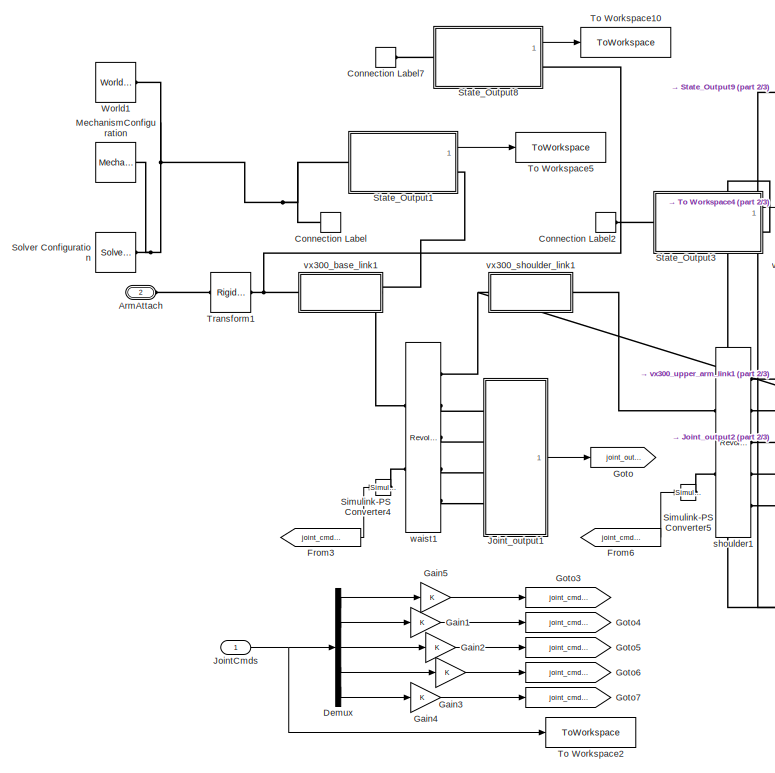
[diagram: root canvas - part 1/3, left side, full height]
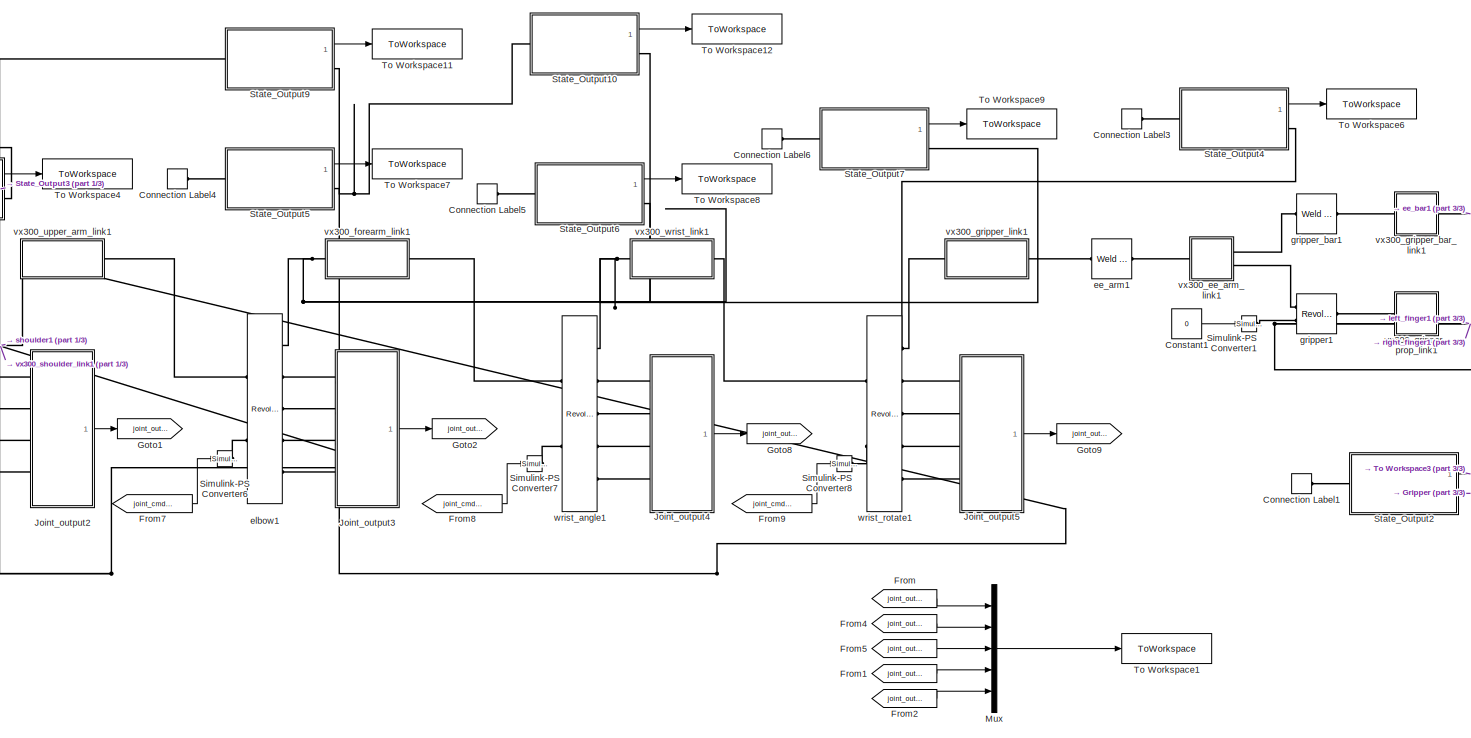
[diagram: root canvas - part 2/3, center side, full height]
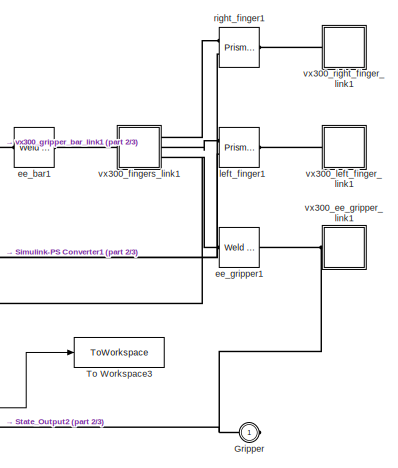
[diagram: root canvas - part 3/3, middle right region]
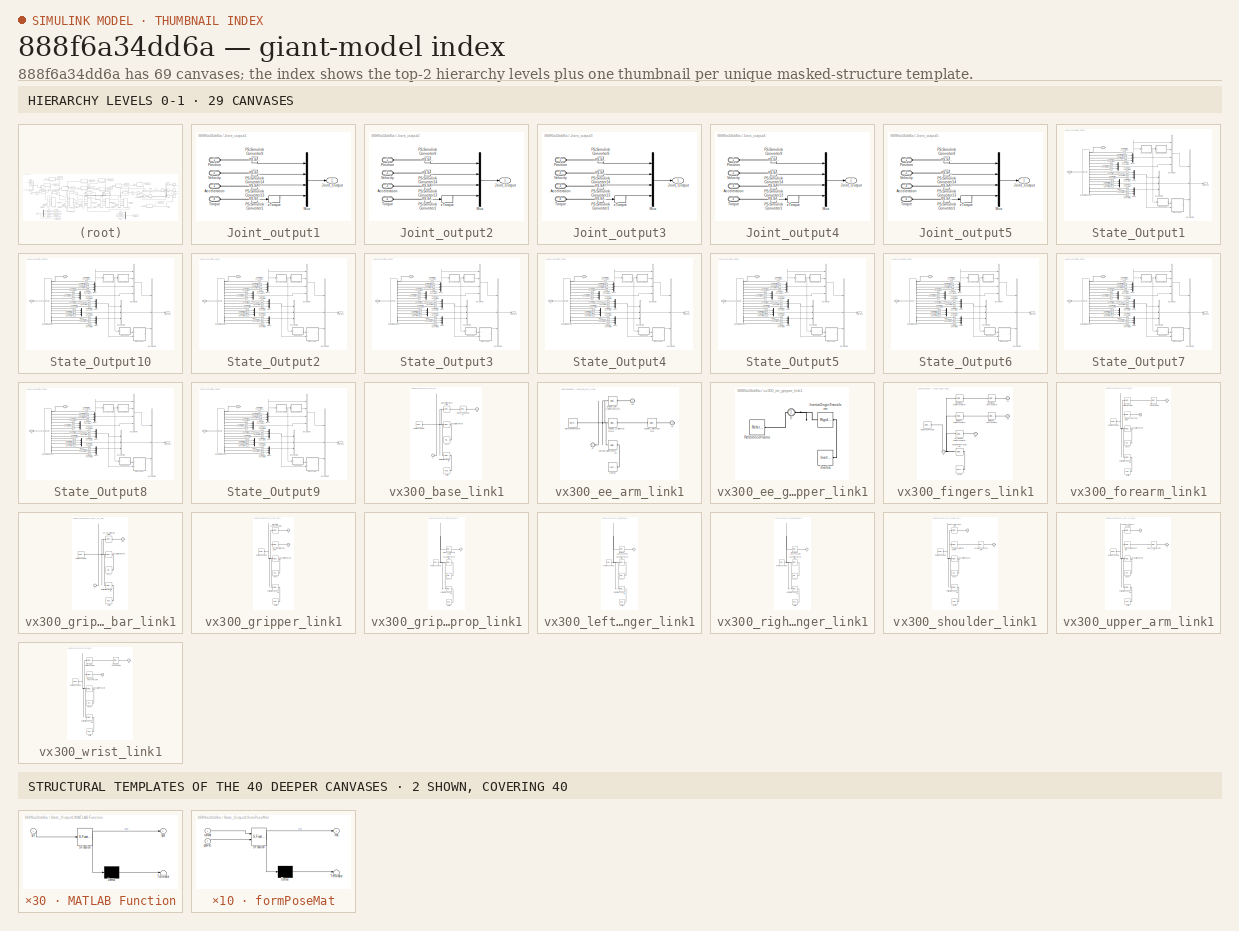
[diagram: thumbnail index - top-2 hierarchy levels (29 canvases) + 2 structural-template representatives of the remaining 40 canvases]
MODEL slx_888f6a34dd6a
KIND model
CONFIG AbsTol = auto
CONFIG EnableMultiTasking = off
CONFIG FixedStep = auto
CONFIG MaxStep = auto
CONFIG MinStep = auto
CONFIG RelTol = 1e-3
CONFIG SampleTimeConstraint = Unconstrained
CONFIG SolverName = VariableStepAuto
CONFIG StartTime = 0.0
CONFIG StopTime = 10.0
BLOCK [PMIOPort] ArmAttach
  Port = 2
  Side = Left
BLOCK [ConnectionLabel] Connection Label
  Label = World
  Ports = [0, 0, 0, 0, 0, 1]
BLOCK [ConnectionLabel] Connection Label1
  Label = World
  Ports = [0, 0, 0, 0, 0, 1]
BLOCK [ConnectionLabel] Connection Label2
  Label = World
  Ports = [0, 0, 0, 0, 0, 1]
BLOCK [ConnectionLabel] Connection Label3
  Label = World
  Ports = [0, 0, 0, 0, 0, 1]
BLOCK [ConnectionLabel] Connection Label4
  Label = World
  Ports = [0, 0, 0, 0, 0, 1]
BLOCK [ConnectionLabel] Connection Label5
  Label = World
  Ports = [0, 0, 0, 0, 0, 1]
BLOCK [ConnectionLabel] Connection Label6
  Label = World
  Ports = [0, 0, 0, 0, 0, 1]
BLOCK [ConnectionLabel] Connection Label7
  Label = World
  Ports = [0, 0, 0, 0, 0, 1]
BLOCK [Constant] Constant1
  Value = 0
BLOCK [Demux] Demux
  Outputs = 5
  Ports = [1, 5]
BLOCK [From] From
  GotoTag = joint_out_1
BLOCK [From] From1
  GotoTag = joint_out_4
BLOCK [From] From2
  GotoTag = joint_out_5
BLOCK [From] From3
  GotoTag = joint_cmd_1
BLOCK [From] From4
  GotoTag = joint_out_2
BLOCK [From] From5
  GotoTag = joint_out_3
BLOCK [From] From6
  GotoTag = joint_cmd_2
BLOCK [From] From7
  GotoTag = joint_cmd_3
BLOCK [From] From8
  GotoTag = joint_cmd_4
BLOCK [From] From9
  GotoTag = joint_cmd_5
BLOCK [Gain] Gain1
BLOCK [Gain] Gain2
BLOCK [Gain] Gain3
BLOCK [Gain] Gain4
BLOCK [Gain] Gain5
BLOCK [Goto] Goto
  GotoTag = joint_out_1
BLOCK [Goto] Goto1
  GotoTag = joint_out_2
BLOCK [Goto] Goto2
  GotoTag = joint_out_3
BLOCK [Goto] Goto3
  GotoTag = joint_cmd_1
BLOCK [Goto] Goto4
  GotoTag = joint_cmd_2
BLOCK [Goto] Goto5
  GotoTag = joint_cmd_3
BLOCK [Goto] Goto6
  GotoTag = joint_cmd_4
BLOCK [Goto] Goto7
  GotoTag = joint_cmd_5
BLOCK [Goto] Goto8
  GotoTag = joint_out_4
BLOCK [Goto] Goto9
  GotoTag = joint_out_5
BLOCK [PMIOPort] Gripper
  Side = Right
BLOCK [Inport] JointCmds
BLOCK [SubSystem] Joint_output1
  Ports = [0, 1, 0, 0, 0, 4]
  RequestExecContextInheritance = off
BLOCK [PMIOPort] Joint_output1/Acceleration
  Port = 3
  Side = Left
BLOCK [Outport] Joint_output1/Joint_Output
BLOCK [Mux] Joint_output1/Mux
  DisplayOption = bar
  Ports = [4, 1]
BLOCK [Reference] Joint_output1/PS-Simulink Converter1  REF=nesl_utility/PS-Simulink
Converter
  Ports = [0, 1, 0, 0, 0, 1]
  SourceBlock = nesl_utility/PS-Simulink\nConverter
  SourceProductBaseCode = SS,PW,VE
  SourceType = PS-Simulink\nConverter
BLOCK [Reference] Joint_output1/PS-Simulink Converter13  REF=nesl_utility/PS-Simulink
Converter
  Ports = [0, 1, 0, 0, 0, 1]
  SourceBlock = nesl_utility/PS-Simulink\nConverter
  SourceProductBaseCode = SS,PW,VE
  SourceType = PS-Simulink\nConverter
BLOCK [Reference] Joint_output1/PS-Simulink Converter14  REF=nesl_utility/PS-Simulink
Converter
  Ports = [0, 1, 0, 0, 0, 1]
  SourceBlock = nesl_utility/PS-Simulink\nConverter
  SourceProductBaseCode = SS,PW,VE
  SourceType = PS-Simulink\nConverter
BLOCK [Reference] Joint_output1/PS-Simulink Converter9  REF=nesl_utility/PS-Simulink
Converter
  Ports = [0, 1, 0, 0, 0, 1]
  SourceBlock = nesl_utility/PS-Simulink\nConverter
  SourceProductBaseCode = SS,PW,VE
  SourceType = PS-Simulink\nConverter
BLOCK [PMIOPort] Joint_output1/Position
  Side = Left
BLOCK [PMIOPort] Joint_output1/Torque
  Port = 4
  Side = Left
BLOCK [PMIOPort] Joint_output1/Velocity
  Port = 2
  Side = Left
BLOCK [Selector] Joint_output1/zTorque
  IndexOptions = Index vector (dialog)
  Indices = 3
  InputPortWidth = 3
  OutputSizes = 1
  Ports = [1, 1]
BLOCK [SubSystem] Joint_output2
  Ports = [0, 1, 0, 0, 0, 4]
  RequestExecContextInheritance = off
BLOCK [PMIOPort] Joint_output2/Acceleration
  Port = 3
  Side = Left
BLOCK [Outport] Joint_output2/Joint_Output
BLOCK [Mux] Joint_output2/Mux
  DisplayOption = bar
  Ports = [4, 1]
BLOCK [Reference] Joint_output2/PS-Simulink Converter1  REF=nesl_utility/PS-Simulink
Converter
  Ports = [0, 1, 0, 0, 0, 1]
  SourceBlock = nesl_utility/PS-Simulink\nConverter
  SourceProductBaseCode = SS,PW,VE
  SourceType = PS-Simulink\nConverter
BLOCK [Reference] Joint_output2/PS-Simulink Converter13  REF=nesl_utility/PS-Simulink
Converter
  Ports = [0, 1, 0, 0, 0, 1]
  SourceBlock = nesl_utility/PS-Simulink\nConverter
  SourceProductBaseCode = SS,PW,VE
  SourceType = PS-Simulink\nConverter
BLOCK [Reference] Joint_output2/PS-Simulink Converter14  REF=nesl_utility/PS-Simulink
Converter
  Ports = [0, 1, 0, 0, 0, 1]
  SourceBlock = nesl_utility/PS-Simulink\nConverter
  SourceProductBaseCode = SS,PW,VE
  SourceType = PS-Simulink\nConverter
BLOCK [Reference] Joint_output2/PS-Simulink Converter9  REF=nesl_utility/PS-Simulink
Converter
  Ports = [0, 1, 0, 0, 0, 1]
  SourceBlock = nesl_utility/PS-Simulink\nConverter
  SourceProductBaseCode = SS,PW,VE
  SourceType = PS-Simulink\nConverter
BLOCK [PMIOPort] Joint_output2/Position
  Side = Left
BLOCK [PMIOPort] Joint_output2/Torque
  Port = 4
  Side = Left
BLOCK [PMIOPort] Joint_output2/Velocity
  Port = 2
  Side = Left
BLOCK [Selector] Joint_output2/zTorque
  IndexOptions = Index vector (dialog)
  Indices = 3
  InputPortWidth = 3
  OutputSizes = 1
  Ports = [1, 1]
BLOCK [SubSystem] Joint_output3
  Ports = [0, 1, 0, 0, 0, 4]
  RequestExecContextInheritance = off
BLOCK [PMIOPort] Joint_output3/Acceleration
  Port = 3
  Side = Left
BLOCK [Outport] Joint_output3/Joint_Output
BLOCK [Mux] Joint_output3/Mux
  DisplayOption = bar
  Ports = [4, 1]
BLOCK [Reference] Joint_output3/PS-Simulink Converter1  REF=nesl_utility/PS-Simulink
Converter
  Ports = [0, 1, 0, 0, 0, 1]
  SourceBlock = nesl_utility/PS-Simulink\nConverter
  SourceProductBaseCode = SS,PW,VE
  SourceType = PS-Simulink\nConverter
BLOCK [Reference] Joint_output3/PS-Simulink Converter13  REF=nesl_utility/PS-Simulink
Converter
  Ports = [0, 1, 0, 0, 0, 1]
  SourceBlock = nesl_utility/PS-Simulink\nConverter
  SourceProductBaseCode = SS,PW,VE
  SourceType = PS-Simulink\nConverter
BLOCK [Reference] Joint_output3/PS-Simulink Converter14  REF=nesl_utility/PS-Simulink
Converter
  Ports = [0, 1, 0, 0, 0, 1]
  SourceBlock = nesl_utility/PS-Simulink\nConverter
  SourceProductBaseCode = SS,PW,VE
  SourceType = PS-Simulink\nConverter
BLOCK [Reference] Joint_output3/PS-Simulink Converter9  REF=nesl_utility/PS-Simulink
Converter
  Ports = [0, 1, 0, 0, 0, 1]
  SourceBlock = nesl_utility/PS-Simulink\nConverter
  SourceProductBaseCode = SS,PW,VE
  SourceType = PS-Simulink\nConverter
BLOCK [PMIOPort] Joint_output3/Position
  Side = Left
BLOCK [PMIOPort] Joint_output3/Torque
  Port = 4
  Side = Left
BLOCK [PMIOPort] Joint_output3/Velocity
  Port = 2
  Side = Left
BLOCK [Selector] Joint_output3/zTorque
  IndexOptions = Index vector (dialog)
  Indices = 3
  InputPortWidth = 3
  OutputSizes = 1
  Ports = [1, 1]
BLOCK [SubSystem] Joint_output4
  Ports = [0, 1, 0, 0, 0, 4]
  RequestExecContextInheritance = off
BLOCK [PMIOPort] Joint_output4/Acceleration
  Port = 3
  Side = Left
BLOCK [Outport] Joint_output4/Joint_Output
BLOCK [Mux] Joint_output4/Mux
  DisplayOption = bar
  Ports = [4, 1]
BLOCK [Reference] Joint_output4/PS-Simulink Converter1  REF=nesl_utility/PS-Simulink
Converter
  Ports = [0, 1, 0, 0, 0, 1]
  SourceBlock = nesl_utility/PS-Simulink\nConverter
  SourceProductBaseCode = SS,PW,VE
  SourceType = PS-Simulink\nConverter
BLOCK [Reference] Joint_output4/PS-Simulink Converter13  REF=nesl_utility/PS-Simulink
Converter
  Ports = [0, 1, 0, 0, 0, 1]
  SourceBlock = nesl_utility/PS-Simulink\nConverter
  SourceProductBaseCode = SS,PW,VE
  SourceType = PS-Simulink\nConverter
BLOCK [Reference] Joint_output4/PS-Simulink Converter14  REF=nesl_utility/PS-Simulink
Converter
  Ports = [0, 1, 0, 0, 0, 1]
  SourceBlock = nesl_utility/PS-Simulink\nConverter
  SourceProductBaseCode = SS,PW,VE
  SourceType = PS-Simulink\nConverter
BLOCK [Reference] Joint_output4/PS-Simulink Converter9  REF=nesl_utility/PS-Simulink
Converter
  Ports = [0, 1, 0, 0, 0, 1]
  SourceBlock = nesl_utility/PS-Simulink\nConverter
  SourceProductBaseCode = SS,PW,VE
  SourceType = PS-Simulink\nConverter
BLOCK [PMIOPort] Joint_output4/Position
  Side = Left
BLOCK [PMIOPort] Joint_output4/Torque
  Port = 4
  Side = Left
BLOCK [PMIOPort] Joint_output4/Velocity
  Port = 2
  Side = Left
BLOCK [Selector] Joint_output4/zTorque
  IndexOptions = Index vector (dialog)
  Indices = 3
  InputPortWidth = 3
  OutputSizes = 1
  Ports = [1, 1]
BLOCK [SubSystem] Joint_output5
  Ports = [0, 1, 0, 0, 0, 4]
  RequestExecContextInheritance = off
BLOCK [PMIOPort] Joint_output5/Acceleration
  Port = 3
  Side = Left
BLOCK [Outport] Joint_output5/Joint_Output
BLOCK [Mux] Joint_output5/Mux
  DisplayOption = bar
  Ports = [4, 1]
BLOCK [Reference] Joint_output5/PS-Simulink Converter1  REF=nesl_utility/PS-Simulink
Converter
  Ports = [0, 1, 0, 0, 0, 1]
  SourceBlock = nesl_utility/PS-Simulink\nConverter
  SourceProductBaseCode = SS,PW,VE
  SourceType = PS-Simulink\nConverter
BLOCK [Reference] Joint_output5/PS-Simulink Converter13  REF=nesl_utility/PS-Simulink
Converter
  Ports = [0, 1, 0, 0, 0, 1]
  SourceBlock = nesl_utility/PS-Simulink\nConverter
  SourceProductBaseCode = SS,PW,VE
  SourceType = PS-Simulink\nConverter
BLOCK [Reference] Joint_output5/PS-Simulink Converter14  REF=nesl_utility/PS-Simulink
Converter
  Ports = [0, 1, 0, 0, 0, 1]
  SourceBlock = nesl_utility/PS-Simulink\nConverter
  SourceProductBaseCode = SS,PW,VE
  SourceType = PS-Simulink\nConverter
BLOCK [Reference] Joint_output5/PS-Simulink Converter9  REF=nesl_utility/PS-Simulink
Converter
  Ports = [0, 1, 0, 0, 0, 1]
  SourceBlock = nesl_utility/PS-Simulink\nConverter
  SourceProductBaseCode = SS,PW,VE
  SourceType = PS-Simulink\nConverter
BLOCK [PMIOPort] Joint_output5/Position
  Side = Left
BLOCK [PMIOPort] Joint_output5/Torque
  Port = 4
  Side = Left
BLOCK [PMIOPort] Joint_output5/Velocity
  Port = 2
  Side = Left
BLOCK [Selector] Joint_output5/zTorque
  IndexOptions = Index vector (dialog)
  Indices = 3
  InputPortWidth = 3
  OutputSizes = 1
  Ports = [1, 1]
BLOCK [Reference] MechanismConfiguration  REF=sm_lib/Utilities/Mechanism
Configuration
  Ports = [0, 0, 0, 0, 0, 0, 1]
  SourceBlock = sm_lib/Utilities/Mechanism\nConfiguration
  SourceProductBaseCode = MS
  SourceType = Mechanism\nConfiguration
BLOCK [Mux] Mux
  DisplayOption = bar
  Inputs = 5
  Ports = [5, 1]
BLOCK [Reference] Simulink-PS Converter1  REF=nesl_utility/Simulink-PS
Converter
  Ports = [1, 0, 0, 0, 0, 0, 1]
  SourceBlock = nesl_utility/Simulink-PS\nConverter
  SourceProductBaseCode = SS,PW,VE
  SourceType = Simulink-PS\nConverter
BLOCK [Reference] Simulink-PS Converter4  REF=nesl_utility/Simulink-PS
Converter
  Ports = [1, 0, 0, 0, 0, 0, 1]
  SourceBlock = nesl_utility/Simulink-PS\nConverter
  SourceProductBaseCode = SS,PW,VE
  SourceType = Simulink-PS\nConverter
BLOCK [Reference] Simulink-PS Converter5  REF=nesl_utility/Simulink-PS
Converter
  Ports = [1, 0, 0, 0, 0, 0, 1]
  SourceBlock = nesl_utility/Simulink-PS\nConverter
  SourceProductBaseCode = SS,PW,VE
  SourceType = Simulink-PS\nConverter
BLOCK [Reference] Simulink-PS Converter6  REF=nesl_utility/Simulink-PS
Converter
  Ports = [1, 0, 0, 0, 0, 0, 1]
  SourceBlock = nesl_utility/Simulink-PS\nConverter
  SourceProductBaseCode = SS,PW,VE
  SourceType = Simulink-PS\nConverter
BLOCK [Reference] Simulink-PS Converter7  REF=nesl_utility/Simulink-PS
Converter
  Ports = [1, 0, 0, 0, 0, 0, 1]
  SourceBlock = nesl_utility/Simulink-PS\nConverter
  SourceProductBaseCode = SS,PW,VE
  SourceType = Simulink-PS\nConverter
BLOCK [Reference] Simulink-PS Converter8  REF=nesl_utility/Simulink-PS
Converter
  Ports = [1, 0, 0, 0, 0, 0, 1]
  SourceBlock = nesl_utility/Simulink-PS\nConverter
  SourceProductBaseCode = SS,PW,VE
  SourceType = Simulink-PS\nConverter
BLOCK [Reference] Solver Configuration  REF=nesl_utility/Solver
Configuration
  Ports = [0, 0, 0, 0, 0, 0, 1]
  SourceBlock = nesl_utility/Solver\nConfiguration
  SourceProductBaseCode = SS,PW,VE
  SourceType = Solver\nConfiguration
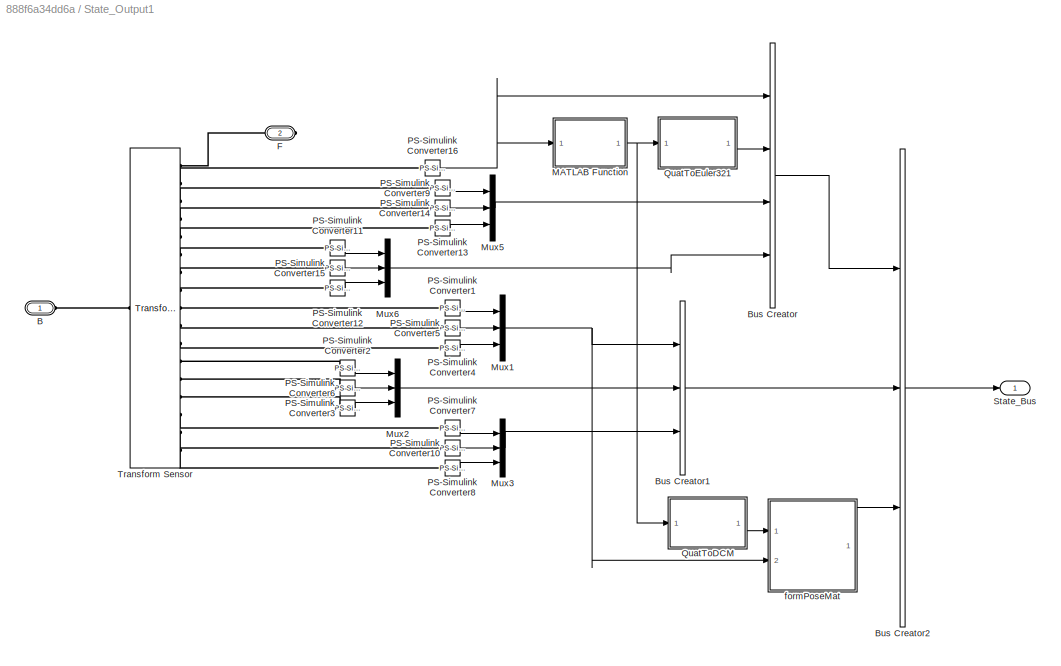
BLOCK [SubSystem] State_Output1
  Ports = [0, 1, 0, 0, 0, 1, 1]
  RequestExecContextInheritance = off
BLOCK [PMIOPort] State_Output1/B
  Side = Left
BLOCK [BusCreator] State_Output1/Bus Creator
  DisplayOption = bar
  InheritFromInputs = off
  Inputs = 4
  OutDataTypeStr = Bus: RotStateBus
  Ports = [4, 1]
BLOCK [BusCreator] State_Output1/Bus Creator1
  DisplayOption = bar
  InheritFromInputs = off
  Inputs = 3
  OutDataTypeStr = Bus: TransStateBus
  Ports = [3, 1]
BLOCK [BusCreator] State_Output1/Bus Creator2
  DisplayOption = bar
  InheritFromInputs = off
  Inputs = 3
  OutDataTypeStr = Bus: StateBus
  Ports = [3, 1]
BLOCK [PMIOPort] State_Output1/F
  Port = 2
  Side = Right
BLOCK [SubSystem] State_Output1/MATLAB Function
  ErrorFcn = Stateflow.Translate.translate
  PermitHierarchicalResolution = ExplicitOnly
  Ports = [1, 1]
  RequestExecContextInheritance = off
  SFBlockType = MATLAB Function
  TreatAsAtomicUnit = on
BLOCK [Demux] State_Output1/MATLAB Function/ Demux 
  Outputs = 1
  Ports = [1, 1]
BLOCK [S-Function] State_Output1/MATLAB Function/ SFunction 
  EnableBusSupport = on
  FunctionName = sf_sfun
  PortCounts = [1 2]
  Ports = [1, 2]
  SFcnIsStateOwnerBlock = off
  SFunctionDeploymentMode = off
  Tag = Stateflow S-Function 39
BLOCK [Terminator] State_Output1/MATLAB Function/ Terminator 
BLOCK [Inport] State_Output1/MATLAB Function/qin
BLOCK [Outport] State_Output1/MATLAB Function/qout
BLOCK [Mux] State_Output1/Mux1
  DisplayOption = bar
  Inputs = 3
  Ports = [3, 1]
BLOCK [Mux] State_Output1/Mux2
  DisplayOption = bar
  Inputs = 3
  Ports = [3, 1]
BLOCK [Mux] State_Output1/Mux3
  DisplayOption = bar
  Inputs = 3
  Ports = [3, 1]
BLOCK [Mux] State_Output1/Mux5
  DisplayOption = bar
  Inputs = 3
  Ports = [3, 1]
BLOCK [Mux] State_Output1/Mux6
  DisplayOption = bar
  Inputs = 3
  Ports = [3, 1]
BLOCK [Reference] State_Output1/PS-Simulink Converter1  REF=nesl_utility/PS-Simulink
Converter
  Ports = [0, 1, 0, 0, 0, 1]
  SourceBlock = nesl_utility/PS-Simulink\nConverter
  SourceProductBaseCode = SS,PW,VE
  SourceType = PS-Simulink\nConverter
BLOCK [Reference] State_Output1/PS-Simulink Converter10  REF=nesl_utility/PS-Simulink
Converter
  Ports = [0, 1, 0, 0, 0, 1]
  SourceBlock = nesl_utility/PS-Simulink\nConverter
  SourceProductBaseCode = SS,PW,VE
  SourceType = PS-Simulink\nConverter
BLOCK [Reference] State_Output1/PS-Simulink Converter11  REF=nesl_utility/PS-Simulink
Converter
  Ports = [0, 1, 0, 0, 0, 1]
  SourceBlock = nesl_utility/PS-Simulink\nConverter
  SourceProductBaseCode = SS,PW,VE
  SourceType = PS-Simulink\nConverter
BLOCK [Reference] State_Output1/PS-Simulink Converter12  REF=nesl_utility/PS-Simulink
Converter
  Ports = [0, 1, 0, 0, 0, 1]
  SourceBlock = nesl_utility/PS-Simulink\nConverter
  SourceProductBaseCode = SS,PW,VE
  SourceType = PS-Simulink\nConverter
BLOCK [Reference] State_Output1/PS-Simulink Converter13  REF=nesl_utility/PS-Simulink
Converter
  Ports = [0, 1, 0, 0, 0, 1]
  SourceBlock = nesl_utility/PS-Simulink\nConverter
  SourceProductBaseCode = SS,PW,VE
  SourceType = PS-Simulink\nConverter
BLOCK [Reference] State_Output1/PS-Simulink Converter14  REF=nesl_utility/PS-Simulink
Converter
  Ports = [0, 1, 0, 0, 0, 1]
  SourceBlock = nesl_utility/PS-Simulink\nConverter
  SourceProductBaseCode = SS,PW,VE
  SourceType = PS-Simulink\nConverter
BLOCK [Reference] State_Output1/PS-Simulink Converter15  REF=nesl_utility/PS-Simulink
Converter
  Ports = [0, 1, 0, 0, 0, 1]
  SourceBlock = nesl_utility/PS-Simulink\nConverter
  SourceProductBaseCode = SS,PW,VE
  SourceType = PS-Simulink\nConverter
BLOCK [Reference] State_Output1/PS-Simulink Converter16  REF=nesl_utility/PS-Simulink
Converter
  Ports = [0, 1, 0, 0, 0, 1]
  SourceBlock = nesl_utility/PS-Simulink\nConverter
  SourceProductBaseCode = SS,PW,VE
  SourceType = PS-Simulink\nConverter
BLOCK [Reference] State_Output1/PS-Simulink Converter2  REF=nesl_utility/PS-Simulink
Converter
  Ports = [0, 1, 0, 0, 0, 1]
  SourceBlock = nesl_utility/PS-Simulink\nConverter
  SourceProductBaseCode = SS,PW,VE
  SourceType = PS-Simulink\nConverter
BLOCK [Reference] State_Output1/PS-Simulink Converter3  REF=nesl_utility/PS-Simulink
Converter
  Ports = [0, 1, 0, 0, 0, 1]
  SourceBlock = nesl_utility/PS-Simulink\nConverter
  SourceProductBaseCode = SS,PW,VE
  SourceType = PS-Simulink\nConverter
BLOCK [Reference] State_Output1/PS-Simulink Converter4  REF=nesl_utility/PS-Simulink
Converter
  Ports = [0, 1, 0, 0, 0, 1]
  SourceBlock = nesl_utility/PS-Simulink\nConverter
  SourceProductBaseCode = SS,PW,VE
  SourceType = PS-Simulink\nConverter
BLOCK [Reference] State_Output1/PS-Simulink Converter5  REF=nesl_utility/PS-Simulink
Converter
  Ports = [0, 1, 0, 0, 0, 1]
  SourceBlock = nesl_utility/PS-Simulink\nConverter
  SourceProductBaseCode = SS,PW,VE
  SourceType = PS-Simulink\nConverter
BLOCK [Reference] State_Output1/PS-Simulink Converter6  REF=nesl_utility/PS-Simulink
Converter
  Ports = [0, 1, 0, 0, 0, 1]
  SourceBlock = nesl_utility/PS-Simulink\nConverter
  SourceProductBaseCode = SS,PW,VE
  SourceType = PS-Simulink\nConverter
BLOCK [Reference] State_Output1/PS-Simulink Converter7  REF=nesl_utility/PS-Simulink
Converter
  Ports = [0, 1, 0, 0, 0, 1]
  SourceBlock = nesl_utility/PS-Simulink\nConverter
  SourceProductBaseCode = SS,PW,VE
  SourceType = PS-Simulink\nConverter
BLOCK [Reference] State_Output1/PS-Simulink Converter8  REF=nesl_utility/PS-Simulink
Converter
  Ports = [0, 1, 0, 0, 0, 1]
  SourceBlock = nesl_utility/PS-Simulink\nConverter
  SourceProductBaseCode = SS,PW,VE
  SourceType = PS-Simulink\nConverter
BLOCK [Reference] State_Output1/PS-Simulink Converter9  REF=nesl_utility/PS-Simulink
Converter
  Ports = [0, 1, 0, 0, 0, 1]
  SourceBlock = nesl_utility/PS-Simulink\nConverter
  SourceProductBaseCode = SS,PW,VE
  SourceType = PS-Simulink\nConverter
BLOCK [SubSystem] State_Output1/QuatToDCM
  ErrorFcn = Stateflow.Translate.translate
  PermitHierarchicalResolution = ExplicitOnly
  Ports = [1, 1]
  RequestExecContextInheritance = off
  SFBlockType = MATLAB Function
  TreatAsAtomicUnit = on
BLOCK [Demux] State_Output1/QuatToDCM/ Demux 
  Outputs = 1
  Ports = [1, 1]
BLOCK [S-Function] State_Output1/QuatToDCM/ SFunction 
  EnableBusSupport = on
  FunctionName = sf_sfun
  PortCounts = [1 2]
  Ports = [1, 2]
  SFcnIsStateOwnerBlock = off
  SFunctionDeploymentMode = off
  Tag = Stateflow S-Function 41
BLOCK [Terminator] State_Output1/QuatToDCM/ Terminator 
BLOCK [Outport] State_Output1/QuatToDCM/mat
BLOCK [Inport] State_Output1/QuatToDCM/q
BLOCK [SubSystem] State_Output1/QuatToEuler321
  ErrorFcn = Stateflow.Translate.translate
  PermitHierarchicalResolution = ExplicitOnly
  Ports = [1, 1]
  RequestExecContextInheritance = off
  SFBlockType = MATLAB Function
  TreatAsAtomicUnit = on
BLOCK [Demux] State_Output1/QuatToEuler321/ Demux 
  Outputs = 1
  Ports = [1, 1]
BLOCK [S-Function] State_Output1/QuatToEuler321/ SFunction 
  EnableBusSupport = on
  FunctionName = sf_sfun
  PortCounts = [1 2]
  Ports = [1, 2]
  SFcnIsStateOwnerBlock = off
  SFunctionDeploymentMode = off
  Tag = Stateflow S-Function 43
BLOCK [Terminator] State_Output1/QuatToEuler321/ Terminator 
BLOCK [Outport] State_Output1/QuatToEuler321/euler
BLOCK [Inport] State_Output1/QuatToEuler321/q
BLOCK [Outport] State_Output1/State_Bus
BLOCK [Reference] State_Output1/Transform Sensor  REF=sm_lib/Frames and
Transforms/Transform
Sensor
  Ports = [0, 0, 0, 0, 0, 1, 17]
  SourceBlock = sm_lib/Frames and\nTransforms/Transform\nSensor
  SourceProductBaseCode = MS
  SourceType = Transform\nSensor
BLOCK [SubSystem] State_Output1/formPoseMat
  ErrorFcn = Stateflow.Translate.translate
  PermitHierarchicalResolution = ExplicitOnly
  Ports = [2, 1]
  RequestExecContextInheritance = off
  SFBlockType = MATLAB Function
  TreatAsAtomicUnit = on
BLOCK [Demux] State_Output1/formPoseMat/ Demux 
  Outputs = 1
  Ports = [1, 1]
BLOCK [S-Function] State_Output1/formPoseMat/ SFunction 
  EnableBusSupport = on
  FunctionName = sf_sfun
  PortCounts = [2 2]
  Ports = [2, 2]
  SFcnIsStateOwnerBlock = off
  SFunctionDeploymentMode = off
  Tag = Stateflow S-Function 44
BLOCK [Terminator] State_Output1/formPoseMat/ Terminator 
BLOCK [Outport] State_Output1/formPoseMat/mat
BLOCK [Inport] State_Output1/formPoseMat/posVec
  Port = 2
BLOCK [Inport] State_Output1/formPoseMat/rotMat
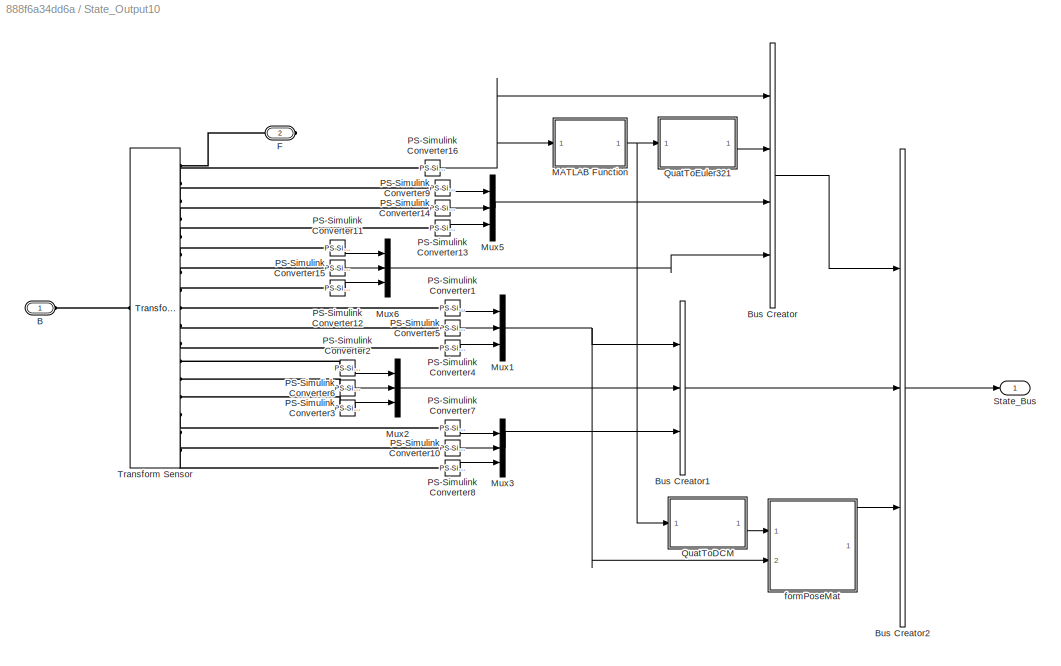
BLOCK [SubSystem] State_Output10
  Ports = [0, 1, 0, 0, 0, 1, 1]
  RequestExecContextInheritance = off
BLOCK [PMIOPort] State_Output10/B
  Side = Left
BLOCK [BusCreator] State_Output10/Bus Creator
  DisplayOption = bar
  InheritFromInputs = off
  Inputs = 4
  OutDataTypeStr = Bus: RotStateBus
  Ports = [4, 1]
BLOCK [BusCreator] State_Output10/Bus Creator1
  DisplayOption = bar
  InheritFromInputs = off
  Inputs = 3
  OutDataTypeStr = Bus: TransStateBus
  Ports = [3, 1]
BLOCK [BusCreator] State_Output10/Bus Creator2
  DisplayOption = bar
  InheritFromInputs = off
  Inputs = 3
  OutDataTypeStr = Bus: StateBus
  Ports = [3, 1]
BLOCK [PMIOPort] State_Output10/F
  Port = 2
  Side = Right
BLOCK [SubSystem] State_Output10/MATLAB Function
  ErrorFcn = Stateflow.Translate.translate
  PermitHierarchicalResolution = ExplicitOnly
  Ports = [1, 1]
  RequestExecContextInheritance = off
  SFBlockType = MATLAB Function
  TreatAsAtomicUnit = on
BLOCK [Demux] State_Output10/MATLAB Function/ Demux 
  Outputs = 1
  Ports = [1, 1]
BLOCK [S-Function] State_Output10/MATLAB Function/ SFunction 
  EnableBusSupport = on
  FunctionName = sf_sfun
  PortCounts = [1 2]
  Ports = [1, 2]
  SFcnIsStateOwnerBlock = off
  SFunctionDeploymentMode = off
  Tag = Stateflow S-Function 84
BLOCK [Terminator] State_Output10/MATLAB Function/ Terminator 
BLOCK [Inport] State_Output10/MATLAB Function/qin
BLOCK [Outport] State_Output10/MATLAB Function/qout
BLOCK [Mux] State_Output10/Mux1
  DisplayOption = bar
  Inputs = 3
  Ports = [3, 1]
BLOCK [Mux] State_Output10/Mux2
  DisplayOption = bar
  Inputs = 3
  Ports = [3, 1]
BLOCK [Mux] State_Output10/Mux3
  DisplayOption = bar
  Inputs = 3
  Ports = [3, 1]
BLOCK [Mux] State_Output10/Mux5
  DisplayOption = bar
  Inputs = 3
  Ports = [3, 1]
BLOCK [Mux] State_Output10/Mux6
  DisplayOption = bar
  Inputs = 3
  Ports = [3, 1]
BLOCK [Reference] State_Output10/PS-Simulink Converter1  REF=nesl_utility/PS-Simulink
Converter
  Ports = [0, 1, 0, 0, 0, 1]
  SourceBlock = nesl_utility/PS-Simulink\nConverter
  SourceProductBaseCode = SS,PW,VE
  SourceType = PS-Simulink\nConverter
BLOCK [Reference] State_Output10/PS-Simulink Converter10  REF=nesl_utility/PS-Simulink
Converter
  Ports = [0, 1, 0, 0, 0, 1]
  SourceBlock = nesl_utility/PS-Simulink\nConverter
  SourceProductBaseCode = SS,PW,VE
  SourceType = PS-Simulink\nConverter
BLOCK [Reference] State_Output10/PS-Simulink Converter11  REF=nesl_utility/PS-Simulink
Converter
  Ports = [0, 1, 0, 0, 0, 1]
  SourceBlock = nesl_utility/PS-Simulink\nConverter
  SourceProductBaseCode = SS,PW,VE
  SourceType = PS-Simulink\nConverter
BLOCK [Reference] State_Output10/PS-Simulink Converter12  REF=nesl_utility/PS-Simulink
Converter
  Ports = [0, 1, 0, 0, 0, 1]
  SourceBlock = nesl_utility/PS-Simulink\nConverter
  SourceProductBaseCode = SS,PW,VE
  SourceType = PS-Simulink\nConverter
BLOCK [Reference] State_Output10/PS-Simulink Converter13  REF=nesl_utility/PS-Simulink
Converter
  Ports = [0, 1, 0, 0, 0, 1]
  SourceBlock = nesl_utility/PS-Simulink\nConverter
  SourceProductBaseCode = SS,PW,VE
  SourceType = PS-Simulink\nConverter
BLOCK [Reference] State_Output10/PS-Simulink Converter14  REF=nesl_utility/PS-Simulink
Converter
  Ports = [0, 1, 0, 0, 0, 1]
  SourceBlock = nesl_utility/PS-Simulink\nConverter
  SourceProductBaseCode = SS,PW,VE
  SourceType = PS-Simulink\nConverter
BLOCK [Reference] State_Output10/PS-Simulink Converter15  REF=nesl_utility/PS-Simulink
Converter
  Ports = [0, 1, 0, 0, 0, 1]
  SourceBlock = nesl_utility/PS-Simulink\nConverter
  SourceProductBaseCode = SS,PW,VE
  SourceType = PS-Simulink\nConverter
BLOCK [Reference] State_Output10/PS-Simulink Converter16  REF=nesl_utility/PS-Simulink
Converter
  Ports = [0, 1, 0, 0, 0, 1]
  SourceBlock = nesl_utility/PS-Simulink\nConverter
  SourceProductBaseCode = SS,PW,VE
  SourceType = PS-Simulink\nConverter
BLOCK [Reference] State_Output10/PS-Simulink Converter2  REF=nesl_utility/PS-Simulink
Converter
  Ports = [0, 1, 0, 0, 0, 1]
  SourceBlock = nesl_utility/PS-Simulink\nConverter
  SourceProductBaseCode = SS,PW,VE
  SourceType = PS-Simulink\nConverter
BLOCK [Reference] State_Output10/PS-Simulink Converter3  REF=nesl_utility/PS-Simulink
Converter
  Ports = [0, 1, 0, 0, 0, 1]
  SourceBlock = nesl_utility/PS-Simulink\nConverter
  SourceProductBaseCode = SS,PW,VE
  SourceType = PS-Simulink\nConverter
BLOCK [Reference] State_Output10/PS-Simulink Converter4  REF=nesl_utility/PS-Simulink
Converter
  Ports = [0, 1, 0, 0, 0, 1]
  SourceBlock = nesl_utility/PS-Simulink\nConverter
  SourceProductBaseCode = SS,PW,VE
  SourceType = PS-Simulink\nConverter
BLOCK [Reference] State_Output10/PS-Simulink Converter5  REF=nesl_utility/PS-Simulink
Converter
  Ports = [0, 1, 0, 0, 0, 1]
  SourceBlock = nesl_utility/PS-Simulink\nConverter
  SourceProductBaseCode = SS,PW,VE
  SourceType = PS-Simulink\nConverter
BLOCK [Reference] State_Output10/PS-Simulink Converter6  REF=nesl_utility/PS-Simulink
Converter
  Ports = [0, 1, 0, 0, 0, 1]
  SourceBlock = nesl_utility/PS-Simulink\nConverter
  SourceProductBaseCode = SS,PW,VE
  SourceType = PS-Simulink\nConverter
BLOCK [Reference] State_Output10/PS-Simulink Converter7  REF=nesl_utility/PS-Simulink
Converter
  Ports = [0, 1, 0, 0, 0, 1]
  SourceBlock = nesl_utility/PS-Simulink\nConverter
  SourceProductBaseCode = SS,PW,VE
  SourceType = PS-Simulink\nConverter
BLOCK [Reference] State_Output10/PS-Simulink Converter8  REF=nesl_utility/PS-Simulink
Converter
  Ports = [0, 1, 0, 0, 0, 1]
  SourceBlock = nesl_utility/PS-Simulink\nConverter
  SourceProductBaseCode = SS,PW,VE
  SourceType = PS-Simulink\nConverter
BLOCK [Reference] State_Output10/PS-Simulink Converter9  REF=nesl_utility/PS-Simulink
Converter
  Ports = [0, 1, 0, 0, 0, 1]
  SourceBlock = nesl_utility/PS-Simulink\nConverter
  SourceProductBaseCode = SS,PW,VE
  SourceType = PS-Simulink\nConverter
BLOCK [SubSystem] State_Output10/QuatToDCM
  ErrorFcn = Stateflow.Translate.translate
  PermitHierarchicalResolution = ExplicitOnly
  Ports = [1, 1]
  RequestExecContextInheritance = off
  SFBlockType = MATLAB Function
  TreatAsAtomicUnit = on
BLOCK [Demux] State_Output10/QuatToDCM/ Demux 
  Outputs = 1
  Ports = [1, 1]
BLOCK [S-Function] State_Output10/QuatToDCM/ SFunction 
  EnableBusSupport = on
  FunctionName = sf_sfun
  PortCounts = [1 2]
  Ports = [1, 2]
  SFcnIsStateOwnerBlock = off
  SFunctionDeploymentMode = off
  Tag = Stateflow S-Function 85
BLOCK [Terminator] State_Output10/QuatToDCM/ Terminator 
BLOCK [Outport] State_Output10/QuatToDCM/mat
BLOCK [Inport] State_Output10/QuatToDCM/q
BLOCK [SubSystem] State_Output10/QuatToEuler321
  ErrorFcn = Stateflow.Translate.translate
  PermitHierarchicalResolution = ExplicitOnly
  Ports = [1, 1]
  RequestExecContextInheritance = off
  SFBlockType = MATLAB Function
  TreatAsAtomicUnit = on
BLOCK [Demux] State_Output10/QuatToEuler321/ Demux 
  Outputs = 1
  Ports = [1, 1]
BLOCK [S-Function] State_Output10/QuatToEuler321/ SFunction 
  EnableBusSupport = on
  FunctionName = sf_sfun
  PortCounts = [1 2]
  Ports = [1, 2]
  SFcnIsStateOwnerBlock = off
  SFunctionDeploymentMode = off
  Tag = Stateflow S-Function 86
BLOCK [Terminator] State_Output10/QuatToEuler321/ Terminator 
BLOCK [Outport] State_Output10/QuatToEuler321/euler
BLOCK [Inport] State_Output10/QuatToEuler321/q
BLOCK [Outport] State_Output10/State_Bus
BLOCK [Reference] State_Output10/Transform Sensor  REF=sm_lib/Frames and
Transforms/Transform
Sensor
  Ports = [0, 0, 0, 0, 0, 1, 17]
  SourceBlock = sm_lib/Frames and\nTransforms/Transform\nSensor
  SourceProductBaseCode = MS
  SourceType = Transform\nSensor
BLOCK [SubSystem] State_Output10/formPoseMat
  ErrorFcn = Stateflow.Translate.translate
  PermitHierarchicalResolution = ExplicitOnly
  Ports = [2, 1]
  RequestExecContextInheritance = off
  SFBlockType = MATLAB Function
  TreatAsAtomicUnit = on
BLOCK [Demux] State_Output10/formPoseMat/ Demux 
  Outputs = 1
  Ports = [1, 1]
BLOCK [S-Function] State_Output10/formPoseMat/ SFunction 
  EnableBusSupport = on
  FunctionName = sf_sfun
  PortCounts = [2 2]
  Ports = [2, 2]
  SFcnIsStateOwnerBlock = off
  SFunctionDeploymentMode = off
  Tag = Stateflow S-Function 87
BLOCK [Terminator] State_Output10/formPoseMat/ Terminator 
BLOCK [Outport] State_Output10/formPoseMat/mat
BLOCK [Inport] State_Output10/formPoseMat/posVec
  Port = 2
BLOCK [Inport] State_Output10/formPoseMat/rotMat
BLOCK [SubSystem] State_Output2
  Ports = [0, 1, 0, 0, 0, 1, 1]
  RequestExecContextInheritance = off
BLOCK [PMIOPort] State_Output2/B
  Side = Left
BLOCK [BusCreator] State_Output2/Bus Creator
  DisplayOption = bar
  InheritFromInputs = off
  Inputs = 4
  OutDataTypeStr = Bus: RotStateBus
  Ports = [4, 1]
BLOCK [BusCreator] State_Output2/Bus Creator1
  DisplayOption = bar
  InheritFromInputs = off
  Inputs = 3
  OutDataTypeStr = Bus: TransStateBus
  Ports = [3, 1]
BLOCK [BusCreator] State_Output2/Bus Creator2
  DisplayOption = bar
  InheritFromInputs = off
  Inputs = 3
  OutDataTypeStr = Bus: StateBus
  Ports = [3, 1]
BLOCK [PMIOPort] State_Output2/F
  Port = 2
  Side = Right
BLOCK [SubSystem] State_Output2/MATLAB Function
  ErrorFcn = Stateflow.Translate.translate
  PermitHierarchicalResolution = ExplicitOnly
  Ports = [1, 1]
  RequestExecContextInheritance = off
  SFBlockType = MATLAB Function
  TreatAsAtomicUnit = on
BLOCK [Demux] State_Output2/MATLAB Function/ Demux 
  Outputs = 1
  Ports = [1, 1]
BLOCK [S-Function] State_Output2/MATLAB Function/ SFunction 
  EnableBusSupport = on
  FunctionName = sf_sfun
  PortCounts = [1 2]
  Ports = [1, 2]
  SFcnIsStateOwnerBlock = off
  SFunctionDeploymentMode = off
  Tag = Stateflow S-Function 45
BLOCK [Terminator] State_Output2/MATLAB Function/ Terminator 
BLOCK [Inport] State_Output2/MATLAB Function/qin
BLOCK [Outport] State_Output2/MATLAB Function/qout
BLOCK [Mux] State_Output2/Mux1
  DisplayOption = bar
  Inputs = 3
  Ports = [3, 1]
BLOCK [Mux] State_Output2/Mux2
  DisplayOption = bar
  Inputs = 3
  Ports = [3, 1]
BLOCK [Mux] State_Output2/Mux3
  DisplayOption = bar
  Inputs = 3
  Ports = [3, 1]
BLOCK [Mux] State_Output2/Mux5
  DisplayOption = bar
  Inputs = 3
  Ports = [3, 1]
BLOCK [Mux] State_Output2/Mux6
  DisplayOption = bar
  Inputs = 3
  Ports = [3, 1]
BLOCK [Reference] State_Output2/PS-Simulink Converter1  REF=nesl_utility/PS-Simulink
Converter
  Ports = [0, 1, 0, 0, 0, 1]
  SourceBlock = nesl_utility/PS-Simulink\nConverter
  SourceProductBaseCode = SS,PW,VE
  SourceType = PS-Simulink\nConverter
BLOCK [Reference] State_Output2/PS-Simulink Converter10  REF=nesl_utility/PS-Simulink
Converter
  Ports = [0, 1, 0, 0, 0, 1]
  SourceBlock = nesl_utility/PS-Simulink\nConverter
  SourceProductBaseCode = SS,PW,VE
  SourceType = PS-Simulink\nConverter
BLOCK [Reference] State_Output2/PS-Simulink Converter11  REF=nesl_utility/PS-Simulink
Converter
  Ports = [0, 1, 0, 0, 0, 1]
  SourceBlock = nesl_utility/PS-Simulink\nConverter
  SourceProductBaseCode = SS,PW,VE
  SourceType = PS-Simulink\nConverter
BLOCK [Reference] State_Output2/PS-Simulink Converter12  REF=nesl_utility/PS-Simulink
Converter
  Ports = [0, 1, 0, 0, 0, 1]
  SourceBlock = nesl_utility/PS-Simulink\nConverter
  SourceProductBaseCode = SS,PW,VE
  SourceType = PS-Simulink\nConverter
BLOCK [Reference] State_Output2/PS-Simulink Converter13  REF=nesl_utility/PS-Simulink
Converter
  Ports = [0, 1, 0, 0, 0, 1]
  SourceBlock = nesl_utility/PS-Simulink\nConverter
  SourceProductBaseCode = SS,PW,VE
  SourceType = PS-Simulink\nConverter
BLOCK [Reference] State_Output2/PS-Simulink Converter14  REF=nesl_utility/PS-Simulink
Converter
  Ports = [0, 1, 0, 0, 0, 1]
  SourceBlock = nesl_utility/PS-Simulink\nConverter
  SourceProductBaseCode = SS,PW,VE
  SourceType = PS-Simulink\nConverter
BLOCK [Reference] State_Output2/PS-Simulink Converter15  REF=nesl_utility/PS-Simulink
Converter
  Ports = [0, 1, 0, 0, 0, 1]
  SourceBlock = nesl_utility/PS-Simulink\nConverter
  SourceProductBaseCode = SS,PW,VE
  SourceType = PS-Simulink\nConverter
BLOCK [Reference] State_Output2/PS-Simulink Converter16  REF=nesl_utility/PS-Simulink
Converter
  Ports = [0, 1, 0, 0, 0, 1]
  SourceBlock = nesl_utility/PS-Simulink\nConverter
  SourceProductBaseCode = SS,PW,VE
  SourceType = PS-Simulink\nConverter
BLOCK [Reference] State_Output2/PS-Simulink Converter2  REF=nesl_utility/PS-Simulink
Converter
  Ports = [0, 1, 0, 0, 0, 1]
  SourceBlock = nesl_utility/PS-Simulink\nConverter
  SourceProductBaseCode = SS,PW,VE
  SourceType = PS-Simulink\nConverter
BLOCK [Reference] State_Output2/PS-Simulink Converter3  REF=nesl_utility/PS-Simulink
Converter
  Ports = [0, 1, 0, 0, 0, 1]
  SourceBlock = nesl_utility/PS-Simulink\nConverter
  SourceProductBaseCode = SS,PW,VE
  SourceType = PS-Simulink\nConverter
BLOCK [Reference] State_Output2/PS-Simulink Converter4  REF=nesl_utility/PS-Simulink
Converter
  Ports = [0, 1, 0, 0, 0, 1]
  SourceBlock = nesl_utility/PS-Simulink\nConverter
  SourceProductBaseCode = SS,PW,VE
  SourceType = PS-Simulink\nConverter
BLOCK [Reference] State_Output2/PS-Simulink Converter5  REF=nesl_utility/PS-Simulink
Converter
  Ports = [0, 1, 0, 0, 0, 1]
  SourceBlock = nesl_utility/PS-Simulink\nConverter
  SourceProductBaseCode = SS,PW,VE
  SourceType = PS-Simulink\nConverter
BLOCK [Reference] State_Output2/PS-Simulink Converter6  REF=nesl_utility/PS-Simulink
Converter
  Ports = [0, 1, 0, 0, 0, 1]
  SourceBlock = nesl_utility/PS-Simulink\nConverter
  SourceProductBaseCode = SS,PW,VE
  SourceType = PS-Simulink\nConverter
BLOCK [Reference] State_Output2/PS-Simulink Converter7  REF=nesl_utility/PS-Simulink
Converter
  Ports = [0, 1, 0, 0, 0, 1]
  SourceBlock = nesl_utility/PS-Simulink\nConverter
  SourceProductBaseCode = SS,PW,VE
  SourceType = PS-Simulink\nConverter
BLOCK [Reference] State_Output2/PS-Simulink Converter8  REF=nesl_utility/PS-Simulink
Converter
  Ports = [0, 1, 0, 0, 0, 1]
  SourceBlock = nesl_utility/PS-Simulink\nConverter
  SourceProductBaseCode = SS,PW,VE
  SourceType = PS-Simulink\nConverter
BLOCK [Reference] State_Output2/PS-Simulink Converter9  REF=nesl_utility/PS-Simulink
Converter
  Ports = [0, 1, 0, 0, 0, 1]
  SourceBlock = nesl_utility/PS-Simulink\nConverter
  SourceProductBaseCode = SS,PW,VE
  SourceType = PS-Simulink\nConverter
BLOCK [SubSystem] State_Output2/QuatToDCM
  ErrorFcn = Stateflow.Translate.translate
  PermitHierarchicalResolution = ExplicitOnly
  Ports = [1, 1]
  RequestExecContextInheritance = off
  SFBlockType = MATLAB Function
  TreatAsAtomicUnit = on
BLOCK [Demux] State_Output2/QuatToDCM/ Demux 
  Outputs = 1
  Ports = [1, 1]
BLOCK [S-Function] State_Output2/QuatToDCM/ SFunction 
  EnableBusSupport = on
  FunctionName = sf_sfun
  PortCounts = [1 2]
  Ports = [1, 2]
  SFcnIsStateOwnerBlock = off
  SFunctionDeploymentMode = off
  Tag = Stateflow S-Function 46
BLOCK [Terminator] State_Output2/QuatToDCM/ Terminator 
BLOCK [Outport] State_Output2/QuatToDCM/mat
BLOCK [Inport] State_Output2/QuatToDCM/q
BLOCK [SubSystem] State_Output2/QuatToEuler321
  ErrorFcn = Stateflow.Translate.translate
  PermitHierarchicalResolution = ExplicitOnly
  Ports = [1, 1]
  RequestExecContextInheritance = off
  SFBlockType = MATLAB Function
  TreatAsAtomicUnit = on
BLOCK [Demux] State_Output2/QuatToEuler321/ Demux 
  Outputs = 1
  Ports = [1, 1]
BLOCK [S-Function] State_Output2/QuatToEuler321/ SFunction 
  EnableBusSupport = on
  FunctionName = sf_sfun
  PortCounts = [1 2]
  Ports = [1, 2]
  SFcnIsStateOwnerBlock = off
  SFunctionDeploymentMode = off
  Tag = Stateflow S-Function 47
BLOCK [Terminator] State_Output2/QuatToEuler321/ Terminator 
BLOCK [Outport] State_Output2/QuatToEuler321/euler
BLOCK [Inport] State_Output2/QuatToEuler321/q
BLOCK [Outport] State_Output2/State_Bus
BLOCK [Reference] State_Output2/Transform Sensor  REF=sm_lib/Frames and
Transforms/Transform
Sensor
  Ports = [0, 0, 0, 0, 0, 1, 17]
  SourceBlock = sm_lib/Frames and\nTransforms/Transform\nSensor
  SourceProductBaseCode = MS
  SourceType = Transform\nSensor
BLOCK [SubSystem] State_Output2/formPoseMat
  ErrorFcn = Stateflow.Translate.translate
  PermitHierarchicalResolution = ExplicitOnly
  Ports = [2, 1]
  RequestExecContextInheritance = off
  SFBlockType = MATLAB Function
  TreatAsAtomicUnit = on
BLOCK [Demux] State_Output2/formPoseMat/ Demux 
  Outputs = 1
  Ports = [1, 1]
BLOCK [S-Function] State_Output2/formPoseMat/ SFunction 
  EnableBusSupport = on
  FunctionName = sf_sfun
  PortCounts = [2 2]
  Ports = [2, 2]
  SFcnIsStateOwnerBlock = off
  SFunctionDeploymentMode = off
  Tag = Stateflow S-Function 48
BLOCK [Terminator] State_Output2/formPoseMat/ Terminator 
BLOCK [Outport] State_Output2/formPoseMat/mat
BLOCK [Inport] State_Output2/formPoseMat/posVec
  Port = 2
BLOCK [Inport] State_Output2/formPoseMat/rotMat
BLOCK [SubSystem] State_Output3
  Ports = [0, 1, 0, 0, 0, 1, 1]
  RequestExecContextInheritance = off
BLOCK [PMIOPort] State_Output3/B
  Side = Left
BLOCK [BusCreator] State_Output3/Bus Creator
  DisplayOption = bar
  InheritFromInputs = off
  Inputs = 4
  OutDataTypeStr = Bus: RotStateBus
  Ports = [4, 1]
BLOCK [BusCreator] State_Output3/Bus Creator1
  DisplayOption = bar
  InheritFromInputs = off
  Inputs = 3
  OutDataTypeStr = Bus: TransStateBus
  Ports = [3, 1]
BLOCK [BusCreator] State_Output3/Bus Creator2
  DisplayOption = bar
  InheritFromInputs = off
  Inputs = 3
  OutDataTypeStr = Bus: StateBus
  Ports = [3, 1]
BLOCK [PMIOPort] State_Output3/F
  Port = 2
  Side = Right
BLOCK [SubSystem] State_Output3/MATLAB Function
  ErrorFcn = Stateflow.Translate.translate
  PermitHierarchicalResolution = ExplicitOnly
  Ports = [1, 1]
  RequestExecContextInheritance = off
  SFBlockType = MATLAB Function
  TreatAsAtomicUnit = on
BLOCK [Demux] State_Output3/MATLAB Function/ Demux 
  Outputs = 1
  Ports = [1, 1]
BLOCK [S-Function] State_Output3/MATLAB Function/ SFunction 
  EnableBusSupport = on
  FunctionName = sf_sfun
  PortCounts = [1 2]
  Ports = [1, 2]
  SFcnIsStateOwnerBlock = off
  SFunctionDeploymentMode = off
  Tag = Stateflow S-Function 56
BLOCK [Terminator] State_Output3/MATLAB Function/ Terminator 
BLOCK [Inport] State_Output3/MATLAB Function/qin
BLOCK [Outport] State_Output3/MATLAB Function/qout
BLOCK [Mux] State_Output3/Mux1
  DisplayOption = bar
  Inputs = 3
  Ports = [3, 1]
BLOCK [Mux] State_Output3/Mux2
  DisplayOption = bar
  Inputs = 3
  Ports = [3, 1]
BLOCK [Mux] State_Output3/Mux3
  DisplayOption = bar
  Inputs = 3
  Ports = [3, 1]
BLOCK [Mux] State_Output3/Mux5
  DisplayOption = bar
  Inputs = 3
  Ports = [3, 1]
BLOCK [Mux] State_Output3/Mux6
  DisplayOption = bar
  Inputs = 3
  Ports = [3, 1]
BLOCK [Reference] State_Output3/PS-Simulink Converter1  REF=nesl_utility/PS-Simulink
Converter
  Ports = [0, 1, 0, 0, 0, 1]
  SourceBlock = nesl_utility/PS-Simulink\nConverter
  SourceProductBaseCode = SS,PW,VE
  SourceType = PS-Simulink\nConverter
BLOCK [Reference] State_Output3/PS-Simulink Converter10  REF=nesl_utility/PS-Simulink
Converter
  Ports = [0, 1, 0, 0, 0, 1]
  SourceBlock = nesl_utility/PS-Simulink\nConverter
  SourceProductBaseCode = SS,PW,VE
  SourceType = PS-Simulink\nConverter
BLOCK [Reference] State_Output3/PS-Simulink Converter11  REF=nesl_utility/PS-Simulink
Converter
  Ports = [0, 1, 0, 0, 0, 1]
  SourceBlock = nesl_utility/PS-Simulink\nConverter
  SourceProductBaseCode = SS,PW,VE
  SourceType = PS-Simulink\nConverter
BLOCK [Reference] State_Output3/PS-Simulink Converter12  REF=nesl_utility/PS-Simulink
Converter
  Ports = [0, 1, 0, 0, 0, 1]
  SourceBlock = nesl_utility/PS-Simulink\nConverter
  SourceProductBaseCode = SS,PW,VE
  SourceType = PS-Simulink\nConverter
BLOCK [Reference] State_Output3/PS-Simulink Converter13  REF=nesl_utility/PS-Simulink
Converter
  Ports = [0, 1, 0, 0, 0, 1]
  SourceBlock = nesl_utility/PS-Simulink\nConverter
  SourceProductBaseCode = SS,PW,VE
  SourceType = PS-Simulink\nConverter
BLOCK [Reference] State_Output3/PS-Simulink Converter14  REF=nesl_utility/PS-Simulink
Converter
  Ports = [0, 1, 0, 0, 0, 1]
  SourceBlock = nesl_utility/PS-Simulink\nConverter
  SourceProductBaseCode = SS,PW,VE
  SourceType = PS-Simulink\nConverter
BLOCK [Reference] State_Output3/PS-Simulink Converter15  REF=nesl_utility/PS-Simulink
Converter
  Ports = [0, 1, 0, 0, 0, 1]
  SourceBlock = nesl_utility/PS-Simulink\nConverter
  SourceProductBaseCode = SS,PW,VE
  SourceType = PS-Simulink\nConverter
BLOCK [Reference] State_Output3/PS-Simulink Converter16  REF=nesl_utility/PS-Simulink
Converter
  Ports = [0, 1, 0, 0, 0, 1]
  SourceBlock = nesl_utility/PS-Simulink\nConverter
  SourceProductBaseCode = SS,PW,VE
  SourceType = PS-Simulink\nConverter
BLOCK [Reference] State_Output3/PS-Simulink Converter2  REF=nesl_utility/PS-Simulink
Converter
  Ports = [0, 1, 0, 0, 0, 1]
  SourceBlock = nesl_utility/PS-Simulink\nConverter
  SourceProductBaseCode = SS,PW,VE
  SourceType = PS-Simulink\nConverter
BLOCK [Reference] State_Output3/PS-Simulink Converter3  REF=nesl_utility/PS-Simulink
Converter
  Ports = [0, 1, 0, 0, 0, 1]
  SourceBlock = nesl_utility/PS-Simulink\nConverter
  SourceProductBaseCode = SS,PW,VE
  SourceType = PS-Simulink\nConverter
BLOCK [Reference] State_Output3/PS-Simulink Converter4  REF=nesl_utility/PS-Simulink
Converter
  Ports = [0, 1, 0, 0, 0, 1]
  SourceBlock = nesl_utility/PS-Simulink\nConverter
  SourceProductBaseCode = SS,PW,VE
  SourceType = PS-Simulink\nConverter
BLOCK [Reference] State_Output3/PS-Simulink Converter5  REF=nesl_utility/PS-Simulink
Converter
  Ports = [0, 1, 0, 0, 0, 1]
  SourceBlock = nesl_utility/PS-Simulink\nConverter
  SourceProductBaseCode = SS,PW,VE
  SourceType = PS-Simulink\nConverter
BLOCK [Reference] State_Output3/PS-Simulink Converter6  REF=nesl_utility/PS-Simulink
Converter
  Ports = [0, 1, 0, 0, 0, 1]
  SourceBlock = nesl_utility/PS-Simulink\nConverter
  SourceProductBaseCode = SS,PW,VE
  SourceType = PS-Simulink\nConverter
BLOCK [Reference] State_Output3/PS-Simulink Converter7  REF=nesl_utility/PS-Simulink
Converter
  Ports = [0, 1, 0, 0, 0, 1]
  SourceBlock = nesl_utility/PS-Simulink\nConverter
  SourceProductBaseCode = SS,PW,VE
  SourceType = PS-Simulink\nConverter
BLOCK [Reference] State_Output3/PS-Simulink Converter8  REF=nesl_utility/PS-Simulink
Converter
  Ports = [0, 1, 0, 0, 0, 1]
  SourceBlock = nesl_utility/PS-Simulink\nConverter
  SourceProductBaseCode = SS,PW,VE
  SourceType = PS-Simulink\nConverter
BLOCK [Reference] State_Output3/PS-Simulink Converter9  REF=nesl_utility/PS-Simulink
Converter
  Ports = [0, 1, 0, 0, 0, 1]
  SourceBlock = nesl_utility/PS-Simulink\nConverter
  SourceProductBaseCode = SS,PW,VE
  SourceType = PS-Simulink\nConverter
BLOCK [SubSystem] State_Output3/QuatToDCM
  ErrorFcn = Stateflow.Translate.translate
  PermitHierarchicalResolution = ExplicitOnly
  Ports = [1, 1]
  RequestExecContextInheritance = off
  SFBlockType = MATLAB Function
  TreatAsAtomicUnit = on
BLOCK [Demux] State_Output3/QuatToDCM/ Demux 
  Outputs = 1
  Ports = [1, 1]
BLOCK [S-Function] State_Output3/QuatToDCM/ SFunction 
  EnableBusSupport = on
  FunctionName = sf_sfun
  PortCounts = [1 2]
  Ports = [1, 2]
  SFcnIsStateOwnerBlock = off
  SFunctionDeploymentMode = off
  Tag = Stateflow S-Function 57
BLOCK [Terminator] State_Output3/QuatToDCM/ Terminator 
BLOCK [Outport] State_Output3/QuatToDCM/mat
BLOCK [Inport] State_Output3/QuatToDCM/q
BLOCK [SubSystem] State_Output3/QuatToEuler321
  ErrorFcn = Stateflow.Translate.translate
  PermitHierarchicalResolution = ExplicitOnly
  Ports = [1, 1]
  RequestExecContextInheritance = off
  SFBlockType = MATLAB Function
  TreatAsAtomicUnit = on
BLOCK [Demux] State_Output3/QuatToEuler321/ Demux 
  Outputs = 1
  Ports = [1, 1]
BLOCK [S-Function] State_Output3/QuatToEuler321/ SFunction 
  EnableBusSupport = on
  FunctionName = sf_sfun
  PortCounts = [1 2]
  Ports = [1, 2]
  SFcnIsStateOwnerBlock = off
  SFunctionDeploymentMode = off
  Tag = Stateflow S-Function 58
BLOCK [Terminator] State_Output3/QuatToEuler321/ Terminator 
BLOCK [Outport] State_Output3/QuatToEuler321/euler
BLOCK [Inport] State_Output3/QuatToEuler321/q
BLOCK [Outport] State_Output3/State_Bus
BLOCK [Reference] State_Output3/Transform Sensor  REF=sm_lib/Frames and
Transforms/Transform
Sensor
  Ports = [0, 0, 0, 0, 0, 1, 17]
  SourceBlock = sm_lib/Frames and\nTransforms/Transform\nSensor
  SourceProductBaseCode = MS
  SourceType = Transform\nSensor
BLOCK [SubSystem] State_Output3/formPoseMat
  ErrorFcn = Stateflow.Translate.translate
  PermitHierarchicalResolution = ExplicitOnly
  Ports = [2, 1]
  RequestExecContextInheritance = off
  SFBlockType = MATLAB Function
  TreatAsAtomicUnit = on
BLOCK [Demux] State_Output3/formPoseMat/ Demux 
  Outputs = 1
  Ports = [1, 1]
BLOCK [S-Function] State_Output3/formPoseMat/ SFunction 
  EnableBusSupport = on
  FunctionName = sf_sfun
  PortCounts = [2 2]
  Ports = [2, 2]
  SFcnIsStateOwnerBlock = off
  SFunctionDeploymentMode = off
  Tag = Stateflow S-Function 59
BLOCK [Terminator] State_Output3/formPoseMat/ Terminator 
BLOCK [Outport] State_Output3/formPoseMat/mat
BLOCK [Inport] State_Output3/formPoseMat/posVec
  Port = 2
BLOCK [Inport] State_Output3/formPoseMat/rotMat
BLOCK [SubSystem] State_Output4
  Ports = [0, 1, 0, 0, 0, 1, 1]
  RequestExecContextInheritance = off
BLOCK [PMIOPort] State_Output4/B
  Side = Left
BLOCK [BusCreator] State_Output4/Bus Creator
  DisplayOption = bar
  InheritFromInputs = off
  Inputs = 4
  OutDataTypeStr = Bus: RotStateBus
  Ports = [4, 1]
BLOCK [BusCreator] State_Output4/Bus Creator1
  DisplayOption = bar
  InheritFromInputs = off
  Inputs = 3
  OutDataTypeStr = Bus: TransStateBus
  Ports = [3, 1]
BLOCK [BusCreator] State_Output4/Bus Creator2
  DisplayOption = bar
  InheritFromInputs = off
  Inputs = 3
  OutDataTypeStr = Bus: StateBus
  Ports = [3, 1]
BLOCK [PMIOPort] State_Output4/F
  Port = 2
  Side = Right
BLOCK [SubSystem] State_Output4/MATLAB Function
  ErrorFcn = Stateflow.Translate.translate
  PermitHierarchicalResolution = ExplicitOnly
  Ports = [1, 1]
  RequestExecContextInheritance = off
  SFBlockType = MATLAB Function
  TreatAsAtomicUnit = on
BLOCK [Demux] State_Output4/MATLAB Function/ Demux 
  Outputs = 1
  Ports = [1, 1]
BLOCK [S-Function] State_Output4/MATLAB Function/ SFunction 
  EnableBusSupport = on
  FunctionName = sf_sfun
  PortCounts = [1 2]
  Ports = [1, 2]
  SFcnIsStateOwnerBlock = off
  SFunctionDeploymentMode = off
  Tag = Stateflow S-Function 60
BLOCK [Terminator] State_Output4/MATLAB Function/ Terminator 
BLOCK [Inport] State_Output4/MATLAB Function/qin
BLOCK [Outport] State_Output4/MATLAB Function/qout
BLOCK [Mux] State_Output4/Mux1
  DisplayOption = bar
  Inputs = 3
  Ports = [3, 1]
BLOCK [Mux] State_Output4/Mux2
  DisplayOption = bar
  Inputs = 3
  Ports = [3, 1]
BLOCK [Mux] State_Output4/Mux3
  DisplayOption = bar
  Inputs = 3
  Ports = [3, 1]
BLOCK [Mux] State_Output4/Mux5
  DisplayOption = bar
  Inputs = 3
  Ports = [3, 1]
BLOCK [Mux] State_Output4/Mux6
  DisplayOption = bar
  Inputs = 3
  Ports = [3, 1]
BLOCK [Reference] State_Output4/PS-Simulink Converter1  REF=nesl_utility/PS-Simulink
Converter
  Ports = [0, 1, 0, 0, 0, 1]
  SourceBlock = nesl_utility/PS-Simulink\nConverter
  SourceProductBaseCode = SS,PW,VE
  SourceType = PS-Simulink\nConverter
BLOCK [Reference] State_Output4/PS-Simulink Converter10  REF=nesl_utility/PS-Simulink
Converter
  Ports = [0, 1, 0, 0, 0, 1]
  SourceBlock = nesl_utility/PS-Simulink\nConverter
  SourceProductBaseCode = SS,PW,VE
  SourceType = PS-Simulink\nConverter
BLOCK [Reference] State_Output4/PS-Simulink Converter11  REF=nesl_utility/PS-Simulink
Converter
  Ports = [0, 1, 0, 0, 0, 1]
  SourceBlock = nesl_utility/PS-Simulink\nConverter
  SourceProductBaseCode = SS,PW,VE
  SourceType = PS-Simulink\nConverter
BLOCK [Reference] State_Output4/PS-Simulink Converter12  REF=nesl_utility/PS-Simulink
Converter
  Ports = [0, 1, 0, 0, 0, 1]
  SourceBlock = nesl_utility/PS-Simulink\nConverter
  SourceProductBaseCode = SS,PW,VE
  SourceType = PS-Simulink\nConverter
BLOCK [Reference] State_Output4/PS-Simulink Converter13  REF=nesl_utility/PS-Simulink
Converter
  Ports = [0, 1, 0, 0, 0, 1]
  SourceBlock = nesl_utility/PS-Simulink\nConverter
  SourceProductBaseCode = SS,PW,VE
  SourceType = PS-Simulink\nConverter
BLOCK [Reference] State_Output4/PS-Simulink Converter14  REF=nesl_utility/PS-Simulink
Converter
  Ports = [0, 1, 0, 0, 0, 1]
  SourceBlock = nesl_utility/PS-Simulink\nConverter
  SourceProductBaseCode = SS,PW,VE
  SourceType = PS-Simulink\nConverter
BLOCK [Reference] State_Output4/PS-Simulink Converter15  REF=nesl_utility/PS-Simulink
Converter
  Ports = [0, 1, 0, 0, 0, 1]
  SourceBlock = nesl_utility/PS-Simulink\nConverter
  SourceProductBaseCode = SS,PW,VE
  SourceType = PS-Simulink\nConverter
BLOCK [Reference] State_Output4/PS-Simulink Converter16  REF=nesl_utility/PS-Simulink
Converter
  Ports = [0, 1, 0, 0, 0, 1]
  SourceBlock = nesl_utility/PS-Simulink\nConverter
  SourceProductBaseCode = SS,PW,VE
  SourceType = PS-Simulink\nConverter
BLOCK [Reference] State_Output4/PS-Simulink Converter2  REF=nesl_utility/PS-Simulink
Converter
  Ports = [0, 1, 0, 0, 0, 1]
  SourceBlock = nesl_utility/PS-Simulink\nConverter
  SourceProductBaseCode = SS,PW,VE
  SourceType = PS-Simulink\nConverter
BLOCK [Reference] State_Output4/PS-Simulink Converter3  REF=nesl_utility/PS-Simulink
Converter
  Ports = [0, 1, 0, 0, 0, 1]
  SourceBlock = nesl_utility/PS-Simulink\nConverter
  SourceProductBaseCode = SS,PW,VE
  SourceType = PS-Simulink\nConverter
BLOCK [Reference] State_Output4/PS-Simulink Converter4  REF=nesl_utility/PS-Simulink
Converter
  Ports = [0, 1, 0, 0, 0, 1]
  SourceBlock = nesl_utility/PS-Simulink\nConverter
  SourceProductBaseCode = SS,PW,VE
  SourceType = PS-Simulink\nConverter
BLOCK [Reference] State_Output4/PS-Simulink Converter5  REF=nesl_utility/PS-Simulink
Converter
  Ports = [0, 1, 0, 0, 0, 1]
  SourceBlock = nesl_utility/PS-Simulink\nConverter
  SourceProductBaseCode = SS,PW,VE
  SourceType = PS-Simulink\nConverter
BLOCK [Reference] State_Output4/PS-Simulink Converter6  REF=nesl_utility/PS-Simulink
Converter
  Ports = [0, 1, 0, 0, 0, 1]
  SourceBlock = nesl_utility/PS-Simulink\nConverter
  SourceProductBaseCode = SS,PW,VE
  SourceType = PS-Simulink\nConverter
BLOCK [Reference] State_Output4/PS-Simulink Converter7  REF=nesl_utility/PS-Simulink
Converter
  Ports = [0, 1, 0, 0, 0, 1]
  SourceBlock = nesl_utility/PS-Simulink\nConverter
  SourceProductBaseCode = SS,PW,VE
  SourceType = PS-Simulink\nConverter
BLOCK [Reference] State_Output4/PS-Simulink Converter8  REF=nesl_utility/PS-Simulink
Converter
  Ports = [0, 1, 0, 0, 0, 1]
  SourceBlock = nesl_utility/PS-Simulink\nConverter
  SourceProductBaseCode = SS,PW,VE
  SourceType = PS-Simulink\nConverter
BLOCK [Reference] State_Output4/PS-Simulink Converter9  REF=nesl_utility/PS-Simulink
Converter
  Ports = [0, 1, 0, 0, 0, 1]
  SourceBlock = nesl_utility/PS-Simulink\nConverter
  SourceProductBaseCode = SS,PW,VE
  SourceType = PS-Simulink\nConverter
BLOCK [SubSystem] State_Output4/QuatToDCM
  ErrorFcn = Stateflow.Translate.translate
  PermitHierarchicalResolution = ExplicitOnly
  Ports = [1, 1]
  RequestExecContextInheritance = off
  SFBlockType = MATLAB Function
  TreatAsAtomicUnit = on
BLOCK [Demux] State_Output4/QuatToDCM/ Demux 
  Outputs = 1
  Ports = [1, 1]
BLOCK [S-Function] State_Output4/QuatToDCM/ SFunction 
  EnableBusSupport = on
  FunctionName = sf_sfun
  PortCounts = [1 2]
  Ports = [1, 2]
  SFcnIsStateOwnerBlock = off
  SFunctionDeploymentMode = off
  Tag = Stateflow S-Function 61
BLOCK [Terminator] State_Output4/QuatToDCM/ Terminator 
BLOCK [Outport] State_Output4/QuatToDCM/mat
BLOCK [Inport] State_Output4/QuatToDCM/q
BLOCK [SubSystem] State_Output4/QuatToEuler321
  ErrorFcn = Stateflow.Translate.translate
  PermitHierarchicalResolution = ExplicitOnly
  Ports = [1, 1]
  RequestExecContextInheritance = off
  SFBlockType = MATLAB Function
  TreatAsAtomicUnit = on
BLOCK [Demux] State_Output4/QuatToEuler321/ Demux 
  Outputs = 1
  Ports = [1, 1]
BLOCK [S-Function] State_Output4/QuatToEuler321/ SFunction 
  EnableBusSupport = on
  FunctionName = sf_sfun
  PortCounts = [1 2]
  Ports = [1, 2]
  SFcnIsStateOwnerBlock = off
  SFunctionDeploymentMode = off
  Tag = Stateflow S-Function 62
BLOCK [Terminator] State_Output4/QuatToEuler321/ Terminator 
BLOCK [Outport] State_Output4/QuatToEuler321/euler
BLOCK [Inport] State_Output4/QuatToEuler321/q
BLOCK [Outport] State_Output4/State_Bus
BLOCK [Reference] State_Output4/Transform Sensor  REF=sm_lib/Frames and
Transforms/Transform
Sensor
  Ports = [0, 0, 0, 0, 0, 1, 17]
  SourceBlock = sm_lib/Frames and\nTransforms/Transform\nSensor
  SourceProductBaseCode = MS
  SourceType = Transform\nSensor
BLOCK [SubSystem] State_Output4/formPoseMat
  ErrorFcn = Stateflow.Translate.translate
  PermitHierarchicalResolution = ExplicitOnly
  Ports = [2, 1]
  RequestExecContextInheritance = off
  SFBlockType = MATLAB Function
  TreatAsAtomicUnit = on
BLOCK [Demux] State_Output4/formPoseMat/ Demux 
  Outputs = 1
  Ports = [1, 1]
BLOCK [S-Function] State_Output4/formPoseMat/ SFunction 
  EnableBusSupport = on
  FunctionName = sf_sfun
  PortCounts = [2 2]
  Ports = [2, 2]
  SFcnIsStateOwnerBlock = off
  SFunctionDeploymentMode = off
  Tag = Stateflow S-Function 63
BLOCK [Terminator] State_Output4/formPoseMat/ Terminator 
BLOCK [Outport] State_Output4/formPoseMat/mat
BLOCK [Inport] State_Output4/formPoseMat/posVec
  Port = 2
BLOCK [Inport] State_Output4/formPoseMat/rotMat
BLOCK [SubSystem] State_Output5
  Ports = [0, 1, 0, 0, 0, 1, 1]
  RequestExecContextInheritance = off
BLOCK [PMIOPort] State_Output5/B
  Side = Left
BLOCK [BusCreator] State_Output5/Bus Creator
  DisplayOption = bar
  InheritFromInputs = off
  Inputs = 4
  OutDataTypeStr = Bus: RotStateBus
  Ports = [4, 1]
BLOCK [BusCreator] State_Output5/Bus Creator1
  DisplayOption = bar
  InheritFromInputs = off
  Inputs = 3
  OutDataTypeStr = Bus: TransStateBus
  Ports = [3, 1]
BLOCK [BusCreator] State_Output5/Bus Creator2
  DisplayOption = bar
  InheritFromInputs = off
  Inputs = 3
  OutDataTypeStr = Bus: StateBus
  Ports = [3, 1]
BLOCK [PMIOPort] State_Output5/F
  Port = 2
  Side = Right
BLOCK [SubSystem] State_Output5/MATLAB Function
  ErrorFcn = Stateflow.Translate.translate
  PermitHierarchicalResolution = ExplicitOnly
  Ports = [1, 1]
  RequestExecContextInheritance = off
  SFBlockType = MATLAB Function
  TreatAsAtomicUnit = on
BLOCK [Demux] State_Output5/MATLAB Function/ Demux 
  Outputs = 1
  Ports = [1, 1]
BLOCK [S-Function] State_Output5/MATLAB Function/ SFunction 
  EnableBusSupport = on
  FunctionName = sf_sfun
  PortCounts = [1 2]
  Ports = [1, 2]
  SFcnIsStateOwnerBlock = off
  SFunctionDeploymentMode = off
  Tag = Stateflow S-Function 64
BLOCK [Terminator] State_Output5/MATLAB Function/ Terminator 
BLOCK [Inport] State_Output5/MATLAB Function/qin
BLOCK [Outport] State_Output5/MATLAB Function/qout
BLOCK [Mux] State_Output5/Mux1
  DisplayOption = bar
  Inputs = 3
  Ports = [3, 1]
BLOCK [Mux] State_Output5/Mux2
  DisplayOption = bar
  Inputs = 3
  Ports = [3, 1]
BLOCK [Mux] State_Output5/Mux3
  DisplayOption = bar
  Inputs = 3
  Ports = [3, 1]
BLOCK [Mux] State_Output5/Mux5
  DisplayOption = bar
  Inputs = 3
  Ports = [3, 1]
BLOCK [Mux] State_Output5/Mux6
  DisplayOption = bar
  Inputs = 3
  Ports = [3, 1]
BLOCK [Reference] State_Output5/PS-Simulink Converter1  REF=nesl_utility/PS-Simulink
Converter
  Ports = [0, 1, 0, 0, 0, 1]
  SourceBlock = nesl_utility/PS-Simulink\nConverter
  SourceProductBaseCode = SS,PW,VE
  SourceType = PS-Simulink\nConverter
BLOCK [Reference] State_Output5/PS-Simulink Converter10  REF=nesl_utility/PS-Simulink
Converter
  Ports = [0, 1, 0, 0, 0, 1]
  SourceBlock = nesl_utility/PS-Simulink\nConverter
  SourceProductBaseCode = SS,PW,VE
  SourceType = PS-Simulink\nConverter
BLOCK [Reference] State_Output5/PS-Simulink Converter11  REF=nesl_utility/PS-Simulink
Converter
  Ports = [0, 1, 0, 0, 0, 1]
  SourceBlock = nesl_utility/PS-Simulink\nConverter
  SourceProductBaseCode = SS,PW,VE
  SourceType = PS-Simulink\nConverter
BLOCK [Reference] State_Output5/PS-Simulink Converter12  REF=nesl_utility/PS-Simulink
Converter
  Ports = [0, 1, 0, 0, 0, 1]
  SourceBlock = nesl_utility/PS-Simulink\nConverter
  SourceProductBaseCode = SS,PW,VE
  SourceType = PS-Simulink\nConverter
BLOCK [Reference] State_Output5/PS-Simulink Converter13  REF=nesl_utility/PS-Simulink
Converter
  Ports = [0, 1, 0, 0, 0, 1]
  SourceBlock = nesl_utility/PS-Simulink\nConverter
  SourceProductBaseCode = SS,PW,VE
  SourceType = PS-Simulink\nConverter
BLOCK [Reference] State_Output5/PS-Simulink Converter14  REF=nesl_utility/PS-Simulink
Converter
  Ports = [0, 1, 0, 0, 0, 1]
  SourceBlock = nesl_utility/PS-Simulink\nConverter
  SourceProductBaseCode = SS,PW,VE
  SourceType = PS-Simulink\nConverter
BLOCK [Reference] State_Output5/PS-Simulink Converter15  REF=nesl_utility/PS-Simulink
Converter
  Ports = [0, 1, 0, 0, 0, 1]
  SourceBlock = nesl_utility/PS-Simulink\nConverter
  SourceProductBaseCode = SS,PW,VE
  SourceType = PS-Simulink\nConverter
BLOCK [Reference] State_Output5/PS-Simulink Converter16  REF=nesl_utility/PS-Simulink
Converter
  Ports = [0, 1, 0, 0, 0, 1]
  SourceBlock = nesl_utility/PS-Simulink\nConverter
  SourceProductBaseCode = SS,PW,VE
  SourceType = PS-Simulink\nConverter
BLOCK [Reference] State_Output5/PS-Simulink Converter2  REF=nesl_utility/PS-Simulink
Converter
  Ports = [0, 1, 0, 0, 0, 1]
  SourceBlock = nesl_utility/PS-Simulink\nConverter
  SourceProductBaseCode = SS,PW,VE
  SourceType = PS-Simulink\nConverter
BLOCK [Reference] State_Output5/PS-Simulink Converter3  REF=nesl_utility/PS-Simulink
Converter
  Ports = [0, 1, 0, 0, 0, 1]
  SourceBlock = nesl_utility/PS-Simulink\nConverter
  SourceProductBaseCode = SS,PW,VE
  SourceType = PS-Simulink\nConverter
BLOCK [Reference] State_Output5/PS-Simulink Converter4  REF=nesl_utility/PS-Simulink
Converter
  Ports = [0, 1, 0, 0, 0, 1]
  SourceBlock = nesl_utility/PS-Simulink\nConverter
  SourceProductBaseCode = SS,PW,VE
  SourceType = PS-Simulink\nConverter
BLOCK [Reference] State_Output5/PS-Simulink Converter5  REF=nesl_utility/PS-Simulink
Converter
  Ports = [0, 1, 0, 0, 0, 1]
  SourceBlock = nesl_utility/PS-Simulink\nConverter
  SourceProductBaseCode = SS,PW,VE
  SourceType = PS-Simulink\nConverter
BLOCK [Reference] State_Output5/PS-Simulink Converter6  REF=nesl_utility/PS-Simulink
Converter
  Ports = [0, 1, 0, 0, 0, 1]
  SourceBlock = nesl_utility/PS-Simulink\nConverter
  SourceProductBaseCode = SS,PW,VE
  SourceType = PS-Simulink\nConverter
BLOCK [Reference] State_Output5/PS-Simulink Converter7  REF=nesl_utility/PS-Simulink
Converter
  Ports = [0, 1, 0, 0, 0, 1]
  SourceBlock = nesl_utility/PS-Simulink\nConverter
  SourceProductBaseCode = SS,PW,VE
  SourceType = PS-Simulink\nConverter
BLOCK [Reference] State_Output5/PS-Simulink Converter8  REF=nesl_utility/PS-Simulink
Converter
  Ports = [0, 1, 0, 0, 0, 1]
  SourceBlock = nesl_utility/PS-Simulink\nConverter
  SourceProductBaseCode = SS,PW,VE
  SourceType = PS-Simulink\nConverter
BLOCK [Reference] State_Output5/PS-Simulink Converter9  REF=nesl_utility/PS-Simulink
Converter
  Ports = [0, 1, 0, 0, 0, 1]
  SourceBlock = nesl_utility/PS-Simulink\nConverter
  SourceProductBaseCode = SS,PW,VE
  SourceType = PS-Simulink\nConverter
BLOCK [SubSystem] State_Output5/QuatToDCM
  ErrorFcn = Stateflow.Translate.translate
  PermitHierarchicalResolution = ExplicitOnly
  Ports = [1, 1]
  RequestExecContextInheritance = off
  SFBlockType = MATLAB Function
  TreatAsAtomicUnit = on
BLOCK [Demux] State_Output5/QuatToDCM/ Demux 
  Outputs = 1
  Ports = [1, 1]
BLOCK [S-Function] State_Output5/QuatToDCM/ SFunction 
  EnableBusSupport = on
  FunctionName = sf_sfun
  PortCounts = [1 2]
  Ports = [1, 2]
  SFcnIsStateOwnerBlock = off
  SFunctionDeploymentMode = off
  Tag = Stateflow S-Function 65
BLOCK [Terminator] State_Output5/QuatToDCM/ Terminator 
BLOCK [Outport] State_Output5/QuatToDCM/mat
BLOCK [Inport] State_Output5/QuatToDCM/q
BLOCK [SubSystem] State_Output5/QuatToEuler321
  ErrorFcn = Stateflow.Translate.translate
  PermitHierarchicalResolution = ExplicitOnly
  Ports = [1, 1]
  RequestExecContextInheritance = off
  SFBlockType = MATLAB Function
  TreatAsAtomicUnit = on
BLOCK [Demux] State_Output5/QuatToEuler321/ Demux 
  Outputs = 1
  Ports = [1, 1]
BLOCK [S-Function] State_Output5/QuatToEuler321/ SFunction 
  EnableBusSupport = on
  FunctionName = sf_sfun
  PortCounts = [1 2]
  Ports = [1, 2]
  SFcnIsStateOwnerBlock = off
  SFunctionDeploymentMode = off
  Tag = Stateflow S-Function 66
BLOCK [Terminator] State_Output5/QuatToEuler321/ Terminator 
BLOCK [Outport] State_Output5/QuatToEuler321/euler
BLOCK [Inport] State_Output5/QuatToEuler321/q
BLOCK [Outport] State_Output5/State_Bus
BLOCK [Reference] State_Output5/Transform Sensor  REF=sm_lib/Frames and
Transforms/Transform
Sensor
  Ports = [0, 0, 0, 0, 0, 1, 17]
  SourceBlock = sm_lib/Frames and\nTransforms/Transform\nSensor
  SourceProductBaseCode = MS
  SourceType = Transform\nSensor
BLOCK [SubSystem] State_Output5/formPoseMat
  ErrorFcn = Stateflow.Translate.translate
  PermitHierarchicalResolution = ExplicitOnly
  Ports = [2, 1]
  RequestExecContextInheritance = off
  SFBlockType = MATLAB Function
  TreatAsAtomicUnit = on
BLOCK [Demux] State_Output5/formPoseMat/ Demux 
  Outputs = 1
  Ports = [1, 1]
BLOCK [S-Function] State_Output5/formPoseMat/ SFunction 
  EnableBusSupport = on
  FunctionName = sf_sfun
  PortCounts = [2 2]
  Ports = [2, 2]
  SFcnIsStateOwnerBlock = off
  SFunctionDeploymentMode = off
  Tag = Stateflow S-Function 67
BLOCK [Terminator] State_Output5/formPoseMat/ Terminator 
BLOCK [Outport] State_Output5/formPoseMat/mat
BLOCK [Inport] State_Output5/formPoseMat/posVec
  Port = 2
BLOCK [Inport] State_Output5/formPoseMat/rotMat
BLOCK [SubSystem] State_Output6
  Ports = [0, 1, 0, 0, 0, 1, 1]
  RequestExecContextInheritance = off
BLOCK [PMIOPort] State_Output6/B
  Side = Left
BLOCK [BusCreator] State_Output6/Bus Creator
  DisplayOption = bar
  InheritFromInputs = off
  Inputs = 4
  OutDataTypeStr = Bus: RotStateBus
  Ports = [4, 1]
BLOCK [BusCreator] State_Output6/Bus Creator1
  DisplayOption = bar
  InheritFromInputs = off
  Inputs = 3
  OutDataTypeStr = Bus: TransStateBus
  Ports = [3, 1]
BLOCK [BusCreator] State_Output6/Bus Creator2
  DisplayOption = bar
  InheritFromInputs = off
  Inputs = 3
  OutDataTypeStr = Bus: StateBus
  Ports = [3, 1]
BLOCK [PMIOPort] State_Output6/F
  Port = 2
  Side = Right
BLOCK [SubSystem] State_Output6/MATLAB Function
  ErrorFcn = Stateflow.Translate.translate
  PermitHierarchicalResolution = ExplicitOnly
  Ports = [1, 1]
  RequestExecContextInheritance = off
  SFBlockType = MATLAB Function
  TreatAsAtomicUnit = on
BLOCK [Demux] State_Output6/MATLAB Function/ Demux 
  Outputs = 1
  Ports = [1, 1]
BLOCK [S-Function] State_Output6/MATLAB Function/ SFunction 
  EnableBusSupport = on
  FunctionName = sf_sfun
  PortCounts = [1 2]
  Ports = [1, 2]
  SFcnIsStateOwnerBlock = off
  SFunctionDeploymentMode = off
  Tag = Stateflow S-Function 68
BLOCK [Terminator] State_Output6/MATLAB Function/ Terminator 
BLOCK [Inport] State_Output6/MATLAB Function/qin
BLOCK [Outport] State_Output6/MATLAB Function/qout
BLOCK [Mux] State_Output6/Mux1
  DisplayOption = bar
  Inputs = 3
  Ports = [3, 1]
BLOCK [Mux] State_Output6/Mux2
  DisplayOption = bar
  Inputs = 3
  Ports = [3, 1]
BLOCK [Mux] State_Output6/Mux3
  DisplayOption = bar
  Inputs = 3
  Ports = [3, 1]
BLOCK [Mux] State_Output6/Mux5
  DisplayOption = bar
  Inputs = 3
  Ports = [3, 1]
BLOCK [Mux] State_Output6/Mux6
  DisplayOption = bar
  Inputs = 3
  Ports = [3, 1]
BLOCK [Reference] State_Output6/PS-Simulink Converter1  REF=nesl_utility/PS-Simulink
Converter
  Ports = [0, 1, 0, 0, 0, 1]
  SourceBlock = nesl_utility/PS-Simulink\nConverter
  SourceProductBaseCode = SS,PW,VE
  SourceType = PS-Simulink\nConverter
BLOCK [Reference] State_Output6/PS-Simulink Converter10  REF=nesl_utility/PS-Simulink
Converter
  Ports = [0, 1, 0, 0, 0, 1]
  SourceBlock = nesl_utility/PS-Simulink\nConverter
  SourceProductBaseCode = SS,PW,VE
  SourceType = PS-Simulink\nConverter
BLOCK [Reference] State_Output6/PS-Simulink Converter11  REF=nesl_utility/PS-Simulink
Converter
  Ports = [0, 1, 0, 0, 0, 1]
  SourceBlock = nesl_utility/PS-Simulink\nConverter
  SourceProductBaseCode = SS,PW,VE
  SourceType = PS-Simulink\nConverter
BLOCK [Reference] State_Output6/PS-Simulink Converter12  REF=nesl_utility/PS-Simulink
Converter
  Ports = [0, 1, 0, 0, 0, 1]
  SourceBlock = nesl_utility/PS-Simulink\nConverter
  SourceProductBaseCode = SS,PW,VE
  SourceType = PS-Simulink\nConverter
BLOCK [Reference] State_Output6/PS-Simulink Converter13  REF=nesl_utility/PS-Simulink
Converter
  Ports = [0, 1, 0, 0, 0, 1]
  SourceBlock = nesl_utility/PS-Simulink\nConverter
  SourceProductBaseCode = SS,PW,VE
  SourceType = PS-Simulink\nConverter
BLOCK [Reference] State_Output6/PS-Simulink Converter14  REF=nesl_utility/PS-Simulink
Converter
  Ports = [0, 1, 0, 0, 0, 1]
  SourceBlock = nesl_utility/PS-Simulink\nConverter
  SourceProductBaseCode = SS,PW,VE
  SourceType = PS-Simulink\nConverter
BLOCK [Reference] State_Output6/PS-Simulink Converter15  REF=nesl_utility/PS-Simulink
Converter
  Ports = [0, 1, 0, 0, 0, 1]
  SourceBlock = nesl_utility/PS-Simulink\nConverter
  SourceProductBaseCode = SS,PW,VE
  SourceType = PS-Simulink\nConverter
BLOCK [Reference] State_Output6/PS-Simulink Converter16  REF=nesl_utility/PS-Simulink
Converter
  Ports = [0, 1, 0, 0, 0, 1]
  SourceBlock = nesl_utility/PS-Simulink\nConverter
  SourceProductBaseCode = SS,PW,VE
  SourceType = PS-Simulink\nConverter
BLOCK [Reference] State_Output6/PS-Simulink Converter2  REF=nesl_utility/PS-Simulink
Converter
  Ports = [0, 1, 0, 0, 0, 1]
  SourceBlock = nesl_utility/PS-Simulink\nConverter
  SourceProductBaseCode = SS,PW,VE
  SourceType = PS-Simulink\nConverter
BLOCK [Reference] State_Output6/PS-Simulink Converter3  REF=nesl_utility/PS-Simulink
Converter
  Ports = [0, 1, 0, 0, 0, 1]
  SourceBlock = nesl_utility/PS-Simulink\nConverter
  SourceProductBaseCode = SS,PW,VE
  SourceType = PS-Simulink\nConverter
BLOCK [Reference] State_Output6/PS-Simulink Converter4  REF=nesl_utility/PS-Simulink
Converter
  Ports = [0, 1, 0, 0, 0, 1]
  SourceBlock = nesl_utility/PS-Simulink\nConverter
  SourceProductBaseCode = SS,PW,VE
  SourceType = PS-Simulink\nConverter
BLOCK [Reference] State_Output6/PS-Simulink Converter5  REF=nesl_utility/PS-Simulink
Converter
  Ports = [0, 1, 0, 0, 0, 1]
  SourceBlock = nesl_utility/PS-Simulink\nConverter
  SourceProductBaseCode = SS,PW,VE
  SourceType = PS-Simulink\nConverter
BLOCK [Reference] State_Output6/PS-Simulink Converter6  REF=nesl_utility/PS-Simulink
Converter
  Ports = [0, 1, 0, 0, 0, 1]
  SourceBlock = nesl_utility/PS-Simulink\nConverter
  SourceProductBaseCode = SS,PW,VE
  SourceType = PS-Simulink\nConverter
BLOCK [Reference] State_Output6/PS-Simulink Converter7  REF=nesl_utility/PS-Simulink
Converter
  Ports = [0, 1, 0, 0, 0, 1]
  SourceBlock = nesl_utility/PS-Simulink\nConverter
  SourceProductBaseCode = SS,PW,VE
  SourceType = PS-Simulink\nConverter
BLOCK [Reference] State_Output6/PS-Simulink Converter8  REF=nesl_utility/PS-Simulink
Converter
  Ports = [0, 1, 0, 0, 0, 1]
  SourceBlock = nesl_utility/PS-Simulink\nConverter
  SourceProductBaseCode = SS,PW,VE
  SourceType = PS-Simulink\nConverter
BLOCK [Reference] State_Output6/PS-Simulink Converter9  REF=nesl_utility/PS-Simulink
Converter
  Ports = [0, 1, 0, 0, 0, 1]
  SourceBlock = nesl_utility/PS-Simulink\nConverter
  SourceProductBaseCode = SS,PW,VE
  SourceType = PS-Simulink\nConverter
BLOCK [SubSystem] State_Output6/QuatToDCM
  ErrorFcn = Stateflow.Translate.translate
  PermitHierarchicalResolution = ExplicitOnly
  Ports = [1, 1]
  RequestExecContextInheritance = off
  SFBlockType = MATLAB Function
  TreatAsAtomicUnit = on
BLOCK [Demux] State_Output6/QuatToDCM/ Demux 
  Outputs = 1
  Ports = [1, 1]
BLOCK [S-Function] State_Output6/QuatToDCM/ SFunction 
  EnableBusSupport = on
  FunctionName = sf_sfun
  PortCounts = [1 2]
  Ports = [1, 2]
  SFcnIsStateOwnerBlock = off
  SFunctionDeploymentMode = off
  Tag = Stateflow S-Function 69
BLOCK [Terminator] State_Output6/QuatToDCM/ Terminator 
BLOCK [Outport] State_Output6/QuatToDCM/mat
BLOCK [Inport] State_Output6/QuatToDCM/q
BLOCK [SubSystem] State_Output6/QuatToEuler321
  ErrorFcn = Stateflow.Translate.translate
  PermitHierarchicalResolution = ExplicitOnly
  Ports = [1, 1]
  RequestExecContextInheritance = off
  SFBlockType = MATLAB Function
  TreatAsAtomicUnit = on
BLOCK [Demux] State_Output6/QuatToEuler321/ Demux 
  Outputs = 1
  Ports = [1, 1]
BLOCK [S-Function] State_Output6/QuatToEuler321/ SFunction 
  EnableBusSupport = on
  FunctionName = sf_sfun
  PortCounts = [1 2]
  Ports = [1, 2]
  SFcnIsStateOwnerBlock = off
  SFunctionDeploymentMode = off
  Tag = Stateflow S-Function 70
BLOCK [Terminator] State_Output6/QuatToEuler321/ Terminator 
BLOCK [Outport] State_Output6/QuatToEuler321/euler
BLOCK [Inport] State_Output6/QuatToEuler321/q
BLOCK [Outport] State_Output6/State_Bus
BLOCK [Reference] State_Output6/Transform Sensor  REF=sm_lib/Frames and
Transforms/Transform
Sensor
  Ports = [0, 0, 0, 0, 0, 1, 17]
  SourceBlock = sm_lib/Frames and\nTransforms/Transform\nSensor
  SourceProductBaseCode = MS
  SourceType = Transform\nSensor
BLOCK [SubSystem] State_Output6/formPoseMat
  ErrorFcn = Stateflow.Translate.translate
  PermitHierarchicalResolution = ExplicitOnly
  Ports = [2, 1]
  RequestExecContextInheritance = off
  SFBlockType = MATLAB Function
  TreatAsAtomicUnit = on
BLOCK [Demux] State_Output6/formPoseMat/ Demux 
  Outputs = 1
  Ports = [1, 1]
BLOCK [S-Function] State_Output6/formPoseMat/ SFunction 
  EnableBusSupport = on
  FunctionName = sf_sfun
  PortCounts = [2 2]
  Ports = [2, 2]
  SFcnIsStateOwnerBlock = off
  SFunctionDeploymentMode = off
  Tag = Stateflow S-Function 71
BLOCK [Terminator] State_Output6/formPoseMat/ Terminator 
BLOCK [Outport] State_Output6/formPoseMat/mat
BLOCK [Inport] State_Output6/formPoseMat/posVec
  Port = 2
BLOCK [Inport] State_Output6/formPoseMat/rotMat
BLOCK [SubSystem] State_Output7
  Ports = [0, 1, 0, 0, 0, 1, 1]
  RequestExecContextInheritance = off
BLOCK [PMIOPort] State_Output7/B
  Side = Left
BLOCK [BusCreator] State_Output7/Bus Creator
  DisplayOption = bar
  InheritFromInputs = off
  Inputs = 4
  OutDataTypeStr = Bus: RotStateBus
  Ports = [4, 1]
BLOCK [BusCreator] State_Output7/Bus Creator1
  DisplayOption = bar
  InheritFromInputs = off
  Inputs = 3
  OutDataTypeStr = Bus: TransStateBus
  Ports = [3, 1]
BLOCK [BusCreator] State_Output7/Bus Creator2
  DisplayOption = bar
  InheritFromInputs = off
  Inputs = 3
  OutDataTypeStr = Bus: StateBus
  Ports = [3, 1]
BLOCK [PMIOPort] State_Output7/F
  Port = 2
  Side = Right
BLOCK [SubSystem] State_Output7/MATLAB Function
  ErrorFcn = Stateflow.Translate.translate
  PermitHierarchicalResolution = ExplicitOnly
  Ports = [1, 1]
  RequestExecContextInheritance = off
  SFBlockType = MATLAB Function
  TreatAsAtomicUnit = on
BLOCK [Demux] State_Output7/MATLAB Function/ Demux 
  Outputs = 1
  Ports = [1, 1]
BLOCK [S-Function] State_Output7/MATLAB Function/ SFunction 
  EnableBusSupport = on
  FunctionName = sf_sfun
  PortCounts = [1 2]
  Ports = [1, 2]
  SFcnIsStateOwnerBlock = off
  SFunctionDeploymentMode = off
  Tag = Stateflow S-Function 72
BLOCK [Terminator] State_Output7/MATLAB Function/ Terminator 
BLOCK [Inport] State_Output7/MATLAB Function/qin
BLOCK [Outport] State_Output7/MATLAB Function/qout
BLOCK [Mux] State_Output7/Mux1
  DisplayOption = bar
  Inputs = 3
  Ports = [3, 1]
BLOCK [Mux] State_Output7/Mux2
  DisplayOption = bar
  Inputs = 3
  Ports = [3, 1]
BLOCK [Mux] State_Output7/Mux3
  DisplayOption = bar
  Inputs = 3
  Ports = [3, 1]
BLOCK [Mux] State_Output7/Mux5
  DisplayOption = bar
  Inputs = 3
  Ports = [3, 1]
BLOCK [Mux] State_Output7/Mux6
  DisplayOption = bar
  Inputs = 3
  Ports = [3, 1]
BLOCK [Reference] State_Output7/PS-Simulink Converter1  REF=nesl_utility/PS-Simulink
Converter
  Ports = [0, 1, 0, 0, 0, 1]
  SourceBlock = nesl_utility/PS-Simulink\nConverter
  SourceProductBaseCode = SS,PW,VE
  SourceType = PS-Simulink\nConverter
BLOCK [Reference] State_Output7/PS-Simulink Converter10  REF=nesl_utility/PS-Simulink
Converter
  Ports = [0, 1, 0, 0, 0, 1]
  SourceBlock = nesl_utility/PS-Simulink\nConverter
  SourceProductBaseCode = SS,PW,VE
  SourceType = PS-Simulink\nConverter
BLOCK [Reference] State_Output7/PS-Simulink Converter11  REF=nesl_utility/PS-Simulink
Converter
  Ports = [0, 1, 0, 0, 0, 1]
  SourceBlock = nesl_utility/PS-Simulink\nConverter
  SourceProductBaseCode = SS,PW,VE
  SourceType = PS-Simulink\nConverter
BLOCK [Reference] State_Output7/PS-Simulink Converter12  REF=nesl_utility/PS-Simulink
Converter
  Ports = [0, 1, 0, 0, 0, 1]
  SourceBlock = nesl_utility/PS-Simulink\nConverter
  SourceProductBaseCode = SS,PW,VE
  SourceType = PS-Simulink\nConverter
BLOCK [Reference] State_Output7/PS-Simulink Converter13  REF=nesl_utility/PS-Simulink
Converter
  Ports = [0, 1, 0, 0, 0, 1]
  SourceBlock = nesl_utility/PS-Simulink\nConverter
  SourceProductBaseCode = SS,PW,VE
  SourceType = PS-Simulink\nConverter
BLOCK [Reference] State_Output7/PS-Simulink Converter14  REF=nesl_utility/PS-Simulink
Converter
  Ports = [0, 1, 0, 0, 0, 1]
  SourceBlock = nesl_utility/PS-Simulink\nConverter
  SourceProductBaseCode = SS,PW,VE
  SourceType = PS-Simulink\nConverter
BLOCK [Reference] State_Output7/PS-Simulink Converter15  REF=nesl_utility/PS-Simulink
Converter
  Ports = [0, 1, 0, 0, 0, 1]
  SourceBlock = nesl_utility/PS-Simulink\nConverter
  SourceProductBaseCode = SS,PW,VE
  SourceType = PS-Simulink\nConverter
BLOCK [Reference] State_Output7/PS-Simulink Converter16  REF=nesl_utility/PS-Simulink
Converter
  Ports = [0, 1, 0, 0, 0, 1]
  SourceBlock = nesl_utility/PS-Simulink\nConverter
  SourceProductBaseCode = SS,PW,VE
  SourceType = PS-Simulink\nConverter
BLOCK [Reference] State_Output7/PS-Simulink Converter2  REF=nesl_utility/PS-Simulink
Converter
  Ports = [0, 1, 0, 0, 0, 1]
  SourceBlock = nesl_utility/PS-Simulink\nConverter
  SourceProductBaseCode = SS,PW,VE
  SourceType = PS-Simulink\nConverter
BLOCK [Reference] State_Output7/PS-Simulink Converter3  REF=nesl_utility/PS-Simulink
Converter
  Ports = [0, 1, 0, 0, 0, 1]
  SourceBlock = nesl_utility/PS-Simulink\nConverter
  SourceProductBaseCode = SS,PW,VE
  SourceType = PS-Simulink\nConverter
BLOCK [Reference] State_Output7/PS-Simulink Converter4  REF=nesl_utility/PS-Simulink
Converter
  Ports = [0, 1, 0, 0, 0, 1]
  SourceBlock = nesl_utility/PS-Simulink\nConverter
  SourceProductBaseCode = SS,PW,VE
  SourceType = PS-Simulink\nConverter
BLOCK [Reference] State_Output7/PS-Simulink Converter5  REF=nesl_utility/PS-Simulink
Converter
  Ports = [0, 1, 0, 0, 0, 1]
  SourceBlock = nesl_utility/PS-Simulink\nConverter
  SourceProductBaseCode = SS,PW,VE
  SourceType = PS-Simulink\nConverter
BLOCK [Reference] State_Output7/PS-Simulink Converter6  REF=nesl_utility/PS-Simulink
Converter
  Ports = [0, 1, 0, 0, 0, 1]
  SourceBlock = nesl_utility/PS-Simulink\nConverter
  SourceProductBaseCode = SS,PW,VE
  SourceType = PS-Simulink\nConverter
BLOCK [Reference] State_Output7/PS-Simulink Converter7  REF=nesl_utility/PS-Simulink
Converter
  Ports = [0, 1, 0, 0, 0, 1]
  SourceBlock = nesl_utility/PS-Simulink\nConverter
  SourceProductBaseCode = SS,PW,VE
  SourceType = PS-Simulink\nConverter
BLOCK [Reference] State_Output7/PS-Simulink Converter8  REF=nesl_utility/PS-Simulink
Converter
  Ports = [0, 1, 0, 0, 0, 1]
  SourceBlock = nesl_utility/PS-Simulink\nConverter
  SourceProductBaseCode = SS,PW,VE
  SourceType = PS-Simulink\nConverter
BLOCK [Reference] State_Output7/PS-Simulink Converter9  REF=nesl_utility/PS-Simulink
Converter
  Ports = [0, 1, 0, 0, 0, 1]
  SourceBlock = nesl_utility/PS-Simulink\nConverter
  SourceProductBaseCode = SS,PW,VE
  SourceType = PS-Simulink\nConverter
BLOCK [SubSystem] State_Output7/QuatToDCM
  ErrorFcn = Stateflow.Translate.translate
  PermitHierarchicalResolution = ExplicitOnly
  Ports = [1, 1]
  RequestExecContextInheritance = off
  SFBlockType = MATLAB Function
  TreatAsAtomicUnit = on
BLOCK [Demux] State_Output7/QuatToDCM/ Demux 
  Outputs = 1
  Ports = [1, 1]
BLOCK [S-Function] State_Output7/QuatToDCM/ SFunction 
  EnableBusSupport = on
  FunctionName = sf_sfun
  PortCounts = [1 2]
  Ports = [1, 2]
  SFcnIsStateOwnerBlock = off
  SFunctionDeploymentMode = off
  Tag = Stateflow S-Function 73
BLOCK [Terminator] State_Output7/QuatToDCM/ Terminator 
BLOCK [Outport] State_Output7/QuatToDCM/mat
BLOCK [Inport] State_Output7/QuatToDCM/q
BLOCK [SubSystem] State_Output7/QuatToEuler321
  ErrorFcn = Stateflow.Translate.translate
  PermitHierarchicalResolution = ExplicitOnly
  Ports = [1, 1]
  RequestExecContextInheritance = off
  SFBlockType = MATLAB Function
  TreatAsAtomicUnit = on
BLOCK [Demux] State_Output7/QuatToEuler321/ Demux 
  Outputs = 1
  Ports = [1, 1]
BLOCK [S-Function] State_Output7/QuatToEuler321/ SFunction 
  EnableBusSupport = on
  FunctionName = sf_sfun
  PortCounts = [1 2]
  Ports = [1, 2]
  SFcnIsStateOwnerBlock = off
  SFunctionDeploymentMode = off
  Tag = Stateflow S-Function 74
BLOCK [Terminator] State_Output7/QuatToEuler321/ Terminator 
BLOCK [Outport] State_Output7/QuatToEuler321/euler
BLOCK [Inport] State_Output7/QuatToEuler321/q
BLOCK [Outport] State_Output7/State_Bus
BLOCK [Reference] State_Output7/Transform Sensor  REF=sm_lib/Frames and
Transforms/Transform
Sensor
  Ports = [0, 0, 0, 0, 0, 1, 17]
  SourceBlock = sm_lib/Frames and\nTransforms/Transform\nSensor
  SourceProductBaseCode = MS
  SourceType = Transform\nSensor
BLOCK [SubSystem] State_Output7/formPoseMat
  ErrorFcn = Stateflow.Translate.translate
  PermitHierarchicalResolution = ExplicitOnly
  Ports = [2, 1]
  RequestExecContextInheritance = off
  SFBlockType = MATLAB Function
  TreatAsAtomicUnit = on
BLOCK [Demux] State_Output7/formPoseMat/ Demux 
  Outputs = 1
  Ports = [1, 1]
BLOCK [S-Function] State_Output7/formPoseMat/ SFunction 
  EnableBusSupport = on
  FunctionName = sf_sfun
  PortCounts = [2 2]
  Ports = [2, 2]
  SFcnIsStateOwnerBlock = off
  SFunctionDeploymentMode = off
  Tag = Stateflow S-Function 75
BLOCK [Terminator] State_Output7/formPoseMat/ Terminator 
BLOCK [Outport] State_Output7/formPoseMat/mat
BLOCK [Inport] State_Output7/formPoseMat/posVec
  Port = 2
BLOCK [Inport] State_Output7/formPoseMat/rotMat
BLOCK [SubSystem] State_Output8
  Ports = [0, 1, 0, 0, 0, 1, 1]
  RequestExecContextInheritance = off
BLOCK [PMIOPort] State_Output8/B
  Side = Left
BLOCK [BusCreator] State_Output8/Bus Creator
  DisplayOption = bar
  InheritFromInputs = off
  Inputs = 4
  OutDataTypeStr = Bus: RotStateBus
  Ports = [4, 1]
BLOCK [BusCreator] State_Output8/Bus Creator1
  DisplayOption = bar
  InheritFromInputs = off
  Inputs = 3
  OutDataTypeStr = Bus: TransStateBus
  Ports = [3, 1]
BLOCK [BusCreator] State_Output8/Bus Creator2
  DisplayOption = bar
  InheritFromInputs = off
  Inputs = 3
  OutDataTypeStr = Bus: StateBus
  Ports = [3, 1]
BLOCK [PMIOPort] State_Output8/F
  Port = 2
  Side = Right
BLOCK [SubSystem] State_Output8/MATLAB Function
  ErrorFcn = Stateflow.Translate.translate
  PermitHierarchicalResolution = ExplicitOnly
  Ports = [1, 1]
  RequestExecContextInheritance = off
  SFBlockType = MATLAB Function
  TreatAsAtomicUnit = on
BLOCK [Demux] State_Output8/MATLAB Function/ Demux 
  Outputs = 1
  Ports = [1, 1]
BLOCK [S-Function] State_Output8/MATLAB Function/ SFunction 
  EnableBusSupport = on
  FunctionName = sf_sfun
  PortCounts = [1 2]
  Ports = [1, 2]
  SFcnIsStateOwnerBlock = off
  SFunctionDeploymentMode = off
  Tag = Stateflow S-Function 76
BLOCK [Terminator] State_Output8/MATLAB Function/ Terminator 
BLOCK [Inport] State_Output8/MATLAB Function/qin
BLOCK [Outport] State_Output8/MATLAB Function/qout
BLOCK [Mux] State_Output8/Mux1
  DisplayOption = bar
  Inputs = 3
  Ports = [3, 1]
BLOCK [Mux] State_Output8/Mux2
  DisplayOption = bar
  Inputs = 3
  Ports = [3, 1]
BLOCK [Mux] State_Output8/Mux3
  DisplayOption = bar
  Inputs = 3
  Ports = [3, 1]
BLOCK [Mux] State_Output8/Mux5
  DisplayOption = bar
  Inputs = 3
  Ports = [3, 1]
BLOCK [Mux] State_Output8/Mux6
  DisplayOption = bar
  Inputs = 3
  Ports = [3, 1]
BLOCK [Reference] State_Output8/PS-Simulink Converter1  REF=nesl_utility/PS-Simulink
Converter
  Ports = [0, 1, 0, 0, 0, 1]
  SourceBlock = nesl_utility/PS-Simulink\nConverter
  SourceProductBaseCode = SS,PW,VE
  SourceType = PS-Simulink\nConverter
BLOCK [Reference] State_Output8/PS-Simulink Converter10  REF=nesl_utility/PS-Simulink
Converter
  Ports = [0, 1, 0, 0, 0, 1]
  SourceBlock = nesl_utility/PS-Simulink\nConverter
  SourceProductBaseCode = SS,PW,VE
  SourceType = PS-Simulink\nConverter
BLOCK [Reference] State_Output8/PS-Simulink Converter11  REF=nesl_utility/PS-Simulink
Converter
  Ports = [0, 1, 0, 0, 0, 1]
  SourceBlock = nesl_utility/PS-Simulink\nConverter
  SourceProductBaseCode = SS,PW,VE
  SourceType = PS-Simulink\nConverter
BLOCK [Reference] State_Output8/PS-Simulink Converter12  REF=nesl_utility/PS-Simulink
Converter
  Ports = [0, 1, 0, 0, 0, 1]
  SourceBlock = nesl_utility/PS-Simulink\nConverter
  SourceProductBaseCode = SS,PW,VE
  SourceType = PS-Simulink\nConverter
BLOCK [Reference] State_Output8/PS-Simulink Converter13  REF=nesl_utility/PS-Simulink
Converter
  Ports = [0, 1, 0, 0, 0, 1]
  SourceBlock = nesl_utility/PS-Simulink\nConverter
  SourceProductBaseCode = SS,PW,VE
  SourceType = PS-Simulink\nConverter
BLOCK [Reference] State_Output8/PS-Simulink Converter14  REF=nesl_utility/PS-Simulink
Converter
  Ports = [0, 1, 0, 0, 0, 1]
  SourceBlock = nesl_utility/PS-Simulink\nConverter
  SourceProductBaseCode = SS,PW,VE
  SourceType = PS-Simulink\nConverter
BLOCK [Reference] State_Output8/PS-Simulink Converter15  REF=nesl_utility/PS-Simulink
Converter
  Ports = [0, 1, 0, 0, 0, 1]
  SourceBlock = nesl_utility/PS-Simulink\nConverter
  SourceProductBaseCode = SS,PW,VE
  SourceType = PS-Simulink\nConverter
BLOCK [Reference] State_Output8/PS-Simulink Converter16  REF=nesl_utility/PS-Simulink
Converter
  Ports = [0, 1, 0, 0, 0, 1]
  SourceBlock = nesl_utility/PS-Simulink\nConverter
  SourceProductBaseCode = SS,PW,VE
  SourceType = PS-Simulink\nConverter
BLOCK [Reference] State_Output8/PS-Simulink Converter2  REF=nesl_utility/PS-Simulink
Converter
  Ports = [0, 1, 0, 0, 0, 1]
  SourceBlock = nesl_utility/PS-Simulink\nConverter
  SourceProductBaseCode = SS,PW,VE
  SourceType = PS-Simulink\nConverter
BLOCK [Reference] State_Output8/PS-Simulink Converter3  REF=nesl_utility/PS-Simulink
Converter
  Ports = [0, 1, 0, 0, 0, 1]
  SourceBlock = nesl_utility/PS-Simulink\nConverter
  SourceProductBaseCode = SS,PW,VE
  SourceType = PS-Simulink\nConverter
BLOCK [Reference] State_Output8/PS-Simulink Converter4  REF=nesl_utility/PS-Simulink
Converter
  Ports = [0, 1, 0, 0, 0, 1]
  SourceBlock = nesl_utility/PS-Simulink\nConverter
  SourceProductBaseCode = SS,PW,VE
  SourceType = PS-Simulink\nConverter
BLOCK [Reference] State_Output8/PS-Simulink Converter5  REF=nesl_utility/PS-Simulink
Converter
  Ports = [0, 1, 0, 0, 0, 1]
  SourceBlock = nesl_utility/PS-Simulink\nConverter
  SourceProductBaseCode = SS,PW,VE
  SourceType = PS-Simulink\nConverter
BLOCK [Reference] State_Output8/PS-Simulink Converter6  REF=nesl_utility/PS-Simulink
Converter
  Ports = [0, 1, 0, 0, 0, 1]
  SourceBlock = nesl_utility/PS-Simulink\nConverter
  SourceProductBaseCode = SS,PW,VE
  SourceType = PS-Simulink\nConverter
BLOCK [Reference] State_Output8/PS-Simulink Converter7  REF=nesl_utility/PS-Simulink
Converter
  Ports = [0, 1, 0, 0, 0, 1]
  SourceBlock = nesl_utility/PS-Simulink\nConverter
  SourceProductBaseCode = SS,PW,VE
  SourceType = PS-Simulink\nConverter
BLOCK [Reference] State_Output8/PS-Simulink Converter8  REF=nesl_utility/PS-Simulink
Converter
  Ports = [0, 1, 0, 0, 0, 1]
  SourceBlock = nesl_utility/PS-Simulink\nConverter
  SourceProductBaseCode = SS,PW,VE
  SourceType = PS-Simulink\nConverter
BLOCK [Reference] State_Output8/PS-Simulink Converter9  REF=nesl_utility/PS-Simulink
Converter
  Ports = [0, 1, 0, 0, 0, 1]
  SourceBlock = nesl_utility/PS-Simulink\nConverter
  SourceProductBaseCode = SS,PW,VE
  SourceType = PS-Simulink\nConverter
BLOCK [SubSystem] State_Output8/QuatToDCM
  ErrorFcn = Stateflow.Translate.translate
  PermitHierarchicalResolution = ExplicitOnly
  Ports = [1, 1]
  RequestExecContextInheritance = off
  SFBlockType = MATLAB Function
  TreatAsAtomicUnit = on
BLOCK [Demux] State_Output8/QuatToDCM/ Demux 
  Outputs = 1
  Ports = [1, 1]
BLOCK [S-Function] State_Output8/QuatToDCM/ SFunction 
  EnableBusSupport = on
  FunctionName = sf_sfun
  PortCounts = [1 2]
  Ports = [1, 2]
  SFcnIsStateOwnerBlock = off
  SFunctionDeploymentMode = off
  Tag = Stateflow S-Function 77
BLOCK [Terminator] State_Output8/QuatToDCM/ Terminator 
BLOCK [Outport] State_Output8/QuatToDCM/mat
BLOCK [Inport] State_Output8/QuatToDCM/q
BLOCK [SubSystem] State_Output8/QuatToEuler321
  ErrorFcn = Stateflow.Translate.translate
  PermitHierarchicalResolution = ExplicitOnly
  Ports = [1, 1]
  RequestExecContextInheritance = off
  SFBlockType = MATLAB Function
  TreatAsAtomicUnit = on
BLOCK [Demux] State_Output8/QuatToEuler321/ Demux 
  Outputs = 1
  Ports = [1, 1]
BLOCK [S-Function] State_Output8/QuatToEuler321/ SFunction 
  EnableBusSupport = on
  FunctionName = sf_sfun
  PortCounts = [1 2]
  Ports = [1, 2]
  SFcnIsStateOwnerBlock = off
  SFunctionDeploymentMode = off
  Tag = Stateflow S-Function 78
BLOCK [Terminator] State_Output8/QuatToEuler321/ Terminator 
BLOCK [Outport] State_Output8/QuatToEuler321/euler
BLOCK [Inport] State_Output8/QuatToEuler321/q
BLOCK [Outport] State_Output8/State_Bus
BLOCK [Reference] State_Output8/Transform Sensor  REF=sm_lib/Frames and
Transforms/Transform
Sensor
  Ports = [0, 0, 0, 0, 0, 1, 17]
  SourceBlock = sm_lib/Frames and\nTransforms/Transform\nSensor
  SourceProductBaseCode = MS
  SourceType = Transform\nSensor
BLOCK [SubSystem] State_Output8/formPoseMat
  ErrorFcn = Stateflow.Translate.translate
  PermitHierarchicalResolution = ExplicitOnly
  Ports = [2, 1]
  RequestExecContextInheritance = off
  SFBlockType = MATLAB Function
  TreatAsAtomicUnit = on
BLOCK [Demux] State_Output8/formPoseMat/ Demux 
  Outputs = 1
  Ports = [1, 1]
BLOCK [S-Function] State_Output8/formPoseMat/ SFunction 
  EnableBusSupport = on
  FunctionName = sf_sfun
  PortCounts = [2 2]
  Ports = [2, 2]
  SFcnIsStateOwnerBlock = off
  SFunctionDeploymentMode = off
  Tag = Stateflow S-Function 79
BLOCK [Terminator] State_Output8/formPoseMat/ Terminator 
BLOCK [Outport] State_Output8/formPoseMat/mat
BLOCK [Inport] State_Output8/formPoseMat/posVec
  Port = 2
BLOCK [Inport] State_Output8/formPoseMat/rotMat
BLOCK [SubSystem] State_Output9
  Ports = [0, 1, 0, 0, 0, 1, 1]
  RequestExecContextInheritance = off
BLOCK [PMIOPort] State_Output9/B
  Side = Left
BLOCK [BusCreator] State_Output9/Bus Creator
  DisplayOption = bar
  InheritFromInputs = off
  Inputs = 4
  OutDataTypeStr = Bus: RotStateBus
  Ports = [4, 1]
BLOCK [BusCreator] State_Output9/Bus Creator1
  DisplayOption = bar
  InheritFromInputs = off
  Inputs = 3
  OutDataTypeStr = Bus: TransStateBus
  Ports = [3, 1]
BLOCK [BusCreator] State_Output9/Bus Creator2
  DisplayOption = bar
  InheritFromInputs = off
  Inputs = 3
  OutDataTypeStr = Bus: StateBus
  Ports = [3, 1]
BLOCK [PMIOPort] State_Output9/F
  Port = 2
  Side = Right
BLOCK [SubSystem] State_Output9/MATLAB Function
  ErrorFcn = Stateflow.Translate.translate
  PermitHierarchicalResolution = ExplicitOnly
  Ports = [1, 1]
  RequestExecContextInheritance = off
  SFBlockType = MATLAB Function
  TreatAsAtomicUnit = on
BLOCK [Demux] State_Output9/MATLAB Function/ Demux 
  Outputs = 1
  Ports = [1, 1]
BLOCK [S-Function] State_Output9/MATLAB Function/ SFunction 
  EnableBusSupport = on
  FunctionName = sf_sfun
  PortCounts = [1 2]
  Ports = [1, 2]
  SFcnIsStateOwnerBlock = off
  SFunctionDeploymentMode = off
  Tag = Stateflow S-Function 80
BLOCK [Terminator] State_Output9/MATLAB Function/ Terminator 
BLOCK [Inport] State_Output9/MATLAB Function/qin
BLOCK [Outport] State_Output9/MATLAB Function/qout
BLOCK [Mux] State_Output9/Mux1
  DisplayOption = bar
  Inputs = 3
  Ports = [3, 1]
BLOCK [Mux] State_Output9/Mux2
  DisplayOption = bar
  Inputs = 3
  Ports = [3, 1]
BLOCK [Mux] State_Output9/Mux3
  DisplayOption = bar
  Inputs = 3
  Ports = [3, 1]
BLOCK [Mux] State_Output9/Mux5
  DisplayOption = bar
  Inputs = 3
  Ports = [3, 1]
BLOCK [Mux] State_Output9/Mux6
  DisplayOption = bar
  Inputs = 3
  Ports = [3, 1]
BLOCK [Reference] State_Output9/PS-Simulink Converter1  REF=nesl_utility/PS-Simulink
Converter
  Ports = [0, 1, 0, 0, 0, 1]
  SourceBlock = nesl_utility/PS-Simulink\nConverter
  SourceProductBaseCode = SS,PW,VE
  SourceType = PS-Simulink\nConverter
BLOCK [Reference] State_Output9/PS-Simulink Converter10  REF=nesl_utility/PS-Simulink
Converter
  Ports = [0, 1, 0, 0, 0, 1]
  SourceBlock = nesl_utility/PS-Simulink\nConverter
  SourceProductBaseCode = SS,PW,VE
  SourceType = PS-Simulink\nConverter
BLOCK [Reference] State_Output9/PS-Simulink Converter11  REF=nesl_utility/PS-Simulink
Converter
  Ports = [0, 1, 0, 0, 0, 1]
  SourceBlock = nesl_utility/PS-Simulink\nConverter
  SourceProductBaseCode = SS,PW,VE
  SourceType = PS-Simulink\nConverter
BLOCK [Reference] State_Output9/PS-Simulink Converter12  REF=nesl_utility/PS-Simulink
Converter
  Ports = [0, 1, 0, 0, 0, 1]
  SourceBlock = nesl_utility/PS-Simulink\nConverter
  SourceProductBaseCode = SS,PW,VE
  SourceType = PS-Simulink\nConverter
BLOCK [Reference] State_Output9/PS-Simulink Converter13  REF=nesl_utility/PS-Simulink
Converter
  Ports = [0, 1, 0, 0, 0, 1]
  SourceBlock = nesl_utility/PS-Simulink\nConverter
  SourceProductBaseCode = SS,PW,VE
  SourceType = PS-Simulink\nConverter
BLOCK [Reference] State_Output9/PS-Simulink Converter14  REF=nesl_utility/PS-Simulink
Converter
  Ports = [0, 1, 0, 0, 0, 1]
  SourceBlock = nesl_utility/PS-Simulink\nConverter
  SourceProductBaseCode = SS,PW,VE
  SourceType = PS-Simulink\nConverter
BLOCK [Reference] State_Output9/PS-Simulink Converter15  REF=nesl_utility/PS-Simulink
Converter
  Ports = [0, 1, 0, 0, 0, 1]
  SourceBlock = nesl_utility/PS-Simulink\nConverter
  SourceProductBaseCode = SS,PW,VE
  SourceType = PS-Simulink\nConverter
BLOCK [Reference] State_Output9/PS-Simulink Converter16  REF=nesl_utility/PS-Simulink
Converter
  Ports = [0, 1, 0, 0, 0, 1]
  SourceBlock = nesl_utility/PS-Simulink\nConverter
  SourceProductBaseCode = SS,PW,VE
  SourceType = PS-Simulink\nConverter
BLOCK [Reference] State_Output9/PS-Simulink Converter2  REF=nesl_utility/PS-Simulink
Converter
  Ports = [0, 1, 0, 0, 0, 1]
  SourceBlock = nesl_utility/PS-Simulink\nConverter
  SourceProductBaseCode = SS,PW,VE
  SourceType = PS-Simulink\nConverter
BLOCK [Reference] State_Output9/PS-Simulink Converter3  REF=nesl_utility/PS-Simulink
Converter
  Ports = [0, 1, 0, 0, 0, 1]
  SourceBlock = nesl_utility/PS-Simulink\nConverter
  SourceProductBaseCode = SS,PW,VE
  SourceType = PS-Simulink\nConverter
BLOCK [Reference] State_Output9/PS-Simulink Converter4  REF=nesl_utility/PS-Simulink
Converter
  Ports = [0, 1, 0, 0, 0, 1]
  SourceBlock = nesl_utility/PS-Simulink\nConverter
  SourceProductBaseCode = SS,PW,VE
  SourceType = PS-Simulink\nConverter
BLOCK [Reference] State_Output9/PS-Simulink Converter5  REF=nesl_utility/PS-Simulink
Converter
  Ports = [0, 1, 0, 0, 0, 1]
  SourceBlock = nesl_utility/PS-Simulink\nConverter
  SourceProductBaseCode = SS,PW,VE
  SourceType = PS-Simulink\nConverter
BLOCK [Reference] State_Output9/PS-Simulink Converter6  REF=nesl_utility/PS-Simulink
Converter
  Ports = [0, 1, 0, 0, 0, 1]
  SourceBlock = nesl_utility/PS-Simulink\nConverter
  SourceProductBaseCode = SS,PW,VE
  SourceType = PS-Simulink\nConverter
BLOCK [Reference] State_Output9/PS-Simulink Converter7  REF=nesl_utility/PS-Simulink
Converter
  Ports = [0, 1, 0, 0, 0, 1]
  SourceBlock = nesl_utility/PS-Simulink\nConverter
  SourceProductBaseCode = SS,PW,VE
  SourceType = PS-Simulink\nConverter
BLOCK [Reference] State_Output9/PS-Simulink Converter8  REF=nesl_utility/PS-Simulink
Converter
  Ports = [0, 1, 0, 0, 0, 1]
  SourceBlock = nesl_utility/PS-Simulink\nConverter
  SourceProductBaseCode = SS,PW,VE
  SourceType = PS-Simulink\nConverter
BLOCK [Reference] State_Output9/PS-Simulink Converter9  REF=nesl_utility/PS-Simulink
Converter
  Ports = [0, 1, 0, 0, 0, 1]
  SourceBlock = nesl_utility/PS-Simulink\nConverter
  SourceProductBaseCode = SS,PW,VE
  SourceType = PS-Simulink\nConverter
BLOCK [SubSystem] State_Output9/QuatToDCM
  ErrorFcn = Stateflow.Translate.translate
  PermitHierarchicalResolution = ExplicitOnly
  Ports = [1, 1]
  RequestExecContextInheritance = off
  SFBlockType = MATLAB Function
  TreatAsAtomicUnit = on
BLOCK [Demux] State_Output9/QuatToDCM/ Demux 
  Outputs = 1
  Ports = [1, 1]
BLOCK [S-Function] State_Output9/QuatToDCM/ SFunction 
  EnableBusSupport = on
  FunctionName = sf_sfun
  PortCounts = [1 2]
  Ports = [1, 2]
  SFcnIsStateOwnerBlock = off
  SFunctionDeploymentMode = off
  Tag = Stateflow S-Function 81
BLOCK [Terminator] State_Output9/QuatToDCM/ Terminator 
BLOCK [Outport] State_Output9/QuatToDCM/mat
BLOCK [Inport] State_Output9/QuatToDCM/q
BLOCK [SubSystem] State_Output9/QuatToEuler321
  ErrorFcn = Stateflow.Translate.translate
  PermitHierarchicalResolution = ExplicitOnly
  Ports = [1, 1]
  RequestExecContextInheritance = off
  SFBlockType = MATLAB Function
  TreatAsAtomicUnit = on
BLOCK [Demux] State_Output9/QuatToEuler321/ Demux 
  Outputs = 1
  Ports = [1, 1]
BLOCK [S-Function] State_Output9/QuatToEuler321/ SFunction 
  EnableBusSupport = on
  FunctionName = sf_sfun
  PortCounts = [1 2]
  Ports = [1, 2]
  SFcnIsStateOwnerBlock = off
  SFunctionDeploymentMode = off
  Tag = Stateflow S-Function 82
BLOCK [Terminator] State_Output9/QuatToEuler321/ Terminator 
BLOCK [Outport] State_Output9/QuatToEuler321/euler
BLOCK [Inport] State_Output9/QuatToEuler321/q
BLOCK [Outport] State_Output9/State_Bus
BLOCK [Reference] State_Output9/Transform Sensor  REF=sm_lib/Frames and
Transforms/Transform
Sensor
  Ports = [0, 0, 0, 0, 0, 1, 17]
  SourceBlock = sm_lib/Frames and\nTransforms/Transform\nSensor
  SourceProductBaseCode = MS
  SourceType = Transform\nSensor
BLOCK [SubSystem] State_Output9/formPoseMat
  ErrorFcn = Stateflow.Translate.translate
  PermitHierarchicalResolution = ExplicitOnly
  Ports = [2, 1]
  RequestExecContextInheritance = off
  SFBlockType = MATLAB Function
  TreatAsAtomicUnit = on
BLOCK [Demux] State_Output9/formPoseMat/ Demux 
  Outputs = 1
  Ports = [1, 1]
BLOCK [S-Function] State_Output9/formPoseMat/ SFunction 
  EnableBusSupport = on
  FunctionName = sf_sfun
  PortCounts = [2 2]
  Ports = [2, 2]
  SFcnIsStateOwnerBlock = off
  SFunctionDeploymentMode = off
  Tag = Stateflow S-Function 83
BLOCK [Terminator] State_Output9/formPoseMat/ Terminator 
BLOCK [Outport] State_Output9/formPoseMat/mat
BLOCK [Inport] State_Output9/formPoseMat/posVec
  Port = 2
BLOCK [Inport] State_Output9/formPoseMat/rotMat
BLOCK [ToWorkspace] To Workspace1
  FixptAsFi = on
  MaxDataPoints = inf
  Ports = [1]
  SampleTime = -1
  SaveFormat = Timeseries
  VariableName = joint_state
BLOCK [ToWorkspace] To Workspace10
  FixptAsFi = on
  MaxDataPoints = inf
  Ports = [1]
  SampleTime = -1
  SaveFormat = Timeseries
  VariableName = joint_loc0
BLOCK [ToWorkspace] To Workspace11
  FixptAsFi = on
  MaxDataPoints = inf
  Ports = [1]
  SampleTime = -1
  SaveFormat = Timeseries
  VariableName = rel_joint_loc2
BLOCK [ToWorkspace] To Workspace12
  FixptAsFi = on
  MaxDataPoints = inf
  Ports = [1]
  SampleTime = -1
  SaveFormat = Timeseries
  VariableName = rel_joint_loc3
BLOCK [ToWorkspace] To Workspace2
  FixptAsFi = on
  MaxDataPoints = inf
  Ports = [1]
  SampleTime = -1
  SaveFormat = Timeseries
  VariableName = input_joint_cmds
BLOCK [ToWorkspace] To Workspace3
  FixptAsFi = on
  MaxDataPoints = inf
  Ports = [1]
  SampleTime = -1
  SaveFormat = Timeseries
  VariableName = ee_state
BLOCK [ToWorkspace] To Workspace4
  FixptAsFi = on
  MaxDataPoints = inf
  Ports = [1]
  SampleTime = -1
  SaveFormat = Timeseries
  VariableName = joint_loc1
BLOCK [ToWorkspace] To Workspace5
  FixptAsFi = on
  MaxDataPoints = inf
  Ports = [1]
  SampleTime = -1
  SaveFormat = Timeseries
  VariableName = armbase_state1
BLOCK [ToWorkspace] To Workspace6
  FixptAsFi = on
  MaxDataPoints = inf
  Ports = [1]
  SampleTime = -1
  SaveFormat = Timeseries
  VariableName = joint_loc5
BLOCK [ToWorkspace] To Workspace7
  FixptAsFi = on
  MaxDataPoints = inf
  Ports = [1]
  SampleTime = -1
  SaveFormat = Timeseries
  VariableName = joint_loc2
BLOCK [ToWorkspace] To Workspace8
  FixptAsFi = on
  MaxDataPoints = inf
  Ports = [1]
  SampleTime = -1
  SaveFormat = Timeseries
  VariableName = joint_loc3
BLOCK [ToWorkspace] To Workspace9
  FixptAsFi = on
  MaxDataPoints = inf
  Ports = [1]
  SampleTime = -1
  SaveFormat = Timeseries
  VariableName = joint_loc4
BLOCK [Reference] Transform1  REF=sm_lib/Frames and
Transforms/Rigid
Transform
  Ports = [0, 0, 0, 0, 0, 1, 1]
  SourceBlock = sm_lib/Frames and\nTransforms/Rigid\nTransform
  SourceProductBaseCode = MS
  SourceType = Rigid\nTransform
BLOCK [Reference] World1  REF=sm_lib/Frames and
Transforms/World Frame
  Ports = [0, 0, 0, 0, 0, 0, 1]
  SourceBlock = sm_lib/Frames and\nTransforms/World Frame
  SourceProductBaseCode = MS
  SourceType = World Frame
BLOCK [Reference] ee_arm1  REF=sm_lib/Joints/Weld Joint
  Ports = [0, 0, 0, 0, 0, 1, 1]
  SourceBlock = sm_lib/Joints/Weld Joint
  SourceProductBaseCode = MS
  SourceType = Weld Joint
BLOCK [Reference] ee_bar1  REF=sm_lib/Joints/Weld Joint
  Ports = [0, 0, 0, 0, 0, 1, 1]
  SourceBlock = sm_lib/Joints/Weld Joint
  SourceProductBaseCode = MS
  SourceType = Weld Joint
BLOCK [Reference] ee_gripper1  REF=sm_lib/Joints/Weld Joint
  Ports = [0, 0, 0, 0, 0, 1, 1]
  SourceBlock = sm_lib/Joints/Weld Joint
  SourceProductBaseCode = MS
  SourceType = Weld Joint
BLOCK [Reference] elbow1  REF=sm_lib/Joints/Revolute Joint
  Ports = [0, 0, 0, 0, 0, 2, 5]
  SourceBlock = sm_lib/Joints/Revolute Joint
  SourceProductBaseCode = MS
  SourceType = Revolute Joint
BLOCK [Reference] gripper1  REF=sm_lib/Joints/Revolute Joint
  Ports = [0, 0, 0, 0, 0, 2, 1]
  SourceBlock = sm_lib/Joints/Revolute Joint
  SourceProductBaseCode = MS
  SourceType = Revolute Joint
BLOCK [Reference] gripper_bar1  REF=sm_lib/Joints/Weld Joint
  Ports = [0, 0, 0, 0, 0, 1, 1]
  SourceBlock = sm_lib/Joints/Weld Joint
  SourceProductBaseCode = MS
  SourceType = Weld Joint
BLOCK [Reference] left_finger1  REF=sm_lib/Joints/Prismatic
Joint
  Ports = [0, 0, 0, 0, 0, 2, 1]
  SourceBlock = sm_lib/Joints/Prismatic\nJoint
  SourceProductBaseCode = MS
  SourceType = Prismatic\nJoint
BLOCK [Reference] right_finger1  REF=sm_lib/Joints/Prismatic
Joint
  Ports = [0, 0, 0, 0, 0, 2, 1]
  SourceBlock = sm_lib/Joints/Prismatic\nJoint
  SourceProductBaseCode = MS
  SourceType = Prismatic\nJoint
BLOCK [Reference] shoulder1  REF=sm_lib/Joints/Revolute Joint
  Ports = [0, 0, 0, 0, 0, 2, 5]
  SourceBlock = sm_lib/Joints/Revolute Joint
  SourceProductBaseCode = MS
  SourceType = Revolute Joint
BLOCK [SubSystem] vx300_base_link1
  Ports = [0, 0, 0, 0, 0, 1, 1]
  RequestExecContextInheritance = off
BLOCK [PMIOPort] vx300_base_link1/F
  Side = Left
BLOCK [PMIOPort] vx300_base_link1/F1
  Port = 2
  Side = Right
BLOCK [Reference] vx300_base_link1/Inertia  REF=sm_lib/Body Elements/Inertia
  Ports = [0, 0, 0, 0, 0, 0, 1]
  SourceBlock = sm_lib/Body Elements/Inertia
  SourceProductBaseCode = MS
  SourceType = Inertia
BLOCK [Reference] vx300_base_link1/InertiaOriginTransform  REF=sm_lib/Frames and
Transforms/Rigid
Transform
  Ports = [0, 0, 0, 0, 0, 1, 1]
  SourceBlock = sm_lib/Frames and\nTransforms/Rigid\nTransform
  SourceProductBaseCode = MS
  SourceType = Rigid\nTransform
BLOCK [Reference] vx300_base_link1/ReferenceFrame  REF=sm_lib/Frames and
Transforms/Reference
Frame
  Ports = [0, 0, 0, 0, 0, 0, 1]
  SourceBlock = sm_lib/Frames and\nTransforms/Reference\nFrame
  SourceProductBaseCode = MS
  SourceType = Reference\nFrame
BLOCK [Reference] vx300_base_link1/Visual  REF=sm_lib/Body Elements/File Solid
  Ports = [0, 0, 0, 0, 0, 0, 1]
  SourceBlock = sm_lib/Body Elements/File Solid
  SourceProductBaseCode = MS
  SourceType = File Solid
BLOCK [Reference] vx300_base_link1/VisualOriginTransform  REF=sm_lib/Frames and
Transforms/Rigid
Transform
  Ports = [0, 0, 0, 0, 0, 1, 1]
  SourceBlock = sm_lib/Frames and\nTransforms/Rigid\nTransform
  SourceProductBaseCode = MS
  SourceType = Rigid\nTransform
BLOCK [Reference] vx300_base_link1/waist_AxisTransform  REF=sm_lib/Frames and
Transforms/Rigid
Transform
  Ports = [0, 0, 0, 0, 0, 1, 1]
  SourceBlock = sm_lib/Frames and\nTransforms/Rigid\nTransform
  SourceProductBaseCode = MS
  SourceType = Rigid\nTransform
BLOCK [Reference] vx300_base_link1/waist_OriginTransform  REF=sm_lib/Frames and
Transforms/Rigid
Transform
  Ports = [0, 0, 0, 0, 0, 1, 1]
  SourceBlock = sm_lib/Frames and\nTransforms/Rigid\nTransform
  SourceProductBaseCode = MS
  SourceType = Rigid\nTransform
BLOCK [SubSystem] vx300_ee_arm_link1
  Ports = [0, 0, 0, 0, 0, 1, 2]
  RequestExecContextInheritance = off
BLOCK [PMIOPort] vx300_ee_arm_link1/F
  Side = Left
BLOCK [PMIOPort] vx300_ee_arm_link1/F1
  Port = 3
  Side = Right
BLOCK [PMIOPort] vx300_ee_arm_link1/F2
  Port = 2
  Side = Right
BLOCK [Reference] vx300_ee_arm_link1/Inertia  REF=sm_lib/Body Elements/Inertia
  Ports = [0, 0, 0, 0, 0, 0, 1]
  SourceBlock = sm_lib/Body Elements/Inertia
  SourceProductBaseCode = MS
  SourceType = Inertia
BLOCK [Reference] vx300_ee_arm_link1/InertiaOriginTransform  REF=sm_lib/Frames and
Transforms/Rigid
Transform
  Ports = [0, 0, 0, 0, 0, 1, 1]
  SourceBlock = sm_lib/Frames and\nTransforms/Rigid\nTransform
  SourceProductBaseCode = MS
  SourceType = Rigid\nTransform
BLOCK [Reference] vx300_ee_arm_link1/ReferenceFrame  REF=sm_lib/Frames and
Transforms/Reference
Frame
  Ports = [0, 0, 0, 0, 0, 0, 1]
  SourceBlock = sm_lib/Frames and\nTransforms/Reference\nFrame
  SourceProductBaseCode = MS
  SourceType = Reference\nFrame
BLOCK [Reference] vx300_ee_arm_link1/gripper_AxisTransform  REF=sm_lib/Frames and
Transforms/Rigid
Transform
  Ports = [0, 0, 0, 0, 0, 1, 1]
  SourceBlock = sm_lib/Frames and\nTransforms/Rigid\nTransform
  SourceProductBaseCode = MS
  SourceType = Rigid\nTransform
BLOCK [Reference] vx300_ee_arm_link1/gripper_OriginTransform  REF=sm_lib/Frames and
Transforms/Rigid
Transform
  Ports = [0, 0, 0, 0, 0, 1, 1]
  SourceBlock = sm_lib/Frames and\nTransforms/Rigid\nTransform
  SourceProductBaseCode = MS
  SourceType = Rigid\nTransform
BLOCK [Reference] vx300_ee_arm_link1/gripper_bar_OriginTransform  REF=sm_lib/Frames and
Transforms/Rigid
Transform
  Ports = [0, 0, 0, 0, 0, 1, 1]
  SourceBlock = sm_lib/Frames and\nTransforms/Rigid\nTransform
  SourceProductBaseCode = MS
  SourceType = Rigid\nTransform
BLOCK [SubSystem] vx300_ee_gripper_link1
  Ports = [0, 0, 0, 0, 0, 1]
  RequestExecContextInheritance = off
BLOCK [PMIOPort] vx300_ee_gripper_link1/F
  Side = Left
BLOCK [Reference] vx300_ee_gripper_link1/Inertia  REF=sm_lib/Body Elements/Inertia
  Ports = [0, 0, 0, 0, 0, 0, 1]
  SourceBlock = sm_lib/Body Elements/Inertia
  SourceProductBaseCode = MS
  SourceType = Inertia
BLOCK [Reference] vx300_ee_gripper_link1/InertiaOriginTransform  REF=sm_lib/Frames and
Transforms/Rigid
Transform
  Ports = [0, 0, 0, 0, 0, 1, 1]
  SourceBlock = sm_lib/Frames and\nTransforms/Rigid\nTransform
  SourceProductBaseCode = MS
  SourceType = Rigid\nTransform
BLOCK [Reference] vx300_ee_gripper_link1/ReferenceFrame  REF=sm_lib/Frames and
Transforms/Reference
Frame
  Ports = [0, 0, 0, 0, 0, 0, 1]
  SourceBlock = sm_lib/Frames and\nTransforms/Reference\nFrame
  SourceProductBaseCode = MS
  SourceType = Reference\nFrame
BLOCK [SubSystem] vx300_fingers_link1
  Ports = [0, 0, 0, 0, 0, 1, 3]
  RequestExecContextInheritance = off
BLOCK [PMIOPort] vx300_fingers_link1/F
  Side = Left
BLOCK [PMIOPort] vx300_fingers_link1/F1
  Port = 4
  Side = Right
BLOCK [PMIOPort] vx300_fingers_link1/F2
  Port = 3
  Side = Right
BLOCK [PMIOPort] vx300_fingers_link1/F3
  Port = 2
  Side = Right
BLOCK [Reference] vx300_fingers_link1/Inertia  REF=sm_lib/Body Elements/Inertia
  Ports = [0, 0, 0, 0, 0, 0, 1]
  SourceBlock = sm_lib/Body Elements/Inertia
  SourceProductBaseCode = MS
  SourceType = Inertia
BLOCK [Reference] vx300_fingers_link1/InertiaOriginTransform  REF=sm_lib/Frames and
Transforms/Rigid
Transform
  Ports = [0, 0, 0, 0, 0, 1, 1]
  SourceBlock = sm_lib/Frames and\nTransforms/Rigid\nTransform
  SourceProductBaseCode = MS
  SourceType = Rigid\nTransform
BLOCK [Reference] vx300_fingers_link1/ReferenceFrame  REF=sm_lib/Frames and
Transforms/Reference
Frame
  Ports = [0, 0, 0, 0, 0, 0, 1]
  SourceBlock = sm_lib/Frames and\nTransforms/Reference\nFrame
  SourceProductBaseCode = MS
  SourceType = Reference\nFrame
BLOCK [Reference] vx300_fingers_link1/ee_gripper_OriginTransform  REF=sm_lib/Frames and
Transforms/Rigid
Transform
  Ports = [0, 0, 0, 0, 0, 1, 1]
  SourceBlock = sm_lib/Frames and\nTransforms/Rigid\nTransform
  SourceProductBaseCode = MS
  SourceType = Rigid\nTransform
BLOCK [Reference] vx300_fingers_link1/left_finger_AxisTransform  REF=sm_lib/Frames and
Transforms/Rigid
Transform
  Ports = [0, 0, 0, 0, 0, 1, 1]
  SourceBlock = sm_lib/Frames and\nTransforms/Rigid\nTransform
  SourceProductBaseCode = MS
  SourceType = Rigid\nTransform
BLOCK [Reference] vx300_fingers_link1/left_finger_OriginTransform  REF=sm_lib/Frames and
Transforms/Rigid
Transform
  Ports = [0, 0, 0, 0, 0, 1, 1]
  SourceBlock = sm_lib/Frames and\nTransforms/Rigid\nTransform
  SourceProductBaseCode = MS
  SourceType = Rigid\nTransform
BLOCK [Reference] vx300_fingers_link1/right_finger_AxisTransform  REF=sm_lib/Frames and
Transforms/Rigid
Transform
  Ports = [0, 0, 0, 0, 0, 1, 1]
  SourceBlock = sm_lib/Frames and\nTransforms/Rigid\nTransform
  SourceProductBaseCode = MS
  SourceType = Rigid\nTransform
BLOCK [Reference] vx300_fingers_link1/right_finger_OriginTransform  REF=sm_lib/Frames and
Transforms/Rigid
Transform
  Ports = [0, 0, 0, 0, 0, 1, 1]
  SourceBlock = sm_lib/Frames and\nTransforms/Rigid\nTransform
  SourceProductBaseCode = MS
  SourceType = Rigid\nTransform
BLOCK [SubSystem] vx300_forearm_link1
  Ports = [0, 0, 0, 0, 0, 1, 1]
  RequestExecContextInheritance = off
BLOCK [PMIOPort] vx300_forearm_link1/F
  Side = Left
BLOCK [PMIOPort] vx300_forearm_link1/F1
  Port = 2
  Side = Right
BLOCK [Reference] vx300_forearm_link1/Inertia  REF=sm_lib/Body Elements/Inertia
  Ports = [0, 0, 0, 0, 0, 0, 1]
  SourceBlock = sm_lib/Body Elements/Inertia
  SourceProductBaseCode = MS
  SourceType = Inertia
BLOCK [Reference] vx300_forearm_link1/InertiaOriginTransform  REF=sm_lib/Frames and
Transforms/Rigid
Transform
  Ports = [0, 0, 0, 0, 0, 1, 1]
  SourceBlock = sm_lib/Frames and\nTransforms/Rigid\nTransform
  SourceProductBaseCode = MS
  SourceType = Rigid\nTransform
BLOCK [Reference] vx300_forearm_link1/ReferenceFrame  REF=sm_lib/Frames and
Transforms/Reference
Frame
  Ports = [0, 0, 0, 0, 0, 0, 1]
  SourceBlock = sm_lib/Frames and\nTransforms/Reference\nFrame
  SourceProductBaseCode = MS
  SourceType = Reference\nFrame
BLOCK [Reference] vx300_forearm_link1/Visual  REF=sm_lib/Body Elements/File Solid
  Ports = [0, 0, 0, 0, 0, 0, 1]
  SourceBlock = sm_lib/Body Elements/File Solid
  SourceProductBaseCode = MS
  SourceType = File Solid
BLOCK [Reference] vx300_forearm_link1/VisualOriginTransform  REF=sm_lib/Frames and
Transforms/Rigid
Transform
  Ports = [0, 0, 0, 0, 0, 1, 1]
  SourceBlock = sm_lib/Frames and\nTransforms/Rigid\nTransform
  SourceProductBaseCode = MS
  SourceType = Rigid\nTransform
BLOCK [Reference] vx300_forearm_link1/elbow_AxisInvTransform  REF=sm_lib/Frames and
Transforms/Rigid
Transform
  Ports = [0, 0, 0, 0, 0, 1, 1]
  SourceBlock = sm_lib/Frames and\nTransforms/Rigid\nTransform
  SourceProductBaseCode = MS
  SourceType = Rigid\nTransform
BLOCK [Reference] vx300_forearm_link1/wrist_angle_AxisTransform  REF=sm_lib/Frames and
Transforms/Rigid
Transform
  Ports = [0, 0, 0, 0, 0, 1, 1]
  SourceBlock = sm_lib/Frames and\nTransforms/Rigid\nTransform
  SourceProductBaseCode = MS
  SourceType = Rigid\nTransform
BLOCK [Reference] vx300_forearm_link1/wrist_angle_OriginTransform  REF=sm_lib/Frames and
Transforms/Rigid
Transform
  Ports = [0, 0, 0, 0, 0, 1, 1]
  SourceBlock = sm_lib/Frames and\nTransforms/Rigid\nTransform
  SourceProductBaseCode = MS
  SourceType = Rigid\nTransform
BLOCK [SubSystem] vx300_gripper_bar_link1
  Ports = [0, 0, 0, 0, 0, 1, 1]
  RequestExecContextInheritance = off
BLOCK [PMIOPort] vx300_gripper_bar_link1/F
  Side = Left
BLOCK [PMIOPort] vx300_gripper_bar_link1/F1
  Port = 2
  Side = Right
BLOCK [Reference] vx300_gripper_bar_link1/Inertia  REF=sm_lib/Body Elements/Inertia
  Ports = [0, 0, 0, 0, 0, 0, 1]
  SourceBlock = sm_lib/Body Elements/Inertia
  SourceProductBaseCode = MS
  SourceType = Inertia
BLOCK [Reference] vx300_gripper_bar_link1/InertiaOriginTransform  REF=sm_lib/Frames and
Transforms/Rigid
Transform
  Ports = [0, 0, 0, 0, 0, 1, 1]
  SourceBlock = sm_lib/Frames and\nTransforms/Rigid\nTransform
  SourceProductBaseCode = MS
  SourceType = Rigid\nTransform
BLOCK [Reference] vx300_gripper_bar_link1/ReferenceFrame  REF=sm_lib/Frames and
Transforms/Reference
Frame
  Ports = [0, 0, 0, 0, 0, 0, 1]
  SourceBlock = sm_lib/Frames and\nTransforms/Reference\nFrame
  SourceProductBaseCode = MS
  SourceType = Reference\nFrame
BLOCK [Reference] vx300_gripper_bar_link1/Visual  REF=sm_lib/Body Elements/File Solid
  Ports = [0, 0, 0, 0, 0, 0, 1]
  SourceBlock = sm_lib/Body Elements/File Solid
  SourceProductBaseCode = MS
  SourceType = File Solid
BLOCK [Reference] vx300_gripper_bar_link1/VisualOriginTransform  REF=sm_lib/Frames and
Transforms/Rigid
Transform
  Ports = [0, 0, 0, 0, 0, 1, 1]
  SourceBlock = sm_lib/Frames and\nTransforms/Rigid\nTransform
  SourceProductBaseCode = MS
  SourceType = Rigid\nTransform
BLOCK [Reference] vx300_gripper_bar_link1/ee_bar_OriginTransform  REF=sm_lib/Frames and
Transforms/Rigid
Transform
  Ports = [0, 0, 0, 0, 0, 1, 1]
  SourceBlock = sm_lib/Frames and\nTransforms/Rigid\nTransform
  SourceProductBaseCode = MS
  SourceType = Rigid\nTransform
BLOCK [SubSystem] vx300_gripper_link1
  Ports = [0, 0, 0, 0, 0, 1, 1]
  RequestExecContextInheritance = off
BLOCK [PMIOPort] vx300_gripper_link1/F
  Side = Left
BLOCK [PMIOPort] vx300_gripper_link1/F1
  Port = 2
  Side = Right
BLOCK [Reference] vx300_gripper_link1/Inertia  REF=sm_lib/Body Elements/Inertia
  Ports = [0, 0, 0, 0, 0, 0, 1]
  SourceBlock = sm_lib/Body Elements/Inertia
  SourceProductBaseCode = MS
  SourceType = Inertia
BLOCK [Reference] vx300_gripper_link1/InertiaOriginTransform  REF=sm_lib/Frames and
Transforms/Rigid
Transform
  Ports = [0, 0, 0, 0, 0, 1, 1]
  SourceBlock = sm_lib/Frames and\nTransforms/Rigid\nTransform
  SourceProductBaseCode = MS
  SourceType = Rigid\nTransform
BLOCK [Reference] vx300_gripper_link1/ReferenceFrame  REF=sm_lib/Frames and
Transforms/Reference
Frame
  Ports = [0, 0, 0, 0, 0, 0, 1]
  SourceBlock = sm_lib/Frames and\nTransforms/Reference\nFrame
  SourceProductBaseCode = MS
  SourceType = Reference\nFrame
BLOCK [Reference] vx300_gripper_link1/Visual  REF=sm_lib/Body Elements/File Solid
  Ports = [0, 0, 0, 0, 0, 0, 1]
  SourceBlock = sm_lib/Body Elements/File Solid
  SourceProductBaseCode = MS
  SourceType = File Solid
BLOCK [Reference] vx300_gripper_link1/VisualOriginTransform  REF=sm_lib/Frames and
Transforms/Rigid
Transform
  Ports = [0, 0, 0, 0, 0, 1, 1]
  SourceBlock = sm_lib/Frames and\nTransforms/Rigid\nTransform
  SourceProductBaseCode = MS
  SourceType = Rigid\nTransform
BLOCK [Reference] vx300_gripper_link1/ee_arm_OriginTransform  REF=sm_lib/Frames and
Transforms/Rigid
Transform
  Ports = [0, 0, 0, 0, 0, 1, 1]
  SourceBlock = sm_lib/Frames and\nTransforms/Rigid\nTransform
  SourceProductBaseCode = MS
  SourceType = Rigid\nTransform
BLOCK [Reference] vx300_gripper_link1/wrist_rotate_AxisInvTransform  REF=sm_lib/Frames and
Transforms/Rigid
Transform
  Ports = [0, 0, 0, 0, 0, 1, 1]
  SourceBlock = sm_lib/Frames and\nTransforms/Rigid\nTransform
  SourceProductBaseCode = MS
  SourceType = Rigid\nTransform
BLOCK [SubSystem] vx300_gripper_prop_link1
  Ports = [0, 0, 0, 0, 0, 1]
  RequestExecContextInheritance = off
BLOCK [PMIOPort] vx300_gripper_prop_link1/F
  Side = Left
BLOCK [Reference] vx300_gripper_prop_link1/Inertia  REF=sm_lib/Body Elements/Inertia
  Ports = [0, 0, 0, 0, 0, 0, 1]
  SourceBlock = sm_lib/Body Elements/Inertia
  SourceProductBaseCode = MS
  SourceType = Inertia
BLOCK [Reference] vx300_gripper_prop_link1/InertiaOriginTransform  REF=sm_lib/Frames and
Transforms/Rigid
Transform
  Ports = [0, 0, 0, 0, 0, 1, 1]
  SourceBlock = sm_lib/Frames and\nTransforms/Rigid\nTransform
  SourceProductBaseCode = MS
  SourceType = Rigid\nTransform
BLOCK [Reference] vx300_gripper_prop_link1/ReferenceFrame  REF=sm_lib/Frames and
Transforms/Reference
Frame
  Ports = [0, 0, 0, 0, 0, 0, 1]
  SourceBlock = sm_lib/Frames and\nTransforms/Reference\nFrame
  SourceProductBaseCode = MS
  SourceType = Reference\nFrame
BLOCK [Reference] vx300_gripper_prop_link1/Visual  REF=sm_lib/Body Elements/File Solid
  Ports = [0, 0, 0, 0, 0, 0, 1]
  SourceBlock = sm_lib/Body Elements/File Solid
  SourceProductBaseCode = MS
  SourceType = File Solid
BLOCK [Reference] vx300_gripper_prop_link1/VisualOriginTransform  REF=sm_lib/Frames and
Transforms/Rigid
Transform
  Ports = [0, 0, 0, 0, 0, 1, 1]
  SourceBlock = sm_lib/Frames and\nTransforms/Rigid\nTransform
  SourceProductBaseCode = MS
  SourceType = Rigid\nTransform
BLOCK [Reference] vx300_gripper_prop_link1/gripper_AxisInvTransform  REF=sm_lib/Frames and
Transforms/Rigid
Transform
  Ports = [0, 0, 0, 0, 0, 1, 1]
  SourceBlock = sm_lib/Frames and\nTransforms/Rigid\nTransform
  SourceProductBaseCode = MS
  SourceType = Rigid\nTransform
BLOCK [SubSystem] vx300_left_finger_link1
  Ports = [0, 0, 0, 0, 0, 1]
  RequestExecContextInheritance = off
BLOCK [PMIOPort] vx300_left_finger_link1/F
  Side = Left
BLOCK [Reference] vx300_left_finger_link1/Inertia  REF=sm_lib/Body Elements/Inertia
  Ports = [0, 0, 0, 0, 0, 0, 1]
  SourceBlock = sm_lib/Body Elements/Inertia
  SourceProductBaseCode = MS
  SourceType = Inertia
BLOCK [Reference] vx300_left_finger_link1/InertiaOriginTransform  REF=sm_lib/Frames and
Transforms/Rigid
Transform
  Ports = [0, 0, 0, 0, 0, 1, 1]
  SourceBlock = sm_lib/Frames and\nTransforms/Rigid\nTransform
  SourceProductBaseCode = MS
  SourceType = Rigid\nTransform
BLOCK [Reference] vx300_left_finger_link1/ReferenceFrame  REF=sm_lib/Frames and
Transforms/Reference
Frame
  Ports = [0, 0, 0, 0, 0, 0, 1]
  SourceBlock = sm_lib/Frames and\nTransforms/Reference\nFrame
  SourceProductBaseCode = MS
  SourceType = Reference\nFrame
BLOCK [Reference] vx300_left_finger_link1/Visual  REF=sm_lib/Body Elements/File Solid
  Ports = [0, 0, 0, 0, 0, 0, 1]
  SourceBlock = sm_lib/Body Elements/File Solid
  SourceProductBaseCode = MS
  SourceType = File Solid
BLOCK [Reference] vx300_left_finger_link1/VisualOriginTransform  REF=sm_lib/Frames and
Transforms/Rigid
Transform
  Ports = [0, 0, 0, 0, 0, 1, 1]
  SourceBlock = sm_lib/Frames and\nTransforms/Rigid\nTransform
  SourceProductBaseCode = MS
  SourceType = Rigid\nTransform
BLOCK [Reference] vx300_left_finger_link1/left_finger_AxisInvTransform  REF=sm_lib/Frames and
Transforms/Rigid
Transform
  Ports = [0, 0, 0, 0, 0, 1, 1]
  SourceBlock = sm_lib/Frames and\nTransforms/Rigid\nTransform
  SourceProductBaseCode = MS
  SourceType = Rigid\nTransform
BLOCK [SubSystem] vx300_right_finger_link1
  Ports = [0, 0, 0, 0, 0, 1]
  RequestExecContextInheritance = off
BLOCK [PMIOPort] vx300_right_finger_link1/F
  Side = Left
BLOCK [Reference] vx300_right_finger_link1/Inertia  REF=sm_lib/Body Elements/Inertia
  Ports = [0, 0, 0, 0, 0, 0, 1]
  SourceBlock = sm_lib/Body Elements/Inertia
  SourceProductBaseCode = MS
  SourceType = Inertia
BLOCK [Reference] vx300_right_finger_link1/InertiaOriginTransform  REF=sm_lib/Frames and
Transforms/Rigid
Transform
  Ports = [0, 0, 0, 0, 0, 1, 1]
  SourceBlock = sm_lib/Frames and\nTransforms/Rigid\nTransform
  SourceProductBaseCode = MS
  SourceType = Rigid\nTransform
BLOCK [Reference] vx300_right_finger_link1/ReferenceFrame  REF=sm_lib/Frames and
Transforms/Reference
Frame
  Ports = [0, 0, 0, 0, 0, 0, 1]
  SourceBlock = sm_lib/Frames and\nTransforms/Reference\nFrame
  SourceProductBaseCode = MS
  SourceType = Reference\nFrame
BLOCK [Reference] vx300_right_finger_link1/Visual  REF=sm_lib/Body Elements/File Solid
  Ports = [0, 0, 0, 0, 0, 0, 1]
  SourceBlock = sm_lib/Body Elements/File Solid
  SourceProductBaseCode = MS
  SourceType = File Solid
BLOCK [Reference] vx300_right_finger_link1/VisualOriginTransform  REF=sm_lib/Frames and
Transforms/Rigid
Transform
  Ports = [0, 0, 0, 0, 0, 1, 1]
  SourceBlock = sm_lib/Frames and\nTransforms/Rigid\nTransform
  SourceProductBaseCode = MS
  SourceType = Rigid\nTransform
BLOCK [Reference] vx300_right_finger_link1/right_finger_AxisInvTransform  REF=sm_lib/Frames and
Transforms/Rigid
Transform
  Ports = [0, 0, 0, 0, 0, 1, 1]
  SourceBlock = sm_lib/Frames and\nTransforms/Rigid\nTransform
  SourceProductBaseCode = MS
  SourceType = Rigid\nTransform
BLOCK [SubSystem] vx300_shoulder_link1
  Ports = [0, 0, 0, 0, 0, 1, 1]
  RequestExecContextInheritance = off
BLOCK [PMIOPort] vx300_shoulder_link1/F
  Side = Left
BLOCK [PMIOPort] vx300_shoulder_link1/F1
  Port = 2
  Side = Right
BLOCK [Reference] vx300_shoulder_link1/Inertia  REF=sm_lib/Body Elements/Inertia
  Ports = [0, 0, 0, 0, 0, 0, 1]
  SourceBlock = sm_lib/Body Elements/Inertia
  SourceProductBaseCode = MS
  SourceType = Inertia
BLOCK [Reference] vx300_shoulder_link1/InertiaOriginTransform  REF=sm_lib/Frames and
Transforms/Rigid
Transform
  Ports = [0, 0, 0, 0, 0, 1, 1]
  SourceBlock = sm_lib/Frames and\nTransforms/Rigid\nTransform
  SourceProductBaseCode = MS
  SourceType = Rigid\nTransform
BLOCK [Reference] vx300_shoulder_link1/ReferenceFrame  REF=sm_lib/Frames and
Transforms/Reference
Frame
  Ports = [0, 0, 0, 0, 0, 0, 1]
  SourceBlock = sm_lib/Frames and\nTransforms/Reference\nFrame
  SourceProductBaseCode = MS
  SourceType = Reference\nFrame
BLOCK [Reference] vx300_shoulder_link1/Visual  REF=sm_lib/Body Elements/File Solid
  Ports = [0, 0, 0, 0, 0, 0, 1]
  SourceBlock = sm_lib/Body Elements/File Solid
  SourceProductBaseCode = MS
  SourceType = File Solid
BLOCK [Reference] vx300_shoulder_link1/VisualOriginTransform  REF=sm_lib/Frames and
Transforms/Rigid
Transform
  Ports = [0, 0, 0, 0, 0, 1, 1]
  SourceBlock = sm_lib/Frames and\nTransforms/Rigid\nTransform
  SourceProductBaseCode = MS
  SourceType = Rigid\nTransform
BLOCK [Reference] vx300_shoulder_link1/shoulder_AxisTransform  REF=sm_lib/Frames and
Transforms/Rigid
Transform
  Ports = [0, 0, 0, 0, 0, 1, 1]
  SourceBlock = sm_lib/Frames and\nTransforms/Rigid\nTransform
  SourceProductBaseCode = MS
  SourceType = Rigid\nTransform
BLOCK [Reference] vx300_shoulder_link1/shoulder_OriginTransform  REF=sm_lib/Frames and
Transforms/Rigid
Transform
  Ports = [0, 0, 0, 0, 0, 1, 1]
  SourceBlock = sm_lib/Frames and\nTransforms/Rigid\nTransform
  SourceProductBaseCode = MS
  SourceType = Rigid\nTransform
BLOCK [Reference] vx300_shoulder_link1/waist_AxisInvTransform  REF=sm_lib/Frames and
Transforms/Rigid
Transform
  Ports = [0, 0, 0, 0, 0, 1, 1]
  SourceBlock = sm_lib/Frames and\nTransforms/Rigid\nTransform
  SourceProductBaseCode = MS
  SourceType = Rigid\nTransform
BLOCK [SubSystem] vx300_upper_arm_link1
  Ports = [0, 0, 0, 0, 0, 1, 1]
  RequestExecContextInheritance = off
BLOCK [PMIOPort] vx300_upper_arm_link1/F
  Side = Left
BLOCK [PMIOPort] vx300_upper_arm_link1/F1
  Port = 2
  Side = Right
BLOCK [Reference] vx300_upper_arm_link1/Inertia  REF=sm_lib/Body Elements/Inertia
  Ports = [0, 0, 0, 0, 0, 0, 1]
  SourceBlock = sm_lib/Body Elements/Inertia
  SourceProductBaseCode = MS
  SourceType = Inertia
BLOCK [Reference] vx300_upper_arm_link1/InertiaOriginTransform  REF=sm_lib/Frames and
Transforms/Rigid
Transform
  Ports = [0, 0, 0, 0, 0, 1, 1]
  SourceBlock = sm_lib/Frames and\nTransforms/Rigid\nTransform
  SourceProductBaseCode = MS
  SourceType = Rigid\nTransform
BLOCK [Reference] vx300_upper_arm_link1/ReferenceFrame  REF=sm_lib/Frames and
Transforms/Reference
Frame
  Ports = [0, 0, 0, 0, 0, 0, 1]
  SourceBlock = sm_lib/Frames and\nTransforms/Reference\nFrame
  SourceProductBaseCode = MS
  SourceType = Reference\nFrame
BLOCK [Reference] vx300_upper_arm_link1/Visual  REF=sm_lib/Body Elements/File Solid
  Ports = [0, 0, 0, 0, 0, 0, 1]
  SourceBlock = sm_lib/Body Elements/File Solid
  SourceProductBaseCode = MS
  SourceType = File Solid
BLOCK [Reference] vx300_upper_arm_link1/VisualOriginTransform  REF=sm_lib/Frames and
Transforms/Rigid
Transform
  Ports = [0, 0, 0, 0, 0, 1, 1]
  SourceBlock = sm_lib/Frames and\nTransforms/Rigid\nTransform
  SourceProductBaseCode = MS
  SourceType = Rigid\nTransform
BLOCK [Reference] vx300_upper_arm_link1/elbow_AxisTransform  REF=sm_lib/Frames and
Transforms/Rigid
Transform
  Ports = [0, 0, 0, 0, 0, 1, 1]
  SourceBlock = sm_lib/Frames and\nTransforms/Rigid\nTransform
  SourceProductBaseCode = MS
  SourceType = Rigid\nTransform
BLOCK [Reference] vx300_upper_arm_link1/elbow_OriginTransform  REF=sm_lib/Frames and
Transforms/Rigid
Transform
  Ports = [0, 0, 0, 0, 0, 1, 1]
  SourceBlock = sm_lib/Frames and\nTransforms/Rigid\nTransform
  SourceProductBaseCode = MS
  SourceType = Rigid\nTransform
BLOCK [Reference] vx300_upper_arm_link1/shoulder_AxisInvTransform  REF=sm_lib/Frames and
Transforms/Rigid
Transform
  Ports = [0, 0, 0, 0, 0, 1, 1]
  SourceBlock = sm_lib/Frames and\nTransforms/Rigid\nTransform
  SourceProductBaseCode = MS
  SourceType = Rigid\nTransform
BLOCK [SubSystem] vx300_wrist_link1
  Ports = [0, 0, 0, 0, 0, 1, 1]
  RequestExecContextInheritance = off
BLOCK [PMIOPort] vx300_wrist_link1/F
  Side = Left
BLOCK [PMIOPort] vx300_wrist_link1/F1
  Port = 2
  Side = Right
BLOCK [Reference] vx300_wrist_link1/Inertia  REF=sm_lib/Body Elements/Inertia
  Ports = [0, 0, 0, 0, 0, 0, 1]
  SourceBlock = sm_lib/Body Elements/Inertia
  SourceProductBaseCode = MS
  SourceType = Inertia
BLOCK [Reference] vx300_wrist_link1/InertiaOriginTransform  REF=sm_lib/Frames and
Transforms/Rigid
Transform
  Ports = [0, 0, 0, 0, 0, 1, 1]
  SourceBlock = sm_lib/Frames and\nTransforms/Rigid\nTransform
  SourceProductBaseCode = MS
  SourceType = Rigid\nTransform
BLOCK [Reference] vx300_wrist_link1/ReferenceFrame  REF=sm_lib/Frames and
Transforms/Reference
Frame
  Ports = [0, 0, 0, 0, 0, 0, 1]
  SourceBlock = sm_lib/Frames and\nTransforms/Reference\nFrame
  SourceProductBaseCode = MS
  SourceType = Reference\nFrame
BLOCK [Reference] vx300_wrist_link1/Visual  REF=sm_lib/Body Elements/File Solid
  Ports = [0, 0, 0, 0, 0, 0, 1]
  SourceBlock = sm_lib/Body Elements/File Solid
  SourceProductBaseCode = MS
  SourceType = File Solid
BLOCK [Reference] vx300_wrist_link1/VisualOriginTransform  REF=sm_lib/Frames and
Transforms/Rigid
Transform
  Ports = [0, 0, 0, 0, 0, 1, 1]
  SourceBlock = sm_lib/Frames and\nTransforms/Rigid\nTransform
  SourceProductBaseCode = MS
  SourceType = Rigid\nTransform
BLOCK [Reference] vx300_wrist_link1/wrist_angle_AxisInvTransform  REF=sm_lib/Frames and
Transforms/Rigid
Transform
  Ports = [0, 0, 0, 0, 0, 1, 1]
  SourceBlock = sm_lib/Frames and\nTransforms/Rigid\nTransform
  SourceProductBaseCode = MS
  SourceType = Rigid\nTransform
BLOCK [Reference] vx300_wrist_link1/wrist_rotate_AxisTransform  REF=sm_lib/Frames and
Transforms/Rigid
Transform
  Ports = [0, 0, 0, 0, 0, 1, 1]
  SourceBlock = sm_lib/Frames and\nTransforms/Rigid\nTransform
  SourceProductBaseCode = MS
  SourceType = Rigid\nTransform
BLOCK [Reference] vx300_wrist_link1/wrist_rotate_OriginTransform  REF=sm_lib/Frames and
Transforms/Rigid
Transform
  Ports = [0, 0, 0, 0, 0, 1, 1]
  SourceBlock = sm_lib/Frames and\nTransforms/Rigid\nTransform
  SourceProductBaseCode = MS
  SourceType = Rigid\nTransform
BLOCK [Reference] waist1  REF=sm_lib/Joints/Revolute Joint
  Ports = [0, 0, 0, 0, 0, 2, 5]
  SourceBlock = sm_lib/Joints/Revolute Joint
  SourceProductBaseCode = MS
  SourceType = Revolute Joint
BLOCK [Reference] wrist_angle1  REF=sm_lib/Joints/Revolute Joint
  Ports = [0, 0, 0, 0, 0, 2, 5]
  SourceBlock = sm_lib/Joints/Revolute Joint
  SourceProductBaseCode = MS
  SourceType = Revolute Joint
BLOCK [Reference] wrist_rotate1  REF=sm_lib/Joints/Revolute Joint
  Ports = [0, 0, 0, 0, 0, 2, 5]
  SourceBlock = sm_lib/Joints/Revolute Joint
  SourceProductBaseCode = MS
  SourceType = Revolute Joint
LINE Constant1:1 -> Simulink-PS Converter1:1
LINE Demux:1 -> Gain5:1
LINE Demux:2 -> Gain1:1
LINE Demux:3 -> Gain2:1
LINE Demux:4 -> Gain3:1
LINE Demux:5 -> Gain4:1
LINE From1:1 -> Mux:4
LINE From2:1 -> Mux:5
LINE From3:1 -> Simulink-PS Converter4:1
LINE From4:1 -> Mux:2
LINE From5:1 -> Mux:3
LINE From6:1 -> Simulink-PS Converter5:1
LINE From7:1 -> Simulink-PS Converter6:1
LINE From8:1 -> Simulink-PS Converter7:1
LINE From9:1 -> Simulink-PS Converter8:1
LINE From:1 -> Mux:1
LINE Gain1:1 -> Goto4:1
LINE Gain2:1 -> Goto5:1
LINE Gain3:1 -> Goto6:1
LINE Gain4:1 -> Goto7:1
LINE Gain5:1 -> Goto3:1
NET JointCmds:1 -> Demux:1, To Workspace2:1
LINE Joint_output1/Mux:1 -> Joint_output1/Joint_Output:1
LINE Joint_output1/PS-Simulink Converter13:1 -> Joint_output1/Mux:3
LINE Joint_output1/PS-Simulink Converter14:1 -> Joint_output1/Mux:2
LINE Joint_output1/PS-Simulink Converter1:1 -> Joint_output1/zTorque:1
LINE Joint_output1/PS-Simulink Converter9:1 -> Joint_output1/Mux:1
LINE Joint_output1/zTorque:1 -> Joint_output1/Mux:4
LINE Joint_output1:1 -> Goto:1
LINE Joint_output2/Mux:1 -> Joint_output2/Joint_Output:1
LINE Joint_output2/PS-Simulink Converter13:1 -> Joint_output2/Mux:3
LINE Joint_output2/PS-Simulink Converter14:1 -> Joint_output2/Mux:2
LINE Joint_output2/PS-Simulink Converter1:1 -> Joint_output2/zTorque:1
LINE Joint_output2/PS-Simulink Converter9:1 -> Joint_output2/Mux:1
LINE Joint_output2/zTorque:1 -> Joint_output2/Mux:4
LINE Joint_output2:1 -> Goto1:1
LINE Joint_output3/Mux:1 -> Joint_output3/Joint_Output:1
LINE Joint_output3/PS-Simulink Converter13:1 -> Joint_output3/Mux:3
LINE Joint_output3/PS-Simulink Converter14:1 -> Joint_output3/Mux:2
LINE Joint_output3/PS-Simulink Converter1:1 -> Joint_output3/zTorque:1
LINE Joint_output3/PS-Simulink Converter9:1 -> Joint_output3/Mux:1
LINE Joint_output3/zTorque:1 -> Joint_output3/Mux:4
LINE Joint_output3:1 -> Goto2:1
LINE Joint_output4/Mux:1 -> Joint_output4/Joint_Output:1
LINE Joint_output4/PS-Simulink Converter13:1 -> Joint_output4/Mux:3
LINE Joint_output4/PS-Simulink Converter14:1 -> Joint_output4/Mux:2
LINE Joint_output4/PS-Simulink Converter1:1 -> Joint_output4/zTorque:1
LINE Joint_output4/PS-Simulink Converter9:1 -> Joint_output4/Mux:1
LINE Joint_output4/zTorque:1 -> Joint_output4/Mux:4
LINE Joint_output4:1 -> Goto8:1
LINE Joint_output5/Mux:1 -> Joint_output5/Joint_Output:1
LINE Joint_output5/PS-Simulink Converter13:1 -> Joint_output5/Mux:3
LINE Joint_output5/PS-Simulink Converter14:1 -> Joint_output5/Mux:2
LINE Joint_output5/PS-Simulink Converter1:1 -> Joint_output5/zTorque:1
LINE Joint_output5/PS-Simulink Converter9:1 -> Joint_output5/Mux:1
LINE Joint_output5/zTorque:1 -> Joint_output5/Mux:4
LINE Joint_output5:1 -> Goto9:1
LINE Mux:1 -> To Workspace1:1
LINE State_Output1/Bus Creator1:1 -> State_Output1/Bus Creator2:2
LINE State_Output1/Bus Creator2:1 -> State_Output1/State_Bus:1
LINE State_Output1/Bus Creator:1 -> State_Output1/Bus Creator2:1
NET State_Output1/MATLAB Function:1 -> State_Output1/QuatToDCM:1, State_Output1/QuatToEuler321:1
NET State_Output1/Mux1:1 -> State_Output1/Bus Creator1:1, State_Output1/formPoseMat:2
LINE State_Output1/Mux2:1 -> State_Output1/Bus Creator1:2
LINE State_Output1/Mux3:1 -> State_Output1/Bus Creator1:3
LINE State_Output1/Mux5:1 -> State_Output1/Bus Creator:3
LINE State_Output1/Mux6:1 -> State_Output1/Bus Creator:4
LINE State_Output1/PS-Simulink Converter10:1 -> State_Output1/Mux3:2
LINE State_Output1/PS-Simulink Converter11:1 -> State_Output1/Mux6:1
LINE State_Output1/PS-Simulink Converter12:1 -> State_Output1/Mux6:3
LINE State_Output1/PS-Simulink Converter13:1 -> State_Output1/Mux5:3
LINE State_Output1/PS-Simulink Converter14:1 -> State_Output1/Mux5:2
LINE State_Output1/PS-Simulink Converter15:1 -> State_Output1/Mux6:2
NET State_Output1/PS-Simulink Converter16:1 -> State_Output1/Bus Creator:1, State_Output1/MATLAB Function:1
LINE State_Output1/PS-Simulink Converter1:1 -> State_Output1/Mux1:1
LINE State_Output1/PS-Simulink Converter2:1 -> State_Output1/Mux2:1
LINE State_Output1/PS-Simulink Converter3:1 -> State_Output1/Mux2:3
LINE State_Output1/PS-Simulink Converter4:1 -> State_Output1/Mux1:3
LINE State_Output1/PS-Simulink Converter5:1 -> State_Output1/Mux1:2
LINE State_Output1/PS-Simulink Converter6:1 -> State_Output1/Mux2:2
LINE State_Output1/PS-Simulink Converter7:1 -> State_Output1/Mux3:1
LINE State_Output1/PS-Simulink Converter8:1 -> State_Output1/Mux3:3
LINE State_Output1/PS-Simulink Converter9:1 -> State_Output1/Mux5:1
LINE State_Output1/QuatToDCM:1 -> State_Output1/formPoseMat:1
LINE State_Output1/QuatToEuler321:1 -> State_Output1/Bus Creator:2
LINE State_Output1/formPoseMat:1 -> State_Output1/Bus Creator2:3
LINE State_Output10/Bus Creator1:1 -> State_Output10/Bus Creator2:2
LINE State_Output10/Bus Creator2:1 -> State_Output10/State_Bus:1
LINE State_Output10/Bus Creator:1 -> State_Output10/Bus Creator2:1
NET State_Output10/MATLAB Function:1 -> State_Output10/QuatToDCM:1, State_Output10/QuatToEuler321:1
NET State_Output10/Mux1:1 -> State_Output10/Bus Creator1:1, State_Output10/formPoseMat:2
LINE State_Output10/Mux2:1 -> State_Output10/Bus Creator1:2
LINE State_Output10/Mux3:1 -> State_Output10/Bus Creator1:3
LINE State_Output10/Mux5:1 -> State_Output10/Bus Creator:3
LINE State_Output10/Mux6:1 -> State_Output10/Bus Creator:4
LINE State_Output10/PS-Simulink Converter10:1 -> State_Output10/Mux3:2
LINE State_Output10/PS-Simulink Converter11:1 -> State_Output10/Mux6:1
LINE State_Output10/PS-Simulink Converter12:1 -> State_Output10/Mux6:3
LINE State_Output10/PS-Simulink Converter13:1 -> State_Output10/Mux5:3
LINE State_Output10/PS-Simulink Converter14:1 -> State_Output10/Mux5:2
LINE State_Output10/PS-Simulink Converter15:1 -> State_Output10/Mux6:2
NET State_Output10/PS-Simulink Converter16:1 -> State_Output10/Bus Creator:1, State_Output10/MATLAB Function:1
LINE State_Output10/PS-Simulink Converter1:1 -> State_Output10/Mux1:1
LINE State_Output10/PS-Simulink Converter2:1 -> State_Output10/Mux2:1
LINE State_Output10/PS-Simulink Converter3:1 -> State_Output10/Mux2:3
LINE State_Output10/PS-Simulink Converter4:1 -> State_Output10/Mux1:3
LINE State_Output10/PS-Simulink Converter5:1 -> State_Output10/Mux1:2
LINE State_Output10/PS-Simulink Converter6:1 -> State_Output10/Mux2:2
LINE State_Output10/PS-Simulink Converter7:1 -> State_Output10/Mux3:1
LINE State_Output10/PS-Simulink Converter8:1 -> State_Output10/Mux3:3
LINE State_Output10/PS-Simulink Converter9:1 -> State_Output10/Mux5:1
LINE State_Output10/QuatToDCM:1 -> State_Output10/formPoseMat:1
LINE State_Output10/QuatToEuler321:1 -> State_Output10/Bus Creator:2
LINE State_Output10/formPoseMat:1 -> State_Output10/Bus Creator2:3
LINE State_Output10:1 -> To Workspace12:1
LINE State_Output1:1 -> To Workspace5:1
LINE State_Output2/Bus Creator1:1 -> State_Output2/Bus Creator2:2
LINE State_Output2/Bus Creator2:1 -> State_Output2/State_Bus:1
LINE State_Output2/Bus Creator:1 -> State_Output2/Bus Creator2:1
NET State_Output2/MATLAB Function:1 -> State_Output2/QuatToDCM:1, State_Output2/QuatToEuler321:1
NET State_Output2/Mux1:1 -> State_Output2/Bus Creator1:1, State_Output2/formPoseMat:2
LINE State_Output2/Mux2:1 -> State_Output2/Bus Creator1:2
LINE State_Output2/Mux3:1 -> State_Output2/Bus Creator1:3
LINE State_Output2/Mux5:1 -> State_Output2/Bus Creator:3
LINE State_Output2/Mux6:1 -> State_Output2/Bus Creator:4
LINE State_Output2/PS-Simulink Converter10:1 -> State_Output2/Mux3:2
LINE State_Output2/PS-Simulink Converter11:1 -> State_Output2/Mux6:1
LINE State_Output2/PS-Simulink Converter12:1 -> State_Output2/Mux6:3
LINE State_Output2/PS-Simulink Converter13:1 -> State_Output2/Mux5:3
LINE State_Output2/PS-Simulink Converter14:1 -> State_Output2/Mux5:2
LINE State_Output2/PS-Simulink Converter15:1 -> State_Output2/Mux6:2
NET State_Output2/PS-Simulink Converter16:1 -> State_Output2/Bus Creator:1, State_Output2/MATLAB Function:1
LINE State_Output2/PS-Simulink Converter1:1 -> State_Output2/Mux1:1
LINE State_Output2/PS-Simulink Converter2:1 -> State_Output2/Mux2:1
LINE State_Output2/PS-Simulink Converter3:1 -> State_Output2/Mux2:3
LINE State_Output2/PS-Simulink Converter4:1 -> State_Output2/Mux1:3
LINE State_Output2/PS-Simulink Converter5:1 -> State_Output2/Mux1:2
LINE State_Output2/PS-Simulink Converter6:1 -> State_Output2/Mux2:2
LINE State_Output2/PS-Simulink Converter7:1 -> State_Output2/Mux3:1
LINE State_Output2/PS-Simulink Converter8:1 -> State_Output2/Mux3:3
LINE State_Output2/PS-Simulink Converter9:1 -> State_Output2/Mux5:1
LINE State_Output2/QuatToDCM:1 -> State_Output2/formPoseMat:1
LINE State_Output2/QuatToEuler321:1 -> State_Output2/Bus Creator:2
LINE State_Output2/formPoseMat:1 -> State_Output2/Bus Creator2:3
LINE State_Output2:1 -> To Workspace3:1
LINE State_Output3/Bus Creator1:1 -> State_Output3/Bus Creator2:2
LINE State_Output3/Bus Creator2:1 -> State_Output3/State_Bus:1
LINE State_Output3/Bus Creator:1 -> State_Output3/Bus Creator2:1
NET State_Output3/MATLAB Function:1 -> State_Output3/QuatToDCM:1, State_Output3/QuatToEuler321:1
NET State_Output3/Mux1:1 -> State_Output3/Bus Creator1:1, State_Output3/formPoseMat:2
LINE State_Output3/Mux2:1 -> State_Output3/Bus Creator1:2
LINE State_Output3/Mux3:1 -> State_Output3/Bus Creator1:3
LINE State_Output3/Mux5:1 -> State_Output3/Bus Creator:3
LINE State_Output3/Mux6:1 -> State_Output3/Bus Creator:4
LINE State_Output3/PS-Simulink Converter10:1 -> State_Output3/Mux3:2
LINE State_Output3/PS-Simulink Converter11:1 -> State_Output3/Mux6:1
LINE State_Output3/PS-Simulink Converter12:1 -> State_Output3/Mux6:3
LINE State_Output3/PS-Simulink Converter13:1 -> State_Output3/Mux5:3
LINE State_Output3/PS-Simulink Converter14:1 -> State_Output3/Mux5:2
LINE State_Output3/PS-Simulink Converter15:1 -> State_Output3/Mux6:2
NET State_Output3/PS-Simulink Converter16:1 -> State_Output3/Bus Creator:1, State_Output3/MATLAB Function:1
LINE State_Output3/PS-Simulink Converter1:1 -> State_Output3/Mux1:1
LINE State_Output3/PS-Simulink Converter2:1 -> State_Output3/Mux2:1
LINE State_Output3/PS-Simulink Converter3:1 -> State_Output3/Mux2:3
LINE State_Output3/PS-Simulink Converter4:1 -> State_Output3/Mux1:3
LINE State_Output3/PS-Simulink Converter5:1 -> State_Output3/Mux1:2
LINE State_Output3/PS-Simulink Converter6:1 -> State_Output3/Mux2:2
LINE State_Output3/PS-Simulink Converter7:1 -> State_Output3/Mux3:1
LINE State_Output3/PS-Simulink Converter8:1 -> State_Output3/Mux3:3
LINE State_Output3/PS-Simulink Converter9:1 -> State_Output3/Mux5:1
LINE State_Output3/QuatToDCM:1 -> State_Output3/formPoseMat:1
LINE State_Output3/QuatToEuler321:1 -> State_Output3/Bus Creator:2
LINE State_Output3/formPoseMat:1 -> State_Output3/Bus Creator2:3
LINE State_Output3:1 -> To Workspace4:1
LINE State_Output4/Bus Creator1:1 -> State_Output4/Bus Creator2:2
LINE State_Output4/Bus Creator2:1 -> State_Output4/State_Bus:1
LINE State_Output4/Bus Creator:1 -> State_Output4/Bus Creator2:1
NET State_Output4/MATLAB Function:1 -> State_Output4/QuatToDCM:1, State_Output4/QuatToEuler321:1
NET State_Output4/Mux1:1 -> State_Output4/Bus Creator1:1, State_Output4/formPoseMat:2
LINE State_Output4/Mux2:1 -> State_Output4/Bus Creator1:2
LINE State_Output4/Mux3:1 -> State_Output4/Bus Creator1:3
LINE State_Output4/Mux5:1 -> State_Output4/Bus Creator:3
LINE State_Output4/Mux6:1 -> State_Output4/Bus Creator:4
LINE State_Output4/PS-Simulink Converter10:1 -> State_Output4/Mux3:2
LINE State_Output4/PS-Simulink Converter11:1 -> State_Output4/Mux6:1
LINE State_Output4/PS-Simulink Converter12:1 -> State_Output4/Mux6:3
LINE State_Output4/PS-Simulink Converter13:1 -> State_Output4/Mux5:3
LINE State_Output4/PS-Simulink Converter14:1 -> State_Output4/Mux5:2
LINE State_Output4/PS-Simulink Converter15:1 -> State_Output4/Mux6:2
NET State_Output4/PS-Simulink Converter16:1 -> State_Output4/Bus Creator:1, State_Output4/MATLAB Function:1
LINE State_Output4/PS-Simulink Converter1:1 -> State_Output4/Mux1:1
LINE State_Output4/PS-Simulink Converter2:1 -> State_Output4/Mux2:1
LINE State_Output4/PS-Simulink Converter3:1 -> State_Output4/Mux2:3
LINE State_Output4/PS-Simulink Converter4:1 -> State_Output4/Mux1:3
LINE State_Output4/PS-Simulink Converter5:1 -> State_Output4/Mux1:2
LINE State_Output4/PS-Simulink Converter6:1 -> State_Output4/Mux2:2
LINE State_Output4/PS-Simulink Converter7:1 -> State_Output4/Mux3:1
LINE State_Output4/PS-Simulink Converter8:1 -> State_Output4/Mux3:3
LINE State_Output4/PS-Simulink Converter9:1 -> State_Output4/Mux5:1
LINE State_Output4/QuatToDCM:1 -> State_Output4/formPoseMat:1
LINE State_Output4/QuatToEuler321:1 -> State_Output4/Bus Creator:2
LINE State_Output4/formPoseMat:1 -> State_Output4/Bus Creator2:3
LINE State_Output4:1 -> To Workspace6:1
LINE State_Output5/Bus Creator1:1 -> State_Output5/Bus Creator2:2
LINE State_Output5/Bus Creator2:1 -> State_Output5/State_Bus:1
LINE State_Output5/Bus Creator:1 -> State_Output5/Bus Creator2:1
NET State_Output5/MATLAB Function:1 -> State_Output5/QuatToDCM:1, State_Output5/QuatToEuler321:1
NET State_Output5/Mux1:1 -> State_Output5/Bus Creator1:1, State_Output5/formPoseMat:2
LINE State_Output5/Mux2:1 -> State_Output5/Bus Creator1:2
LINE State_Output5/Mux3:1 -> State_Output5/Bus Creator1:3
LINE State_Output5/Mux5:1 -> State_Output5/Bus Creator:3
LINE State_Output5/Mux6:1 -> State_Output5/Bus Creator:4
LINE State_Output5/PS-Simulink Converter10:1 -> State_Output5/Mux3:2
LINE State_Output5/PS-Simulink Converter11:1 -> State_Output5/Mux6:1
LINE State_Output5/PS-Simulink Converter12:1 -> State_Output5/Mux6:3
LINE State_Output5/PS-Simulink Converter13:1 -> State_Output5/Mux5:3
LINE State_Output5/PS-Simulink Converter14:1 -> State_Output5/Mux5:2
LINE State_Output5/PS-Simulink Converter15:1 -> State_Output5/Mux6:2
NET State_Output5/PS-Simulink Converter16:1 -> State_Output5/Bus Creator:1, State_Output5/MATLAB Function:1
LINE State_Output5/PS-Simulink Converter1:1 -> State_Output5/Mux1:1
LINE State_Output5/PS-Simulink Converter2:1 -> State_Output5/Mux2:1
LINE State_Output5/PS-Simulink Converter3:1 -> State_Output5/Mux2:3
LINE State_Output5/PS-Simulink Converter4:1 -> State_Output5/Mux1:3
LINE State_Output5/PS-Simulink Converter5:1 -> State_Output5/Mux1:2
LINE State_Output5/PS-Simulink Converter6:1 -> State_Output5/Mux2:2
LINE State_Output5/PS-Simulink Converter7:1 -> State_Output5/Mux3:1
LINE State_Output5/PS-Simulink Converter8:1 -> State_Output5/Mux3:3
LINE State_Output5/PS-Simulink Converter9:1 -> State_Output5/Mux5:1
LINE State_Output5/QuatToDCM:1 -> State_Output5/formPoseMat:1
LINE State_Output5/QuatToEuler321:1 -> State_Output5/Bus Creator:2
LINE State_Output5/formPoseMat:1 -> State_Output5/Bus Creator2:3
LINE State_Output5:1 -> To Workspace7:1
LINE State_Output6/Bus Creator1:1 -> State_Output6/Bus Creator2:2
LINE State_Output6/Bus Creator2:1 -> State_Output6/State_Bus:1
LINE State_Output6/Bus Creator:1 -> State_Output6/Bus Creator2:1
NET State_Output6/MATLAB Function:1 -> State_Output6/QuatToDCM:1, State_Output6/QuatToEuler321:1
NET State_Output6/Mux1:1 -> State_Output6/Bus Creator1:1, State_Output6/formPoseMat:2
LINE State_Output6/Mux2:1 -> State_Output6/Bus Creator1:2
LINE State_Output6/Mux3:1 -> State_Output6/Bus Creator1:3
LINE State_Output6/Mux5:1 -> State_Output6/Bus Creator:3
LINE State_Output6/Mux6:1 -> State_Output6/Bus Creator:4
LINE State_Output6/PS-Simulink Converter10:1 -> State_Output6/Mux3:2
LINE State_Output6/PS-Simulink Converter11:1 -> State_Output6/Mux6:1
LINE State_Output6/PS-Simulink Converter12:1 -> State_Output6/Mux6:3
LINE State_Output6/PS-Simulink Converter13:1 -> State_Output6/Mux5:3
LINE State_Output6/PS-Simulink Converter14:1 -> State_Output6/Mux5:2
LINE State_Output6/PS-Simulink Converter15:1 -> State_Output6/Mux6:2
NET State_Output6/PS-Simulink Converter16:1 -> State_Output6/Bus Creator:1, State_Output6/MATLAB Function:1
LINE State_Output6/PS-Simulink Converter1:1 -> State_Output6/Mux1:1
LINE State_Output6/PS-Simulink Converter2:1 -> State_Output6/Mux2:1
LINE State_Output6/PS-Simulink Converter3:1 -> State_Output6/Mux2:3
LINE State_Output6/PS-Simulink Converter4:1 -> State_Output6/Mux1:3
LINE State_Output6/PS-Simulink Converter5:1 -> State_Output6/Mux1:2
LINE State_Output6/PS-Simulink Converter6:1 -> State_Output6/Mux2:2
LINE State_Output6/PS-Simulink Converter7:1 -> State_Output6/Mux3:1
LINE State_Output6/PS-Simulink Converter8:1 -> State_Output6/Mux3:3
LINE State_Output6/PS-Simulink Converter9:1 -> State_Output6/Mux5:1
LINE State_Output6/QuatToDCM:1 -> State_Output6/formPoseMat:1
LINE State_Output6/QuatToEuler321:1 -> State_Output6/Bus Creator:2
LINE State_Output6/formPoseMat:1 -> State_Output6/Bus Creator2:3
LINE State_Output6:1 -> To Workspace8:1
LINE State_Output7/Bus Creator1:1 -> State_Output7/Bus Creator2:2
LINE State_Output7/Bus Creator2:1 -> State_Output7/State_Bus:1
LINE State_Output7/Bus Creator:1 -> State_Output7/Bus Creator2:1
NET State_Output7/MATLAB Function:1 -> State_Output7/QuatToDCM:1, State_Output7/QuatToEuler321:1
NET State_Output7/Mux1:1 -> State_Output7/Bus Creator1:1, State_Output7/formPoseMat:2
LINE State_Output7/Mux2:1 -> State_Output7/Bus Creator1:2
LINE State_Output7/Mux3:1 -> State_Output7/Bus Creator1:3
LINE State_Output7/Mux5:1 -> State_Output7/Bus Creator:3
LINE State_Output7/Mux6:1 -> State_Output7/Bus Creator:4
LINE State_Output7/PS-Simulink Converter10:1 -> State_Output7/Mux3:2
LINE State_Output7/PS-Simulink Converter11:1 -> State_Output7/Mux6:1
LINE State_Output7/PS-Simulink Converter12:1 -> State_Output7/Mux6:3
LINE State_Output7/PS-Simulink Converter13:1 -> State_Output7/Mux5:3
LINE State_Output7/PS-Simulink Converter14:1 -> State_Output7/Mux5:2
LINE State_Output7/PS-Simulink Converter15:1 -> State_Output7/Mux6:2
NET State_Output7/PS-Simulink Converter16:1 -> State_Output7/Bus Creator:1, State_Output7/MATLAB Function:1
LINE State_Output7/PS-Simulink Converter1:1 -> State_Output7/Mux1:1
LINE State_Output7/PS-Simulink Converter2:1 -> State_Output7/Mux2:1
LINE State_Output7/PS-Simulink Converter3:1 -> State_Output7/Mux2:3
LINE State_Output7/PS-Simulink Converter4:1 -> State_Output7/Mux1:3
LINE State_Output7/PS-Simulink Converter5:1 -> State_Output7/Mux1:2
LINE State_Output7/PS-Simulink Converter6:1 -> State_Output7/Mux2:2
LINE State_Output7/PS-Simulink Converter7:1 -> State_Output7/Mux3:1
LINE State_Output7/PS-Simulink Converter8:1 -> State_Output7/Mux3:3
LINE State_Output7/PS-Simulink Converter9:1 -> State_Output7/Mux5:1
LINE State_Output7/QuatToDCM:1 -> State_Output7/formPoseMat:1
LINE State_Output7/QuatToEuler321:1 -> State_Output7/Bus Creator:2
LINE State_Output7/formPoseMat:1 -> State_Output7/Bus Creator2:3
LINE State_Output7:1 -> To Workspace9:1
LINE State_Output8/Bus Creator1:1 -> State_Output8/Bus Creator2:2
LINE State_Output8/Bus Creator2:1 -> State_Output8/State_Bus:1
LINE State_Output8/Bus Creator:1 -> State_Output8/Bus Creator2:1
NET State_Output8/MATLAB Function:1 -> State_Output8/QuatToDCM:1, State_Output8/QuatToEuler321:1
NET State_Output8/Mux1:1 -> State_Output8/Bus Creator1:1, State_Output8/formPoseMat:2
LINE State_Output8/Mux2:1 -> State_Output8/Bus Creator1:2
LINE State_Output8/Mux3:1 -> State_Output8/Bus Creator1:3
LINE State_Output8/Mux5:1 -> State_Output8/Bus Creator:3
LINE State_Output8/Mux6:1 -> State_Output8/Bus Creator:4
LINE State_Output8/PS-Simulink Converter10:1 -> State_Output8/Mux3:2
LINE State_Output8/PS-Simulink Converter11:1 -> State_Output8/Mux6:1
LINE State_Output8/PS-Simulink Converter12:1 -> State_Output8/Mux6:3
LINE State_Output8/PS-Simulink Converter13:1 -> State_Output8/Mux5:3
LINE State_Output8/PS-Simulink Converter14:1 -> State_Output8/Mux5:2
LINE State_Output8/PS-Simulink Converter15:1 -> State_Output8/Mux6:2
NET State_Output8/PS-Simulink Converter16:1 -> State_Output8/Bus Creator:1, State_Output8/MATLAB Function:1
LINE State_Output8/PS-Simulink Converter1:1 -> State_Output8/Mux1:1
LINE State_Output8/PS-Simulink Converter2:1 -> State_Output8/Mux2:1
LINE State_Output8/PS-Simulink Converter3:1 -> State_Output8/Mux2:3
LINE State_Output8/PS-Simulink Converter4:1 -> State_Output8/Mux1:3
LINE State_Output8/PS-Simulink Converter5:1 -> State_Output8/Mux1:2
LINE State_Output8/PS-Simulink Converter6:1 -> State_Output8/Mux2:2
LINE State_Output8/PS-Simulink Converter7:1 -> State_Output8/Mux3:1
LINE State_Output8/PS-Simulink Converter8:1 -> State_Output8/Mux3:3
LINE State_Output8/PS-Simulink Converter9:1 -> State_Output8/Mux5:1
LINE State_Output8/QuatToDCM:1 -> State_Output8/formPoseMat:1
LINE State_Output8/QuatToEuler321:1 -> State_Output8/Bus Creator:2
LINE State_Output8/formPoseMat:1 -> State_Output8/Bus Creator2:3
LINE State_Output8:1 -> To Workspace10:1
LINE State_Output9/Bus Creator1:1 -> State_Output9/Bus Creator2:2
LINE State_Output9/Bus Creator2:1 -> State_Output9/State_Bus:1
LINE State_Output9/Bus Creator:1 -> State_Output9/Bus Creator2:1
NET State_Output9/MATLAB Function:1 -> State_Output9/QuatToDCM:1, State_Output9/QuatToEuler321:1
NET State_Output9/Mux1:1 -> State_Output9/Bus Creator1:1, State_Output9/formPoseMat:2
LINE State_Output9/Mux2:1 -> State_Output9/Bus Creator1:2
LINE State_Output9/Mux3:1 -> State_Output9/Bus Creator1:3
LINE State_Output9/Mux5:1 -> State_Output9/Bus Creator:3
LINE State_Output9/Mux6:1 -> State_Output9/Bus Creator:4
LINE State_Output9/PS-Simulink Converter10:1 -> State_Output9/Mux3:2
LINE State_Output9/PS-Simulink Converter11:1 -> State_Output9/Mux6:1
LINE State_Output9/PS-Simulink Converter12:1 -> State_Output9/Mux6:3
LINE State_Output9/PS-Simulink Converter13:1 -> State_Output9/Mux5:3
LINE State_Output9/PS-Simulink Converter14:1 -> State_Output9/Mux5:2
LINE State_Output9/PS-Simulink Converter15:1 -> State_Output9/Mux6:2
NET State_Output9/PS-Simulink Converter16:1 -> State_Output9/Bus Creator:1, State_Output9/MATLAB Function:1
LINE State_Output9/PS-Simulink Converter1:1 -> State_Output9/Mux1:1
LINE State_Output9/PS-Simulink Converter2:1 -> State_Output9/Mux2:1
LINE State_Output9/PS-Simulink Converter3:1 -> State_Output9/Mux2:3
LINE State_Output9/PS-Simulink Converter4:1 -> State_Output9/Mux1:3
LINE State_Output9/PS-Simulink Converter5:1 -> State_Output9/Mux1:2
LINE State_Output9/PS-Simulink Converter6:1 -> State_Output9/Mux2:2
LINE State_Output9/PS-Simulink Converter7:1 -> State_Output9/Mux3:1
LINE State_Output9/PS-Simulink Converter8:1 -> State_Output9/Mux3:3
LINE State_Output9/PS-Simulink Converter9:1 -> State_Output9/Mux5:1
LINE State_Output9/QuatToDCM:1 -> State_Output9/formPoseMat:1
LINE State_Output9/QuatToEuler321:1 -> State_Output9/Bus Creator:2
LINE State_Output9/formPoseMat:1 -> State_Output9/Bus Creator2:3
LINE State_Output9:1 -> To Workspace11:1
PLINE ArmAttach:RConn1 -- Transform1:LConn1
PLINE Connection Label1:LConn1 -- State_Output2:LConn1
PLINE Connection Label2:LConn1 -- State_Output3:LConn1
PLINE Connection Label3:LConn1 -- State_Output4:LConn1
PLINE Connection Label4:LConn1 -- State_Output5:LConn1
PLINE Connection Label5:LConn1 -- State_Output6:LConn1
PLINE Connection Label6:LConn1 -- State_Output7:LConn1
PLINE Connection Label7:LConn1 -- State_Output8:LConn1
PNET net1: Connection Label:LConn1 -- MechanismConfiguration:RConn1 -- Solver Configuration:RConn1 -- State_Output1:LConn1 -- World1:RConn1
PNET net2: Gripper:RConn1 -- State_Output2:RConn1 -- ee_gripper1:RConn1 -- vx300_ee_gripper_link1:LConn1
PLINE Joint_output1/Acceleration:RConn1 -- Joint_output1/PS-Simulink Converter13:LConn1
PLINE Joint_output1/PS-Simulink Converter14:LConn1 -- Joint_output1/Velocity:RConn1
PLINE Joint_output1/PS-Simulink Converter1:LConn1 -- Joint_output1/Torque:RConn1
PLINE Joint_output1/PS-Simulink Converter9:LConn1 -- Joint_output1/Position:RConn1
PLINE Joint_output1:LConn1 -- waist1:RConn2
PLINE Joint_output1:LConn2 -- waist1:RConn3
PLINE Joint_output1:LConn3 -- waist1:RConn4
PLINE Joint_output1:LConn4 -- waist1:RConn5
PLINE Joint_output2/Acceleration:RConn1 -- Joint_output2/PS-Simulink Converter13:LConn1
PLINE Joint_output2/PS-Simulink Converter14:LConn1 -- Joint_output2/Velocity:RConn1
PLINE Joint_output2/PS-Simulink Converter1:LConn1 -- Joint_output2/Torque:RConn1
PLINE Joint_output2/PS-Simulink Converter9:LConn1 -- Joint_output2/Position:RConn1
PLINE Joint_output2:LConn1 -- shoulder1:RConn2
PLINE Joint_output2:LConn2 -- shoulder1:RConn3
PLINE Joint_output2:LConn3 -- shoulder1:RConn4
PLINE Joint_output2:LConn4 -- shoulder1:RConn5
PLINE Joint_output3/Acceleration:RConn1 -- Joint_output3/PS-Simulink Converter13:LConn1
PLINE Joint_output3/PS-Simulink Converter14:LConn1 -- Joint_output3/Velocity:RConn1
PLINE Joint_output3/PS-Simulink Converter1:LConn1 -- Joint_output3/Torque:RConn1
PLINE Joint_output3/PS-Simulink Converter9:LConn1 -- Joint_output3/Position:RConn1
PLINE Joint_output3:LConn1 -- elbow1:RConn2
PLINE Joint_output3:LConn2 -- elbow1:RConn3
PLINE Joint_output3:LConn3 -- elbow1:RConn4
PLINE Joint_output3:LConn4 -- elbow1:RConn5
PLINE Joint_output4/Acceleration:RConn1 -- Joint_output4/PS-Simulink Converter13:LConn1
PLINE Joint_output4/PS-Simulink Converter14:LConn1 -- Joint_output4/Velocity:RConn1
PLINE Joint_output4/PS-Simulink Converter1:LConn1 -- Joint_output4/Torque:RConn1
PLINE Joint_output4/PS-Simulink Converter9:LConn1 -- Joint_output4/Position:RConn1
PLINE Joint_output4:LConn1 -- wrist_angle1:RConn2
PLINE Joint_output4:LConn2 -- wrist_angle1:RConn3
PLINE Joint_output4:LConn3 -- wrist_angle1:RConn4
PLINE Joint_output4:LConn4 -- wrist_angle1:RConn5
PLINE Joint_output5/Acceleration:RConn1 -- Joint_output5/PS-Simulink Converter13:LConn1
PLINE Joint_output5/PS-Simulink Converter14:LConn1 -- Joint_output5/Velocity:RConn1
PLINE Joint_output5/PS-Simulink Converter1:LConn1 -- Joint_output5/Torque:RConn1
PLINE Joint_output5/PS-Simulink Converter9:LConn1 -- Joint_output5/Position:RConn1
PLINE Joint_output5:LConn1 -- wrist_rotate1:RConn2
PLINE Joint_output5:LConn2 -- wrist_rotate1:RConn3
PLINE Joint_output5:LConn3 -- wrist_rotate1:RConn4
PLINE Joint_output5:LConn4 -- wrist_rotate1:RConn5
PNET net3: Simulink-PS Converter1:RConn1 -- gripper1:LConn2 -- left_finger1:LConn2 -- right_finger1:LConn2
PLINE Simulink-PS Converter4:RConn1 -- waist1:LConn2
PLINE Simulink-PS Converter5:RConn1 -- shoulder1:LConn2
PLINE Simulink-PS Converter6:RConn1 -- elbow1:LConn2
PLINE Simulink-PS Converter7:RConn1 -- wrist_angle1:LConn2
PLINE Simulink-PS Converter8:RConn1 -- wrist_rotate1:LConn2
PLINE State_Output1/B:RConn1 -- State_Output1/Transform Sensor:LConn1
PLINE State_Output1/F:RConn1 -- State_Output1/Transform Sensor:RConn1
PLINE State_Output1/PS-Simulink Converter10:LConn1 -- State_Output1/Transform Sensor:RConn16
PLINE State_Output1/PS-Simulink Converter11:LConn1 -- State_Output1/Transform Sensor:RConn6
PLINE State_Output1/PS-Simulink Converter12:LConn1 -- State_Output1/Transform Sensor:RConn8
PLINE State_Output1/PS-Simulink Converter13:LConn1 -- State_Output1/Transform Sensor:RConn5
PLINE State_Output1/PS-Simulink Converter14:LConn1 -- State_Output1/Transform Sensor:RConn4
PLINE State_Output1/PS-Simulink Converter15:LConn1 -- State_Output1/Transform Sensor:RConn7
PLINE State_Output1/PS-Simulink Converter16:LConn1 -- State_Output1/Transform Sensor:RConn2
PLINE State_Output1/PS-Simulink Converter1:LConn1 -- State_Output1/Transform Sensor:RConn9
PLINE State_Output1/PS-Simulink Converter2:LConn1 -- State_Output1/Transform Sensor:RConn12
PLINE State_Output1/PS-Simulink Converter3:LConn1 -- State_Output1/Transform Sensor:RConn14
PLINE State_Output1/PS-Simulink Converter4:LConn1 -- State_Output1/Transform Sensor:RConn11
PLINE State_Output1/PS-Simulink Converter5:LConn1 -- State_Output1/Transform Sensor:RConn10
PLINE State_Output1/PS-Simulink Converter6:LConn1 -- State_Output1/Transform Sensor:RConn13
PLINE State_Output1/PS-Simulink Converter7:LConn1 -- State_Output1/Transform Sensor:RConn15
PLINE State_Output1/PS-Simulink Converter8:LConn1 -- State_Output1/Transform Sensor:RConn17
PLINE State_Output1/PS-Simulink Converter9:LConn1 -- State_Output1/Transform Sensor:RConn3
PLINE State_Output10/B:RConn1 -- State_Output10/Transform Sensor:LConn1
PLINE State_Output10/F:RConn1 -- State_Output10/Transform Sensor:RConn1
PLINE State_Output10/PS-Simulink Converter10:LConn1 -- State_Output10/Transform Sensor:RConn16
PLINE State_Output10/PS-Simulink Converter11:LConn1 -- State_Output10/Transform Sensor:RConn6
PLINE State_Output10/PS-Simulink Converter12:LConn1 -- State_Output10/Transform Sensor:RConn8
PLINE State_Output10/PS-Simulink Converter13:LConn1 -- State_Output10/Transform Sensor:RConn5
PLINE State_Output10/PS-Simulink Converter14:LConn1 -- State_Output10/Transform Sensor:RConn4
PLINE State_Output10/PS-Simulink Converter15:LConn1 -- State_Output10/Transform Sensor:RConn7
PLINE State_Output10/PS-Simulink Converter16:LConn1 -- State_Output10/Transform Sensor:RConn2
PLINE State_Output10/PS-Simulink Converter1:LConn1 -- State_Output10/Transform Sensor:RConn9
PLINE State_Output10/PS-Simulink Converter2:LConn1 -- State_Output10/Transform Sensor:RConn12
PLINE State_Output10/PS-Simulink Converter3:LConn1 -- State_Output10/Transform Sensor:RConn14
PLINE State_Output10/PS-Simulink Converter4:LConn1 -- State_Output10/Transform Sensor:RConn11
PLINE State_Output10/PS-Simulink Converter5:LConn1 -- State_Output10/Transform Sensor:RConn10
PLINE State_Output10/PS-Simulink Converter6:LConn1 -- State_Output10/Transform Sensor:RConn13
PLINE State_Output10/PS-Simulink Converter7:LConn1 -- State_Output10/Transform Sensor:RConn15
PLINE State_Output10/PS-Simulink Converter8:LConn1 -- State_Output10/Transform Sensor:RConn17
PLINE State_Output10/PS-Simulink Converter9:LConn1 -- State_Output10/Transform Sensor:RConn3
PNET net4: State_Output10:LConn1 -- State_Output5:RConn1 -- State_Output9:RConn1 -- shoulder1:RConn1 -- vx300_upper_arm_link1:LConn1
PNET net5: State_Output10:RConn1 -- State_Output6:RConn1 -- elbow1:RConn1 -- vx300_forearm_link1:LConn1
PNET net6: State_Output1:RConn1 -- vx300_base_link1:RConn1 -- waist1:LConn1
PLINE State_Output2/B:RConn1 -- State_Output2/Transform Sensor:LConn1
PLINE State_Output2/F:RConn1 -- State_Output2/Transform Sensor:RConn1
PLINE State_Output2/PS-Simulink Converter10:LConn1 -- State_Output2/Transform Sensor:RConn16
PLINE State_Output2/PS-Simulink Converter11:LConn1 -- State_Output2/Transform Sensor:RConn6
PLINE State_Output2/PS-Simulink Converter12:LConn1 -- State_Output2/Transform Sensor:RConn8
PLINE State_Output2/PS-Simulink Converter13:LConn1 -- State_Output2/Transform Sensor:RConn5
PLINE State_Output2/PS-Simulink Converter14:LConn1 -- State_Output2/Transform Sensor:RConn4
PLINE State_Output2/PS-Simulink Converter15:LConn1 -- State_Output2/Transform Sensor:RConn7
PLINE State_Output2/PS-Simulink Converter16:LConn1 -- State_Output2/Transform Sensor:RConn2
PLINE State_Output2/PS-Simulink Converter1:LConn1 -- State_Output2/Transform Sensor:RConn9
PLINE State_Output2/PS-Simulink Converter2:LConn1 -- State_Output2/Transform Sensor:RConn12
PLINE State_Output2/PS-Simulink Converter3:LConn1 -- State_Output2/Transform Sensor:RConn14
PLINE State_Output2/PS-Simulink Converter4:LConn1 -- State_Output2/Transform Sensor:RConn11
PLINE State_Output2/PS-Simulink Converter5:LConn1 -- State_Output2/Transform Sensor:RConn10
PLINE State_Output2/PS-Simulink Converter6:LConn1 -- State_Output2/Transform Sensor:RConn13
PLINE State_Output2/PS-Simulink Converter7:LConn1 -- State_Output2/Transform Sensor:RConn15
PLINE State_Output2/PS-Simulink Converter8:LConn1 -- State_Output2/Transform Sensor:RConn17
PLINE State_Output2/PS-Simulink Converter9:LConn1 -- State_Output2/Transform Sensor:RConn3
PLINE State_Output3/B:RConn1 -- State_Output3/Transform Sensor:LConn1
PLINE State_Output3/F:RConn1 -- State_Output3/Transform Sensor:RConn1
PLINE State_Output3/PS-Simulink Converter10:LConn1 -- State_Output3/Transform Sensor:RConn16
PLINE State_Output3/PS-Simulink Converter11:LConn1 -- State_Output3/Transform Sensor:RConn6
PLINE State_Output3/PS-Simulink Converter12:LConn1 -- State_Output3/Transform Sensor:RConn8
PLINE State_Output3/PS-Simulink Converter13:LConn1 -- State_Output3/Transform Sensor:RConn5
PLINE State_Output3/PS-Simulink Converter14:LConn1 -- State_Output3/Transform Sensor:RConn4
PLINE State_Output3/PS-Simulink Converter15:LConn1 -- State_Output3/Transform Sensor:RConn7
PLINE State_Output3/PS-Simulink Converter16:LConn1 -- State_Output3/Transform Sensor:RConn2
PLINE State_Output3/PS-Simulink Converter1:LConn1 -- State_Output3/Transform Sensor:RConn9
PLINE State_Output3/PS-Simulink Converter2:LConn1 -- State_Output3/Transform Sensor:RConn12
PLINE State_Output3/PS-Simulink Converter3:LConn1 -- State_Output3/Transform Sensor:RConn14
PLINE State_Output3/PS-Simulink Converter4:LConn1 -- State_Output3/Transform Sensor:RConn11
PLINE State_Output3/PS-Simulink Converter5:LConn1 -- State_Output3/Transform Sensor:RConn10
PLINE State_Output3/PS-Simulink Converter6:LConn1 -- State_Output3/Transform Sensor:RConn13
PLINE State_Output3/PS-Simulink Converter7:LConn1 -- State_Output3/Transform Sensor:RConn15
PLINE State_Output3/PS-Simulink Converter8:LConn1 -- State_Output3/Transform Sensor:RConn17
PLINE State_Output3/PS-Simulink Converter9:LConn1 -- State_Output3/Transform Sensor:RConn3
PNET net7: State_Output3:RConn1 -- State_Output9:LConn1 -- vx300_shoulder_link1:LConn1 -- waist1:RConn1
PLINE State_Output4/B:RConn1 -- State_Output4/Transform Sensor:LConn1
PLINE State_Output4/F:RConn1 -- State_Output4/Transform Sensor:RConn1
PLINE State_Output4/PS-Simulink Converter10:LConn1 -- State_Output4/Transform Sensor:RConn16
PLINE State_Output4/PS-Simulink Converter11:LConn1 -- State_Output4/Transform Sensor:RConn6
PLINE State_Output4/PS-Simulink Converter12:LConn1 -- State_Output4/Transform Sensor:RConn8
PLINE State_Output4/PS-Simulink Converter13:LConn1 -- State_Output4/Transform Sensor:RConn5
PLINE State_Output4/PS-Simulink Converter14:LConn1 -- State_Output4/Transform Sensor:RConn4
PLINE State_Output4/PS-Simulink Converter15:LConn1 -- State_Output4/Transform Sensor:RConn7
PLINE State_Output4/PS-Simulink Converter16:LConn1 -- State_Output4/Transform Sensor:RConn2
PLINE State_Output4/PS-Simulink Converter1:LConn1 -- State_Output4/Transform Sensor:RConn9
PLINE State_Output4/PS-Simulink Converter2:LConn1 -- State_Output4/Transform Sensor:RConn12
PLINE State_Output4/PS-Simulink Converter3:LConn1 -- State_Output4/Transform Sensor:RConn14
PLINE State_Output4/PS-Simulink Converter4:LConn1 -- State_Output4/Transform Sensor:RConn11
PLINE State_Output4/PS-Simulink Converter5:LConn1 -- State_Output4/Transform Sensor:RConn10
PLINE State_Output4/PS-Simulink Converter6:LConn1 -- State_Output4/Transform Sensor:RConn13
PLINE State_Output4/PS-Simulink Converter7:LConn1 -- State_Output4/Transform Sensor:RConn15
PLINE State_Output4/PS-Simulink Converter8:LConn1 -- State_Output4/Transform Sensor:RConn17
PLINE State_Output4/PS-Simulink Converter9:LConn1 -- State_Output4/Transform Sensor:RConn3
PNET net8: State_Output4:RConn1 -- vx300_gripper_link1:LConn1 -- wrist_rotate1:RConn1
PLINE State_Output5/B:RConn1 -- State_Output5/Transform Sensor:LConn1
PLINE State_Output5/F:RConn1 -- State_Output5/Transform Sensor:RConn1
PLINE State_Output5/PS-Simulink Converter10:LConn1 -- State_Output5/Transform Sensor:RConn16
PLINE State_Output5/PS-Simulink Converter11:LConn1 -- State_Output5/Transform Sensor:RConn6
PLINE State_Output5/PS-Simulink Converter12:LConn1 -- State_Output5/Transform Sensor:RConn8
PLINE State_Output5/PS-Simulink Converter13:LConn1 -- State_Output5/Transform Sensor:RConn5
PLINE State_Output5/PS-Simulink Converter14:LConn1 -- State_Output5/Transform Sensor:RConn4
PLINE State_Output5/PS-Simulink Converter15:LConn1 -- State_Output5/Transform Sensor:RConn7
PLINE State_Output5/PS-Simulink Converter16:LConn1 -- State_Output5/Transform Sensor:RConn2
PLINE State_Output5/PS-Simulink Converter1:LConn1 -- State_Output5/Transform Sensor:RConn9
PLINE State_Output5/PS-Simulink Converter2:LConn1 -- State_Output5/Transform Sensor:RConn12
PLINE State_Output5/PS-Simulink Converter3:LConn1 -- State_Output5/Transform Sensor:RConn14
PLINE State_Output5/PS-Simulink Converter4:LConn1 -- State_Output5/Transform Sensor:RConn11
PLINE State_Output5/PS-Simulink Converter5:LConn1 -- State_Output5/Transform Sensor:RConn10
PLINE State_Output5/PS-Simulink Converter6:LConn1 -- State_Output5/Transform Sensor:RConn13
PLINE State_Output5/PS-Simulink Converter7:LConn1 -- State_Output5/Transform Sensor:RConn15
PLINE State_Output5/PS-Simulink Converter8:LConn1 -- State_Output5/Transform Sensor:RConn17
PLINE State_Output5/PS-Simulink Converter9:LConn1 -- State_Output5/Transform Sensor:RConn3
PLINE State_Output6/B:RConn1 -- State_Output6/Transform Sensor:LConn1
PLINE State_Output6/F:RConn1 -- State_Output6/Transform Sensor:RConn1
PLINE State_Output6/PS-Simulink Converter10:LConn1 -- State_Output6/Transform Sensor:RConn16
PLINE State_Output6/PS-Simulink Converter11:LConn1 -- State_Output6/Transform Sensor:RConn6
PLINE State_Output6/PS-Simulink Converter12:LConn1 -- State_Output6/Transform Sensor:RConn8
PLINE State_Output6/PS-Simulink Converter13:LConn1 -- State_Output6/Transform Sensor:RConn5
PLINE State_Output6/PS-Simulink Converter14:LConn1 -- State_Output6/Transform Sensor:RConn4
PLINE State_Output6/PS-Simulink Converter15:LConn1 -- State_Output6/Transform Sensor:RConn7
PLINE State_Output6/PS-Simulink Converter16:LConn1 -- State_Output6/Transform Sensor:RConn2
PLINE State_Output6/PS-Simulink Converter1:LConn1 -- State_Output6/Transform Sensor:RConn9
PLINE State_Output6/PS-Simulink Converter2:LConn1 -- State_Output6/Transform Sensor:RConn12
PLINE State_Output6/PS-Simulink Converter3:LConn1 -- State_Output6/Transform Sensor:RConn14
PLINE State_Output6/PS-Simulink Converter4:LConn1 -- State_Output6/Transform Sensor:RConn11
PLINE State_Output6/PS-Simulink Converter5:LConn1 -- State_Output6/Transform Sensor:RConn10
PLINE State_Output6/PS-Simulink Converter6:LConn1 -- State_Output6/Transform Sensor:RConn13
PLINE State_Output6/PS-Simulink Converter7:LConn1 -- State_Output6/Transform Sensor:RConn15
PLINE State_Output6/PS-Simulink Converter8:LConn1 -- State_Output6/Transform Sensor:RConn17
PLINE State_Output6/PS-Simulink Converter9:LConn1 -- State_Output6/Transform Sensor:RConn3
PLINE State_Output7/B:RConn1 -- State_Output7/Transform Sensor:LConn1
PLINE State_Output7/F:RConn1 -- State_Output7/Transform Sensor:RConn1
PLINE State_Output7/PS-Simulink Converter10:LConn1 -- State_Output7/Transform Sensor:RConn16
PLINE State_Output7/PS-Simulink Converter11:LConn1 -- State_Output7/Transform Sensor:RConn6
PLINE State_Output7/PS-Simulink Converter12:LConn1 -- State_Output7/Transform Sensor:RConn8
PLINE State_Output7/PS-Simulink Converter13:LConn1 -- State_Output7/Transform Sensor:RConn5
PLINE State_Output7/PS-Simulink Converter14:LConn1 -- State_Output7/Transform Sensor:RConn4
PLINE State_Output7/PS-Simulink Converter15:LConn1 -- State_Output7/Transform Sensor:RConn7
PLINE State_Output7/PS-Simulink Converter16:LConn1 -- State_Output7/Transform Sensor:RConn2
PLINE State_Output7/PS-Simulink Converter1:LConn1 -- State_Output7/Transform Sensor:RConn9
PLINE State_Output7/PS-Simulink Converter2:LConn1 -- State_Output7/Transform Sensor:RConn12
PLINE State_Output7/PS-Simulink Converter3:LConn1 -- State_Output7/Transform Sensor:RConn14
PLINE State_Output7/PS-Simulink Converter4:LConn1 -- State_Output7/Transform Sensor:RConn11
PLINE State_Output7/PS-Simulink Converter5:LConn1 -- State_Output7/Transform Sensor:RConn10
PLINE State_Output7/PS-Simulink Converter6:LConn1 -- State_Output7/Transform Sensor:RConn13
PLINE State_Output7/PS-Simulink Converter7:LConn1 -- State_Output7/Transform Sensor:RConn15
PLINE State_Output7/PS-Simulink Converter8:LConn1 -- State_Output7/Transform Sensor:RConn17
PLINE State_Output7/PS-Simulink Converter9:LConn1 -- State_Output7/Transform Sensor:RConn3
PNET net9: State_Output7:RConn1 -- vx300_wrist_link1:LConn1 -- wrist_angle1:RConn1
PLINE State_Output8/B:RConn1 -- State_Output8/Transform Sensor:LConn1
PLINE State_Output8/F:RConn1 -- State_Output8/Transform Sensor:RConn1
PLINE State_Output8/PS-Simulink Converter10:LConn1 -- State_Output8/Transform Sensor:RConn16
PLINE State_Output8/PS-Simulink Converter11:LConn1 -- State_Output8/Transform Sensor:RConn6
PLINE State_Output8/PS-Simulink Converter12:LConn1 -- State_Output8/Transform Sensor:RConn8
PLINE State_Output8/PS-Simulink Converter13:LConn1 -- State_Output8/Transform Sensor:RConn5
PLINE State_Output8/PS-Simulink Converter14:LConn1 -- State_Output8/Transform Sensor:RConn4
PLINE State_Output8/PS-Simulink Converter15:LConn1 -- State_Output8/Transform Sensor:RConn7
PLINE State_Output8/PS-Simulink Converter16:LConn1 -- State_Output8/Transform Sensor:RConn2
PLINE State_Output8/PS-Simulink Converter1:LConn1 -- State_Output8/Transform Sensor:RConn9
PLINE State_Output8/PS-Simulink Converter2:LConn1 -- State_Output8/Transform Sensor:RConn12
PLINE State_Output8/PS-Simulink Converter3:LConn1 -- State_Output8/Transform Sensor:RConn14
PLINE State_Output8/PS-Simulink Converter4:LConn1 -- State_Output8/Transform Sensor:RConn11
PLINE State_Output8/PS-Simulink Converter5:LConn1 -- State_Output8/Transform Sensor:RConn10
PLINE State_Output8/PS-Simulink Converter6:LConn1 -- State_Output8/Transform Sensor:RConn13
PLINE State_Output8/PS-Simulink Converter7:LConn1 -- State_Output8/Transform Sensor:RConn15
PLINE State_Output8/PS-Simulink Converter8:LConn1 -- State_Output8/Transform Sensor:RConn17
PLINE State_Output8/PS-Simulink Converter9:LConn1 -- State_Output8/Transform Sensor:RConn3
PNET net10: State_Output8:RConn1 -- Transform1:RConn1 -- vx300_base_link1:LConn1
PLINE State_Output9/B:RConn1 -- State_Output9/Transform Sensor:LConn1
PLINE State_Output9/F:RConn1 -- State_Output9/Transform Sensor:RConn1
PLINE State_Output9/PS-Simulink Converter10:LConn1 -- State_Output9/Transform Sensor:RConn16
PLINE State_Output9/PS-Simulink Converter11:LConn1 -- State_Output9/Transform Sensor:RConn6
PLINE State_Output9/PS-Simulink Converter12:LConn1 -- State_Output9/Transform Sensor:RConn8
PLINE State_Output9/PS-Simulink Converter13:LConn1 -- State_Output9/Transform Sensor:RConn5
PLINE State_Output9/PS-Simulink Converter14:LConn1 -- State_Output9/Transform Sensor:RConn4
PLINE State_Output9/PS-Simulink Converter15:LConn1 -- State_Output9/Transform Sensor:RConn7
PLINE State_Output9/PS-Simulink Converter16:LConn1 -- State_Output9/Transform Sensor:RConn2
PLINE State_Output9/PS-Simulink Converter1:LConn1 -- State_Output9/Transform Sensor:RConn9
PLINE State_Output9/PS-Simulink Converter2:LConn1 -- State_Output9/Transform Sensor:RConn12
PLINE State_Output9/PS-Simulink Converter3:LConn1 -- State_Output9/Transform Sensor:RConn14
PLINE State_Output9/PS-Simulink Converter4:LConn1 -- State_Output9/Transform Sensor:RConn11
PLINE State_Output9/PS-Simulink Converter5:LConn1 -- State_Output9/Transform Sensor:RConn10
PLINE State_Output9/PS-Simulink Converter6:LConn1 -- State_Output9/Transform Sensor:RConn13
PLINE State_Output9/PS-Simulink Converter7:LConn1 -- State_Output9/Transform Sensor:RConn15
PLINE State_Output9/PS-Simulink Converter8:LConn1 -- State_Output9/Transform Sensor:RConn17
PLINE State_Output9/PS-Simulink Converter9:LConn1 -- State_Output9/Transform Sensor:RConn3
PLINE ee_arm1:LConn1 -- vx300_gripper_link1:RConn1
PLINE ee_arm1:RConn1 -- vx300_ee_arm_link1:LConn1
PLINE ee_bar1:LConn1 -- vx300_gripper_bar_link1:RConn1
PLINE ee_bar1:RConn1 -- vx300_fingers_link1:LConn1
PLINE ee_gripper1:LConn1 -- vx300_fingers_link1:RConn3
PLINE elbow1:LConn1 -- vx300_upper_arm_link1:RConn1
PLINE gripper1:LConn1 -- vx300_ee_arm_link1:RConn2
PLINE gripper1:RConn1 -- vx300_gripper_prop_link1:LConn1
PLINE gripper_bar1:LConn1 -- vx300_ee_arm_link1:RConn1
PLINE gripper_bar1:RConn1 -- vx300_gripper_bar_link1:LConn1
PLINE left_finger1:LConn1 -- vx300_fingers_link1:RConn2
PLINE left_finger1:RConn1 -- vx300_left_finger_link1:LConn1
PLINE right_finger1:LConn1 -- vx300_fingers_link1:RConn1
PLINE right_finger1:RConn1 -- vx300_right_finger_link1:LConn1
PLINE shoulder1:LConn1 -- vx300_shoulder_link1:RConn1
PLINE vx300_base_link1/F1:RConn1 -- vx300_base_link1/waist_AxisTransform:RConn1
PNET net11: vx300_base_link1/F:RConn1 -- vx300_base_link1/InertiaOriginTransform:LConn1 -- vx300_base_link1/ReferenceFrame:RConn1 -- vx300_base_link1/VisualOriginTransform:LConn1 -- vx300_base_link1/waist_OriginTransform:LConn1
PLINE vx300_base_link1/Inertia:RConn1 -- vx300_base_link1/InertiaOriginTransform:RConn1
PLINE vx300_base_link1/Visual:RConn1 -- vx300_base_link1/VisualOriginTransform:RConn1
PLINE vx300_base_link1/waist_AxisTransform:LConn1 -- vx300_base_link1/waist_OriginTransform:RConn1
PLINE vx300_ee_arm_link1/F1:RConn1 -- vx300_ee_arm_link1/gripper_AxisTransform:RConn1
PLINE vx300_ee_arm_link1/F2:RConn1 -- vx300_ee_arm_link1/gripper_bar_OriginTransform:RConn1
PNET net12: vx300_ee_arm_link1/F:RConn1 -- vx300_ee_arm_link1/InertiaOriginTransform:LConn1 -- vx300_ee_arm_link1/ReferenceFrame:RConn1 -- vx300_ee_arm_link1/gripper_OriginTransform:LConn1 -- vx300_ee_arm_link1/gripper_bar_OriginTransform:LConn1
PLINE vx300_ee_arm_link1/Inertia:RConn1 -- vx300_ee_arm_link1/InertiaOriginTransform:RConn1
PLINE vx300_ee_arm_link1/gripper_AxisTransform:LConn1 -- vx300_ee_arm_link1/gripper_OriginTransform:RConn1
PNET net13: vx300_ee_gripper_link1/F:RConn1 -- vx300_ee_gripper_link1/InertiaOriginTransform:LConn1 -- vx300_ee_gripper_link1/ReferenceFrame:RConn1
PLINE vx300_ee_gripper_link1/Inertia:RConn1 -- vx300_ee_gripper_link1/InertiaOriginTransform:RConn1
PLINE vx300_fingers_link1/F1:RConn1 -- vx300_fingers_link1/ee_gripper_OriginTransform:RConn1
PLINE vx300_fingers_link1/F2:RConn1 -- vx300_fingers_link1/left_finger_AxisTransform:RConn1
PLINE vx300_fingers_link1/F3:RConn1 -- vx300_fingers_link1/right_finger_AxisTransform:RConn1
PNET net14: vx300_fingers_link1/F:RConn1 -- vx300_fingers_link1/InertiaOriginTransform:LConn1 -- vx300_fingers_link1/ReferenceFrame:RConn1 -- vx300_fingers_link1/ee_gripper_OriginTransform:LConn1 -- vx300_fingers_link1/left_finger_OriginTransform:LConn1 -- vx300_fingers_link1/right_finger_OriginTransform:LConn1
PLINE vx300_fingers_link1/Inertia:RConn1 -- vx300_fingers_link1/InertiaOriginTransform:RConn1
PLINE vx300_fingers_link1/left_finger_AxisTransform:LConn1 -- vx300_fingers_link1/left_finger_OriginTransform:RConn1
PLINE vx300_fingers_link1/right_finger_AxisTransform:LConn1 -- vx300_fingers_link1/right_finger_OriginTransform:RConn1
PLINE vx300_forearm_link1/F1:RConn1 -- vx300_forearm_link1/wrist_angle_AxisTransform:RConn1
PLINE vx300_forearm_link1/F:RConn1 -- vx300_forearm_link1/elbow_AxisInvTransform:RConn1
PLINE vx300_forearm_link1/Inertia:RConn1 -- vx300_forearm_link1/InertiaOriginTransform:RConn1
PNET net15: vx300_forearm_link1/InertiaOriginTransform:LConn1 -- vx300_forearm_link1/ReferenceFrame:RConn1 -- vx300_forearm_link1/VisualOriginTransform:LConn1 -- vx300_forearm_link1/elbow_AxisInvTransform:LConn1 -- vx300_forearm_link1/wrist_angle_OriginTransform:LConn1
PLINE vx300_forearm_link1/Visual:RConn1 -- vx300_forearm_link1/VisualOriginTransform:RConn1
PLINE vx300_forearm_link1/wrist_angle_AxisTransform:LConn1 -- vx300_forearm_link1/wrist_angle_OriginTransform:RConn1
PLINE vx300_forearm_link1:RConn1 -- wrist_angle1:LConn1
PLINE vx300_gripper_bar_link1/F1:RConn1 -- vx300_gripper_bar_link1/ee_bar_OriginTransform:RConn1
PNET net16: vx300_gripper_bar_link1/F:RConn1 -- vx300_gripper_bar_link1/InertiaOriginTransform:LConn1 -- vx300_gripper_bar_link1/ReferenceFrame:RConn1 -- vx300_gripper_bar_link1/VisualOriginTransform:LConn1 -- vx300_gripper_bar_link1/ee_bar_OriginTransform:LConn1
PLINE vx300_gripper_bar_link1/Inertia:RConn1 -- vx300_gripper_bar_link1/InertiaOriginTransform:RConn1
PLINE vx300_gripper_bar_link1/Visual:RConn1 -- vx300_gripper_bar_link1/VisualOriginTransform:RConn1
PLINE vx300_gripper_link1/F1:RConn1 -- vx300_gripper_link1/ee_arm_OriginTransform:RConn1
PLINE vx300_gripper_link1/F:RConn1 -- vx300_gripper_link1/wrist_rotate_AxisInvTransform:RConn1
PLINE vx300_gripper_link1/Inertia:RConn1 -- vx300_gripper_link1/InertiaOriginTransform:RConn1
PNET net17: vx300_gripper_link1/InertiaOriginTransform:LConn1 -- vx300_gripper_link1/ReferenceFrame:RConn1 -- vx300_gripper_link1/VisualOriginTransform:LConn1 -- vx300_gripper_link1/ee_arm_OriginTransform:LConn1 -- vx300_gripper_link1/wrist_rotate_AxisInvTransform:LConn1
PLINE vx300_gripper_link1/Visual:RConn1 -- vx300_gripper_link1/VisualOriginTransform:RConn1
PLINE vx300_gripper_prop_link1/F:RConn1 -- vx300_gripper_prop_link1/gripper_AxisInvTransform:RConn1
PLINE vx300_gripper_prop_link1/Inertia:RConn1 -- vx300_gripper_prop_link1/InertiaOriginTransform:RConn1
PNET net18: vx300_gripper_prop_link1/InertiaOriginTransform:LConn1 -- vx300_gripper_prop_link1/ReferenceFrame:RConn1 -- vx300_gripper_prop_link1/VisualOriginTransform:LConn1 -- vx300_gripper_prop_link1/gripper_AxisInvTransform:LConn1
PLINE vx300_gripper_prop_link1/Visual:RConn1 -- vx300_gripper_prop_link1/VisualOriginTransform:RConn1
PLINE vx300_left_finger_link1/F:RConn1 -- vx300_left_finger_link1/left_finger_AxisInvTransform:RConn1
PLINE vx300_left_finger_link1/Inertia:RConn1 -- vx300_left_finger_link1/InertiaOriginTransform:RConn1
PNET net19: vx300_left_finger_link1/InertiaOriginTransform:LConn1 -- vx300_left_finger_link1/ReferenceFrame:RConn1 -- vx300_left_finger_link1/VisualOriginTransform:LConn1 -- vx300_left_finger_link1/left_finger_AxisInvTransform:LConn1
PLINE vx300_left_finger_link1/Visual:RConn1 -- vx300_left_finger_link1/VisualOriginTransform:RConn1
PLINE vx300_right_finger_link1/F:RConn1 -- vx300_right_finger_link1/right_finger_AxisInvTransform:RConn1
PLINE vx300_right_finger_link1/Inertia:RConn1 -- vx300_right_finger_link1/InertiaOriginTransform:RConn1
PNET net20: vx300_right_finger_link1/InertiaOriginTransform:LConn1 -- vx300_right_finger_link1/ReferenceFrame:RConn1 -- vx300_right_finger_link1/VisualOriginTransform:LConn1 -- vx300_right_finger_link1/right_finger_AxisInvTransform:LConn1
PLINE vx300_right_finger_link1/Visual:RConn1 -- vx300_right_finger_link1/VisualOriginTransform:RConn1
PLINE vx300_shoulder_link1/F1:RConn1 -- vx300_shoulder_link1/shoulder_AxisTransform:RConn1
PLINE vx300_shoulder_link1/F:RConn1 -- vx300_shoulder_link1/waist_AxisInvTransform:RConn1
PLINE vx300_shoulder_link1/Inertia:RConn1 -- vx300_shoulder_link1/InertiaOriginTransform:RConn1
PNET net21: vx300_shoulder_link1/InertiaOriginTransform:LConn1 -- vx300_shoulder_link1/ReferenceFrame:RConn1 -- vx300_shoulder_link1/VisualOriginTransform:LConn1 -- vx300_shoulder_link1/shoulder_OriginTransform:LConn1 -- vx300_shoulder_link1/waist_AxisInvTransform:LConn1
PLINE vx300_shoulder_link1/Visual:RConn1 -- vx300_shoulder_link1/VisualOriginTransform:RConn1
PLINE vx300_shoulder_link1/shoulder_AxisTransform:LConn1 -- vx300_shoulder_link1/shoulder_OriginTransform:RConn1
PLINE vx300_upper_arm_link1/F1:RConn1 -- vx300_upper_arm_link1/elbow_AxisTransform:RConn1
PLINE vx300_upper_arm_link1/F:RConn1 -- vx300_upper_arm_link1/shoulder_AxisInvTransform:RConn1
PLINE vx300_upper_arm_link1/Inertia:RConn1 -- vx300_upper_arm_link1/InertiaOriginTransform:RConn1
PNET net22: vx300_upper_arm_link1/InertiaOriginTransform:LConn1 -- vx300_upper_arm_link1/ReferenceFrame:RConn1 -- vx300_upper_arm_link1/VisualOriginTransform:LConn1 -- vx300_upper_arm_link1/elbow_OriginTransform:LConn1 -- vx300_upper_arm_link1/shoulder_AxisInvTransform:LConn1
PLINE vx300_upper_arm_link1/Visual:RConn1 -- vx300_upper_arm_link1/VisualOriginTransform:RConn1
PLINE vx300_upper_arm_link1/elbow_AxisTransform:LConn1 -- vx300_upper_arm_link1/elbow_OriginTransform:RConn1
PLINE vx300_wrist_link1/F1:RConn1 -- vx300_wrist_link1/wrist_rotate_AxisTransform:RConn1
PLINE vx300_wrist_link1/F:RConn1 -- vx300_wrist_link1/wrist_angle_AxisInvTransform:RConn1
PLINE vx300_wrist_link1/Inertia:RConn1 -- vx300_wrist_link1/InertiaOriginTransform:RConn1
PNET net23: vx300_wrist_link1/InertiaOriginTransform:LConn1 -- vx300_wrist_link1/ReferenceFrame:RConn1 -- vx300_wrist_link1/VisualOriginTransform:LConn1 -- vx300_wrist_link1/wrist_angle_AxisInvTransform:LConn1 -- vx300_wrist_link1/wrist_rotate_OriginTransform:LConn1
PLINE vx300_wrist_link1/Visual:RConn1 -- vx300_wrist_link1/VisualOriginTransform:RConn1
PLINE vx300_wrist_link1/wrist_rotate_AxisTransform:LConn1 -- vx300_wrist_link1/wrist_rotate_OriginTransform:RConn1
PLINE vx300_wrist_link1:RConn1 -- wrist_rotate1:LConn1
note: NET lines group one-source signal fan-out (src -> all destinations, sorted); 1:1 wires keep LINE; PNET lines group multi-terminal physical nets as a canonical sorted terminal list (undirected conserving connections); 2-terminal nets keep the pairwise PLINE form
CHART State_Output3/QuatToEuler321 states=1 transitions=1
  STATE_LABEL 'eML_blk_kernel()'
  STATE_LABEL 'SCRIPT:\nfunction euler  = callQuatToEuler321(q)\n\n\n[euler] = quatToEuler_321(q);\n\n\n'
CHART State_Output3/formPoseMat states=1 transitions=1
  STATE_LABEL 'eML_blk_kernel()'
  STATE_LABEL 'SCRIPT:\nfunction mat  = callFormPoseMat(rotMat,posVec)\n\n\n[mat] = formPoseMat(rotMat,posVec);\n\n\n\n\n\n'
CHART State_Output4/MATLAB Function states=1 transitions=1
  STATE_LABEL 'eML_blk_kernel()'
  STATE_LABEL "SCRIPT:\nfunction qout = call_quatconj(qin)\n\nqout = zeros(1,4);\nqout = quatconj(qin');\n\n\n"
CHART State_Output4/QuatToDCM states=1 transitions=1
  STATE_LABEL 'eML_blk_kernel()'
  STATE_LABEL 'SCRIPT:\nfunction mat  = callQuatToDCM(q)\n\n[mat] = quatToDCM(q);\n\n\n\n'
CHART State_Output4/QuatToEuler321 states=1 transitions=1
  STATE_LABEL 'eML_blk_kernel()'
  STATE_LABEL 'SCRIPT:\nfunction euler  = callQuatToEuler321(q)\n\n\n[euler] = quatToEuler_321(q);\n\n\n'
CHART State_Output4/formPoseMat states=1 transitions=1
  STATE_LABEL 'eML_blk_kernel()'
  STATE_LABEL 'SCRIPT:\nfunction mat  = callFormPoseMat(rotMat,posVec)\n\n\n[mat] = formPoseMat(rotMat,posVec);\n\n\n\n\n\n'
CHART State_Output5/MATLAB Function states=1 transitions=1
  STATE_LABEL 'eML_blk_kernel()'
  STATE_LABEL "SCRIPT:\nfunction qout = call_quatconj(qin)\n\nqout = zeros(1,4);\nqout = quatconj(qin');\n\n\n"
CHART State_Output5/QuatToDCM states=1 transitions=1
  STATE_LABEL 'eML_blk_kernel()'
  STATE_LABEL 'SCRIPT:\nfunction mat  = callQuatToDCM(q)\n\n[mat] = quatToDCM(q);\n\n\n\n'
CHART State_Output5/QuatToEuler321 states=1 transitions=1
  STATE_LABEL 'eML_blk_kernel()'
  STATE_LABEL 'SCRIPT:\nfunction euler  = callQuatToEuler321(q)\n\n\n[euler] = quatToEuler_321(q);\n\n\n'
CHART State_Output5/formPoseMat states=1 transitions=1
  STATE_LABEL 'eML_blk_kernel()'
  STATE_LABEL 'SCRIPT:\nfunction mat  = callFormPoseMat(rotMat,posVec)\n\n\n[mat] = formPoseMat(rotMat,posVec);\n\n\n\n\n\n'
CHART State_Output6/MATLAB Function states=1 transitions=1
  STATE_LABEL 'eML_blk_kernel()'
  STATE_LABEL "SCRIPT:\nfunction qout = call_quatconj(qin)\n\nqout = zeros(1,4);\nqout = quatconj(qin');\n\n\n"
CHART State_Output6/QuatToDCM states=1 transitions=1
  STATE_LABEL 'eML_blk_kernel()'
  STATE_LABEL 'SCRIPT:\nfunction mat  = callQuatToDCM(q)\n\n[mat] = quatToDCM(q);\n\n\n\n'
CHART State_Output6/QuatToEuler321 states=1 transitions=1
  STATE_LABEL 'eML_blk_kernel()'
  STATE_LABEL 'SCRIPT:\nfunction euler  = callQuatToEuler321(q)\n\n\n[euler] = quatToEuler_321(q);\n\n\n'
CHART State_Output6/formPoseMat states=1 transitions=1
  STATE_LABEL 'eML_blk_kernel()'
  STATE_LABEL 'SCRIPT:\nfunction mat  = callFormPoseMat(rotMat,posVec)\n\n\n[mat] = formPoseMat(rotMat,posVec);\n\n\n\n\n\n'
CHART State_Output7/MATLAB Function states=1 transitions=1
  STATE_LABEL 'eML_blk_kernel()'
  STATE_LABEL "SCRIPT:\nfunction qout = call_quatconj(qin)\n\nqout = zeros(1,4);\nqout = quatconj(qin');\n\n\n"
CHART State_Output7/QuatToDCM states=1 transitions=1
  STATE_LABEL 'eML_blk_kernel()'
  STATE_LABEL 'SCRIPT:\nfunction mat  = callQuatToDCM(q)\n\n[mat] = quatToDCM(q);\n\n\n\n'
CHART State_Output7/QuatToEuler321 states=1 transitions=1
  STATE_LABEL 'eML_blk_kernel()'
  STATE_LABEL 'SCRIPT:\nfunction euler  = callQuatToEuler321(q)\n\n\n[euler] = quatToEuler_321(q);\n\n\n'
CHART State_Output7/formPoseMat states=1 transitions=1
  STATE_LABEL 'eML_blk_kernel()'
  STATE_LABEL 'SCRIPT:\nfunction mat  = callFormPoseMat(rotMat,posVec)\n\n\n[mat] = formPoseMat(rotMat,posVec);\n\n\n\n\n\n'
CHART State_Output8/MATLAB Function states=1 transitions=1
  STATE_LABEL 'eML_blk_kernel()'
  STATE_LABEL "SCRIPT:\nfunction qout = call_quatconj(qin)\n\nqout = zeros(1,4);\nqout = quatconj(qin');\n\n\n"
CHART State_Output8/QuatToDCM states=1 transitions=1
  STATE_LABEL 'eML_blk_kernel()'
  STATE_LABEL 'SCRIPT:\nfunction mat  = callQuatToDCM(q)\n\n[mat] = quatToDCM(q);\n\n\n\n'
CHART State_Output8/QuatToEuler321 states=1 transitions=1
  STATE_LABEL 'eML_blk_kernel()'
  STATE_LABEL 'SCRIPT:\nfunction euler  = callQuatToEuler321(q)\n\n\n[euler] = quatToEuler_321(q);\n\n\n'
CHART State_Output8/formPoseMat states=1 transitions=1
  STATE_LABEL 'eML_blk_kernel()'
  STATE_LABEL 'SCRIPT:\nfunction mat  = callFormPoseMat(rotMat,posVec)\n\n\n[mat] = formPoseMat(rotMat,posVec);\n\n\n\n\n\n'
CHART State_Output9/MATLAB Function states=1 transitions=1
  STATE_LABEL 'eML_blk_kernel()'
  STATE_LABEL "SCRIPT:\nfunction qout = call_quatconj(qin)\n\nqout = zeros(1,4);\nqout = quatconj(qin');\n\n\n"
CHART State_Output9/QuatToDCM states=1 transitions=1
  STATE_LABEL 'eML_blk_kernel()'
  STATE_LABEL 'SCRIPT:\nfunction mat  = callQuatToDCM(q)\n\n[mat] = quatToDCM(q);\n\n\n\n'
CHART State_Output9/QuatToEuler321 states=1 transitions=1
  STATE_LABEL 'eML_blk_kernel()'
  STATE_LABEL 'SCRIPT:\nfunction euler  = callQuatToEuler321(q)\n\n\n[euler] = quatToEuler_321(q);\n\n\n'
CHART State_Output9/formPoseMat states=1 transitions=1
  STATE_LABEL 'eML_blk_kernel()'
  STATE_LABEL 'SCRIPT:\nfunction mat  = callFormPoseMat(rotMat,posVec)\n\n\n[mat] = formPoseMat(rotMat,posVec);\n\n\n\n\n\n'
CHART State_Output10/MATLAB Function states=1 transitions=1
  STATE_LABEL 'eML_blk_kernel()'
  STATE_LABEL "SCRIPT:\nfunction qout = call_quatconj(qin)\n\nqout = zeros(1,4);\nqout = quatconj(qin');\n\n\n"
CHART State_Output10/QuatToDCM states=1 transitions=1
  STATE_LABEL 'eML_blk_kernel()'
  STATE_LABEL 'SCRIPT:\nfunction mat  = callQuatToDCM(q)\n\n[mat] = quatToDCM(q);\n\n\n\n'
CHART State_Output1/MATLAB Function states=1 transitions=1
  STATE_LABEL 'eML_blk_kernel()'
  STATE_LABEL "SCRIPT:\nfunction qout = call_quatconj(qin)\n\nqout = zeros(1,4);\nqout = quatconj(qin');\n\n\n"
CHART State_Output10/QuatToEuler321 states=1 transitions=1
  STATE_LABEL 'eML_blk_kernel()'
  STATE_LABEL 'SCRIPT:\nfunction euler  = callQuatToEuler321(q)\n\n\n[euler] = quatToEuler_321(q);\n\n\n'
CHART State_Output10/formPoseMat states=1 transitions=1
  STATE_LABEL 'eML_blk_kernel()'
  STATE_LABEL 'SCRIPT:\nfunction mat  = callFormPoseMat(rotMat,posVec)\n\n\n[mat] = formPoseMat(rotMat,posVec);\n\n\n\n\n\n'
CHART State_Output1/QuatToDCM states=1 transitions=1
  STATE_LABEL 'eML_blk_kernel()'
  STATE_LABEL 'SCRIPT:\nfunction mat  = callQuatToDCM(q)\n\n[mat] = quatToDCM(q);\n\n\n\n'
CHART State_Output1/QuatToEuler321 states=1 transitions=1
  STATE_LABEL 'eML_blk_kernel()'
  STATE_LABEL 'SCRIPT:\nfunction euler  = callQuatToEuler321(q)\n\n\n[euler] = quatToEuler_321(q);\n\n\n'
CHART State_Output1/formPoseMat states=1 transitions=1
  STATE_LABEL 'eML_blk_kernel()'
  STATE_LABEL 'SCRIPT:\nfunction mat  = callFormPoseMat(rotMat,posVec)\n\n\n[mat] = formPoseMat(rotMat,posVec);\n\n\n\n\n\n'
CHART State_Output2/MATLAB Function states=1 transitions=1
  STATE_LABEL 'eML_blk_kernel()'
  STATE_LABEL "SCRIPT:\nfunction qout = call_quatconj(qin)\n\nqout = zeros(1,4);\nqout = quatconj(qin');\n\n\n"
CHART State_Output2/QuatToDCM states=1 transitions=1
  STATE_LABEL 'eML_blk_kernel()'
  STATE_LABEL 'SCRIPT:\nfunction mat  = callQuatToDCM(q)\n\n[mat] = quatToDCM(q);\n\n\n\n'
CHART State_Output2/QuatToEuler321 states=1 transitions=1
  STATE_LABEL 'eML_blk_kernel()'
  STATE_LABEL 'SCRIPT:\nfunction euler  = callQuatToEuler321(q)\n\n\n[euler] = quatToEuler_321(q);\n\n\n'
CHART State_Output2/formPoseMat states=1 transitions=1
  STATE_LABEL 'eML_blk_kernel()'
  STATE_LABEL 'SCRIPT:\nfunction mat  = callFormPoseMat(rotMat,posVec)\n\n\n[mat] = formPoseMat(rotMat,posVec);\n\n\n\n\n\n'
CHART State_Output3/MATLAB Function states=1 transitions=1
  STATE_LABEL 'eML_blk_kernel()'
  STATE_LABEL "SCRIPT:\nfunction qout = call_quatconj(qin)\n\nqout = zeros(1,4);\nqout = quatconj(qin');\n\n\n"
CHART State_Output3/QuatToDCM states=1 transitions=1
  STATE_LABEL 'eML_blk_kernel()'
  STATE_LABEL 'SCRIPT:\nfunction mat  = callQuatToDCM(q)\n\n[mat] = quatToDCM(q);\n\n\n\n'
CHART  states=0 transitions=0
CHART  states=0 transitions=0
CHART  states=0 transitions=0
CHART  states=0 transitions=0
CHART  states=0 transitions=0
CHART  states=0 transitions=0
CHART  states=0 transitions=0
CHART  states=0 transitions=0
CHART  states=0 transitions=0
CHART  states=0 transitions=0
CHART  states=0 transitions=0
CHART  states=0 transitions=0
CHART  states=0 transitions=0
CHART  states=0 transitions=0
CHART  states=0 transitions=0
CHART  states=0 transitions=0
CHART  states=0 transitions=0
CHART  states=0 transitions=0
CHART  states=0 transitions=0
CHART  states=0 transitions=0
CHART  states=0 transitions=0
CHART  states=0 transitions=0
CHART  states=0 transitions=0
CHART  states=0 transitions=0
CHART  states=0 transitions=0
CHART  states=0 transitions=0
CHART  states=0 transitions=0
CHART  states=0 transitions=0
CHART  states=0 transitions=0
CHART  states=0 transitions=0
CHART  states=0 transitions=0
CHART  states=0 transitions=0
CHART  states=0 transitions=0
CHART  states=0 transitions=0
CHART  states=0 transitions=0
CHART  states=0 transitions=0
CHART  states=0 transitions=0
CHART  states=0 transitions=0
CHART  states=0 transitions=0
CHART  states=0 transitions=0
